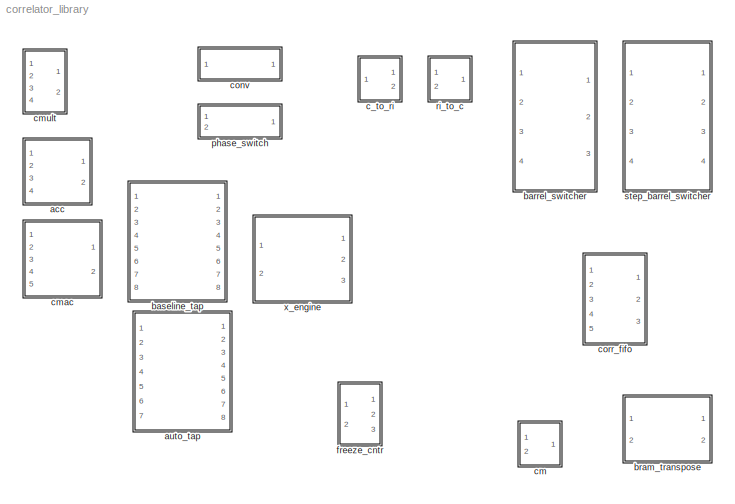
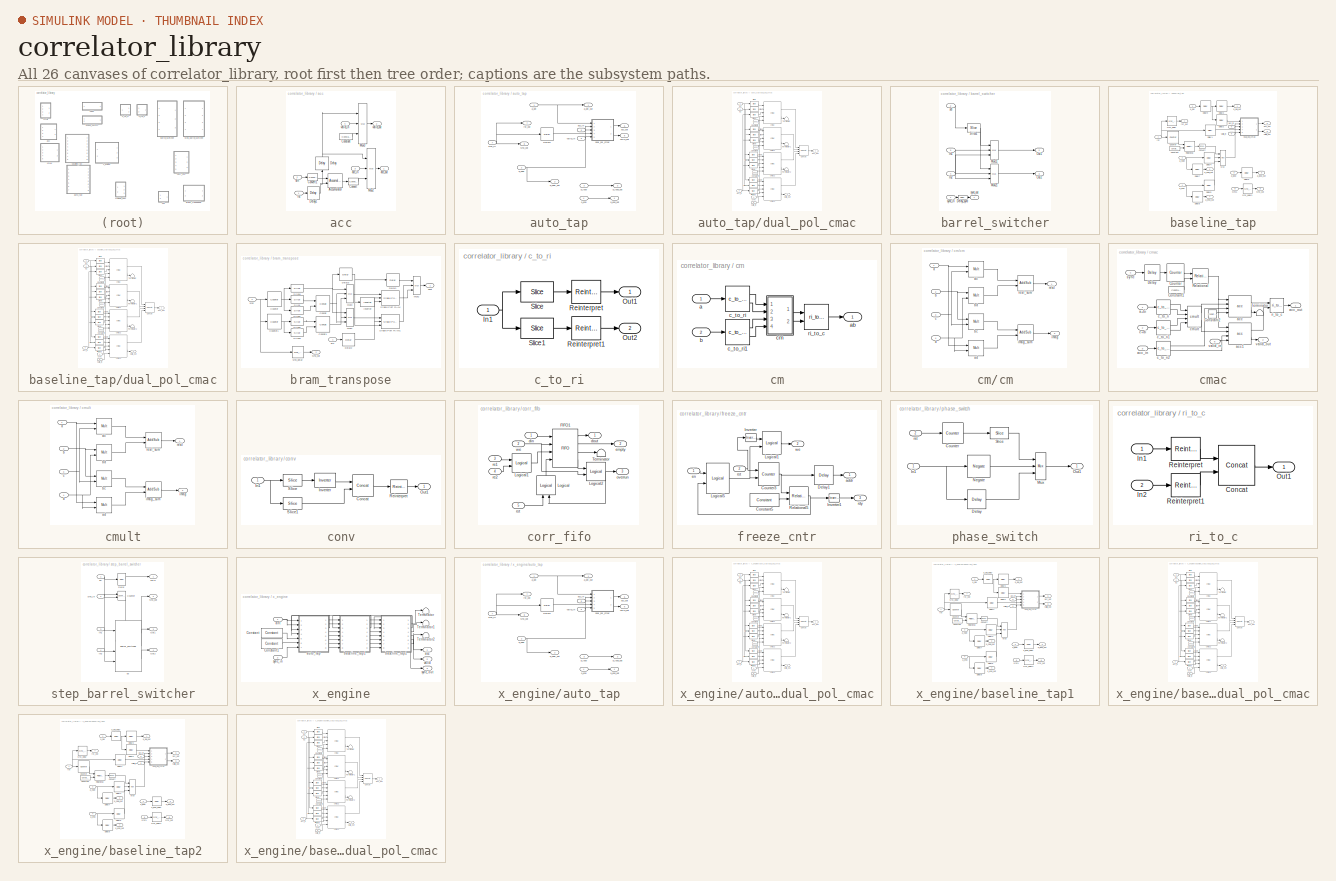
[diagram: thumbnail index - all 26 canvases of the model, root first then tree order]
MODEL correlator_library
KIND library
BLOCK [SubSystem] acc
  MaskCallbackString = |||
  MaskEnableString = on,on,on,on
  MaskIconFrame = on
  MaskIconOpaque = on
  MaskIconRotate = none
  MaskIconUnits = autoscale
  MaskInitialization = BitGrowth = ceil(log2(AccLen));
  MaskPromptString = Bit Width In|Binary Point In|Bit Width Out|Accumulation Length
  MaskSelfModifiable = on
  MaskStyleString = edit,edit,edit,edit
  MaskTabNameString = ,,,
  MaskToolTipString = on,on,on,on
  MaskTunableValueString = on,on,on,on
  MaskValueString = 18|17|18|5
  MaskVarAliasString = ,,,
  MaskVariables = BitWidthIn=@1;BinPntIn=@2;BitWidthOut=@3;AccLen=@4;
  MaskVisibilityString = on,on,on,on
  MinAlgLoopOccurrences = off
  Ports = [4, 2]
  RTWSystemCode = Auto
  TreatAsAtomicUnit = off
BLOCK [Reference] acc/Accumulator  REF=xbsIndex_r3/Accumulator
  Ports = [2, 1]
  SourceBlock = xbsIndex_r3/Accumulator
  SourceType = Xilinx Accumulator
  dbl_ovrd = off
  en = off
  explicit_period = on
  gen_core = off
  hasbypass = on
  n_bits = BitWidthIn + BitGrowth
  operation = Add
  overflow = Wrap
  period = 1
  rst = on
  scale = 1
  show_param = off
  use_rpm = on
  xl_area = [0, 0, 0, 0, 0, 0, 0]
  xl_use_area = off
BLOCK [Reference] acc/Constant  REF=xbsIndex_r3/Constant
  Ports = [0, 1]
  SourceBlock = xbsIndex_r3/Constant
  SourceType = Xilinx Constant Block
  arith_type = Unsigned
  bin_pt = 0
  carry = CIN
  const = 1
  dbl_ovrd = off
  equ = P=C
  explicit_period = on
  inp1 = P
  inp2 = PCIN>>17
  iostate = 0
  n_bits = 1
  opr = +
  opselect = C
  period = 1
BLOCK [Reference] acc/Convert  REF=xbsIndex_r3/Convert
  Ports = [1, 1]
  SourceBlock = xbsIndex_r3/Convert
  SourceType = Xilinx Converter Block
  arith_type = Signed  (2's comp)
  bin_pt = BitWidthOut - BitGrowth - (BitWidthIn - BinPntIn)
  dbl_ovrd = off
  explicit_period = on
  inserted_by_tool = off
  latency = 1
  n_bits = BitWidthOut
  overflow = Wrap
  period = 1
  pipeline = off
  quantization = Round  (unbiased: +/- Inf)
  show_param = on
  xl_area = [0, 0, 0, 0, 0, 0, 0]
  xl_use_area = off
BLOCK [Reference] acc/Convert1  REF=xbsIndex_r3/Convert
  Ports = [1, 1]
  SourceBlock = xbsIndex_r3/Convert
  SourceType = Xilinx Converter Block
  arith_type = Signed  (2's comp)
  bin_pt = BinPntIn
  dbl_ovrd = off
  explicit_period = off
  inserted_by_tool = off
  latency = 1
  n_bits = BitWidthIn + BitGrowth
  overflow = Wrap
  period = 1
  pipeline = off
  quantization = Round  (unbiased: +/- Inf)
  show_param = on
  xl_area = [0, 0, 0, 0, 0, 0, 0]
  xl_use_area = off
BLOCK [Reference] acc/Delay  REF=xbsIndex_r3/Delay
  Ports = [1, 1]
  SourceBlock = xbsIndex_r3/Delay
  SourceType = Xilinx Delay Block
  accept_only_valid = off
  dbl_ovrd = off
  en = off
  explicit_period = off
  init_zero = on
  latency = 1
  period = 1
  reg_retiming = off
  show_param = off
  xl_area = [0, 0, 0, 0, 0, 0, 0]
  xl_use_area = off
BLOCK [Reference] acc/Delay1  REF=xbsIndex_r3/Delay
  Ports = [1, 1]
  SourceBlock = xbsIndex_r3/Delay
  SourceType = Xilinx Delay Block
  accept_only_valid = off
  dbl_ovrd = off
  en = off
  explicit_period = off
  init_zero = on
  latency = 1
  period = 1
  reg_retiming = off
  show_param = off
  xl_area = [0, 0, 0, 0, 0, 0, 0]
  xl_use_area = off
BLOCK [Reference] acc/Mux2  REF=xbsIndex_r3/Mux
  Ports = [3, 1]
  SourceBlock = xbsIndex_r3/Mux
  SourceType = Xilinx Multiplexer Block
  arith_type = Signed  (2's comp)
  bin_pt = 0
  dbl_ovrd = off
  en = off
  explicit_period = on
  gen_core = off
  inputs = 2
  latency = 2
  mux_type = off
  n_bits = 0
  overflow = Wrap
  period = 1
  precision = Full
  quantization = Round  (unbiased: +/- Inf)
  show_param = off
  use_rpm = off
  xl_area = [0, 0, 0, 0, 0, 0, 0]
  xl_use_area = off
BLOCK [Reference] acc/Mux3  REF=xbsIndex_r3/Mux
  Ports = [3, 1]
  SourceBlock = xbsIndex_r3/Mux
  SourceType = Xilinx Multiplexer Block
  arith_type = Signed  (2's comp)
  bin_pt = 0
  dbl_ovrd = off
  en = off
  explicit_period = on
  gen_core = off
  inputs = 2
  latency = 2
  mux_type = off
  n_bits = 0
  overflow = Wrap
  period = 1
  precision = Full
  quantization = Truncate
  show_param = off
  use_rpm = off
  xl_area = [0, 0, 0, 0, 0, 0, 0]
  xl_use_area = off
BLOCK [Inport] acc/acc_in
  IconDisplay = Port number
  LatchInput = off
  Port = 3
BLOCK [Outport] acc/acc_out
  BusOutputAsStruct = off
  IconDisplay = Port number
BLOCK [Inport] acc/din
  IconDisplay = Port number
  LatchInput = off
  Port = 2
BLOCK [Inport] acc/rst
  IconDisplay = Port number
  LatchInput = off
  Port = 1
BLOCK [Inport] acc/valid_in
  IconDisplay = Port number
  LatchInput = off
  Port = 4
BLOCK [Outport] acc/valid_out
  BusOutputAsStruct = off
  IconDisplay = Port number
  Port = 2
BLOCK [SubSystem] auto_tap
  MaskCallbackString = |||||||
  MaskEnableString = on,on,on,on,on,on,on,on
  MaskIconFrame = on
  MaskIconOpaque = on
  MaskIconRotate = none
  MaskIconUnits = autoscale
  MaskInitialization = BitGrowth = ceil(log2(AccLen));\nAntBits = ceil(log2(AntNum));\nmyname = gcb;\nset_param(myname, 'LinkStatus', 'inactive');\nif use_mult_core\n	set_param([myname, '/dual_pol_cmac'], 'use_mult_core', 'on');\nelse\n	set_param([myname, '/dual_pol_cmac'], 'use_mult_core', 'off');\nend  <repeated x5 — deduplicated; at blocks: auto_tap, baseline_tap, baseline_tap1, baseline_tap2>
  MaskPromptString = Number of Antennas|Antenna Seperation|Bit Width In|Bit Width Out|Accumulation Length|Add Latency|Mult Latency|Use Dedicated Multipliers
  MaskSelfModifiable = on
  MaskStyleString = edit,edit,edit,edit,edit,edit,edit,checkbox
  MaskTabNameString = ,,,,,,,
  MaskToolTipString = on,on,on,on,on,on,on,on
  MaskTunableValueString = on,on,on,on,on,on,on,on
  MaskValueString = 8|1|18|18|32|2|3|off
  MaskVarAliasString = ,,,,,,,
  MaskVariables = AntNum=@1;AntSep=@2;BitWidthIn=@3;BitWidthOut=@4;AccLen=@5;AddLatency=@6;MultLatency=@7;use_mult_core=@8;
  MaskVisibilityString = on,on,on,on,on,on,on,on
  MinAlgLoopOccurrences = off
  Ports = [7, 8]
  RTWSystemCode = Auto
  TreatAsAtomicUnit = off
BLOCK [Reference] auto_tap/Delay6  REF=xbsIndex_r3/Delay
  Ports = [1, 1]
  SourceBlock = xbsIndex_r3/Delay
  SourceType = Xilinx Delay Block
  accept_only_valid = off
  dbl_ovrd = off
  en = off
  explicit_period = off
  init_zero = on
  latency = 1
  period = 1
  reg_retiming = off
  show_param = off
  xl_area = [0, 0, 0, 0, 0, 0, 0]
  xl_use_area = off
BLOCK [Inport] auto_tap/a_del
  IconDisplay = Port number
  LatchInput = off
  Port = 1
BLOCK [Outport] auto_tap/a_del_out
  BusOutputAsStruct = off
  IconDisplay = Port number
BLOCK [Inport] auto_tap/a_end
  IconDisplay = Port number
  LatchInput = off
  Port = 4
BLOCK [Outport] auto_tap/a_end_out
  BusOutputAsStruct = off
  IconDisplay = Port number
  Port = 4
BLOCK [Inport] auto_tap/a_loop
  IconDisplay = Port number
  LatchInput = off
  Port = 3
BLOCK [Outport] auto_tap/a_loop_out
  BusOutputAsStruct = off
  IconDisplay = Port number
  Port = 3
BLOCK [Inport] auto_tap/a_ndel
  IconDisplay = Port number
  LatchInput = off
  Port = 2
BLOCK [Outport] auto_tap/a_ndel_out
  BusOutputAsStruct = off
  IconDisplay = Port number
  Port = 2
BLOCK [Inport] auto_tap/acc_in
  IconDisplay = Port number
  LatchInput = off
  Port = 5
BLOCK [Outport] auto_tap/acc_out
  BusOutputAsStruct = off
  IconDisplay = Port number
  Port = 5
BLOCK [SubSystem] auto_tap/dual_pol_cmac
  MaskCallbackString = |||||
  MaskEnableString = on,on,on,on,on,on
  MaskIconFrame = on
  MaskIconOpaque = on
  MaskIconRotate = none
  MaskIconUnits = autoscale
  MaskInitialization = myname = gcb;\nfor i=1:4\n	if i == 1\n		thisblk = '/cmac';\n	elseif i == 2\n		thisblk = '/cmac1';\n	elseif i == 3\n		thisblk = '/cmac2';\n	elseif i == 4\n		thisblk = '/cmac3';\n	end\n	if use_mult_core\n		set_param([myname, thisblk], 'use_mult_core', 'on');\n	else\n		set_param([myname, thisblk], 'use_mult_core', 'off');\n	end\nend  <repeated x5 — deduplicated; at blocks: dual_pol_cmac>
  MaskPromptString = Bit Width of Sample In|Bit Width of Sample Out|Accumulation Length|Mult Latency|Add Latency|Use Dedicated Multipliers
  MaskSelfModifiable = on
  MaskStyleString = edit,edit,edit,edit,edit,checkbox
  MaskTabNameString = ,,,,,
  MaskToolTipString = on,on,on,on,on,on
  MaskTunableValueString = on,on,on,on,on,on
  MaskValueString = BitWidthIn|BitWidthOut|AccLen|MultLatency|AddLatency|off
  MaskVarAliasString = ,,,,,
  MaskVariables = BitWidthIn=@1;BitWidthOut=@2;AccLen=@3;MultLatency=@4;AddLatency=@5;use_mult_core=@6;
  MaskVisibilityString = on,on,on,on,on,on
  MinAlgLoopOccurrences = off
  Ports = [5, 2]
  RTWSystemCode = Auto
  TreatAsAtomicUnit = off
BLOCK [Reference] auto_tap/dual_pol_cmac/Concat  REF=xbsIndex_r3/Concat
  Ports = [4, 1]
  SourceBlock = xbsIndex_r3/Concat
  SourceType = Xilinx Bus Concatenator
  dbl_ovrd = off
  explicit_period = off
  num_inputs = 4
  period = 1
BLOCK [Reference] auto_tap/dual_pol_cmac/Constant1  REF=xbsIndex_r3/Constant
  Ports = [0, 1]
  SourceBlock = xbsIndex_r3/Constant
  SourceType = Xilinx Constant Block
  arith_type = Unsigned
  bin_pt = 0
  const = 0
  dbl_ovrd = off
  explicit_period = off
  n_bits = 1
  period = 1
BLOCK [Reference] auto_tap/dual_pol_cmac/Constant2  REF=xbsIndex_r3/Constant
  Ports = [0, 1]
  SourceBlock = xbsIndex_r3/Constant
  SourceType = Xilinx Constant Block
  arith_type = Unsigned
  bin_pt = 0
  const = 0
  dbl_ovrd = off
  explicit_period = off
  n_bits = 1
  period = 1
BLOCK [Reference] auto_tap/dual_pol_cmac/Constant4  REF=xbsIndex_r3/Constant
  Ports = [0, 1]
  SourceBlock = xbsIndex_r3/Constant
  SourceType = Xilinx Constant Block
  arith_type = Unsigned
  bin_pt = 0
  const = 0
  dbl_ovrd = off
  explicit_period = off
  n_bits = 1
  period = 1
BLOCK [Reference] auto_tap/dual_pol_cmac/Slice  REF=xbsIndex_r3/Slice
  Ports = [1, 1]
  SourceBlock = xbsIndex_r3/Slice
  SourceType = Xilinx Slice Block
  base0 = LSB of Input
  base1 = MSB of Input
  bit0 = 0
  bit1 = 0
  boolean_output = off
  dbl_ovrd = off
  explicit_period = off
  mode = Upper Bit Location + Width
  nbits = 2*BitWidthIn
  period = 1
BLOCK [Reference] auto_tap/dual_pol_cmac/Slice1  REF=xbsIndex_r3/Slice
  Ports = [1, 1]
  SourceBlock = xbsIndex_r3/Slice
  SourceType = Xilinx Slice Block
  base0 = LSB of Input
  base1 = MSB of Input
  bit0 = 0
  bit1 = 0
  boolean_output = off
  dbl_ovrd = off
  explicit_period = off
  mode = Upper Bit Location + Width
  nbits = 2*BitWidthIn
  period = 1
BLOCK [Reference] auto_tap/dual_pol_cmac/Slice10  REF=xbsIndex_r3/Slice
  Ports = [1, 1]
  SourceBlock = xbsIndex_r3/Slice
  SourceType = Xilinx Slice Block
  base0 = LSB of Input
  base1 = MSB of Input
  bit0 = 0
  bit1 = -2*BitWidthIn
  boolean_output = off
  dbl_ovrd = off
  explicit_period = off
  mode = Upper Bit Location + Width
  nbits = 2*BitWidthIn
  period = 1
BLOCK [Reference] auto_tap/dual_pol_cmac/Slice11  REF=xbsIndex_r3/Slice
  Ports = [1, 1]
  SourceBlock = xbsIndex_r3/Slice
  SourceType = Xilinx Slice Block
  base0 = LSB of Input
  base1 = MSB of Input
  bit0 = 0
  bit1 = -6*BitWidthOut
  boolean_output = off
  dbl_ovrd = off
  explicit_period = off
  mode = Upper Bit Location + Width
  nbits = 2*BitWidthOut
  period = 1
BLOCK [Reference] auto_tap/dual_pol_cmac/Slice2  REF=xbsIndex_r3/Slice
  Ports = [1, 1]
  SourceBlock = xbsIndex_r3/Slice
  SourceType = Xilinx Slice Block
  base0 = LSB of Input
  base1 = MSB of Input
  bit0 = 0
  bit1 = 0
  boolean_output = off
  dbl_ovrd = off
  explicit_period = off
  mode = Upper Bit Location + Width
  nbits = 2*BitWidthOut
  period = 1
BLOCK [Reference] auto_tap/dual_pol_cmac/Slice3  REF=xbsIndex_r3/Slice
  Ports = [1, 1]
  SourceBlock = xbsIndex_r3/Slice
  SourceType = Xilinx Slice Block
  base0 = LSB of Input
  base1 = MSB of Input
  bit0 = 0
  bit1 = -2*BitWidthIn
  boolean_output = off
  dbl_ovrd = off
  explicit_period = off
  mode = Upper Bit Location + Width
  nbits = 2*BitWidthIn
  period = 1
BLOCK [Reference] auto_tap/dual_pol_cmac/Slice4  REF=xbsIndex_r3/Slice
  Ports = [1, 1]
  SourceBlock = xbsIndex_r3/Slice
  SourceType = Xilinx Slice Block
  base0 = LSB of Input
  base1 = MSB of Input
  bit0 = 0
  bit1 = -2*BitWidthIn
  boolean_output = off
  dbl_ovrd = off
  explicit_period = off
  mode = Upper Bit Location + Width
  nbits = 2*BitWidthIn
  period = 1
BLOCK [Reference] auto_tap/dual_pol_cmac/Slice5  REF=xbsIndex_r3/Slice
  Ports = [1, 1]
  SourceBlock = xbsIndex_r3/Slice
  SourceType = Xilinx Slice Block
  base0 = LSB of Input
  base1 = MSB of Input
  bit0 = 0
  bit1 = -2*BitWidthOut
  boolean_output = off
  dbl_ovrd = off
  explicit_period = off
  mode = Upper Bit Location + Width
  nbits = 2*BitWidthOut
  period = 1
BLOCK [Reference] auto_tap/dual_pol_cmac/Slice6  REF=xbsIndex_r3/Slice
  Ports = [1, 1]
  SourceBlock = xbsIndex_r3/Slice
  SourceType = Xilinx Slice Block
  base0 = LSB of Input
  base1 = MSB of Input
  bit0 = 0
  bit1 = 0
  boolean_output = off
  dbl_ovrd = off
  explicit_period = off
  mode = Upper Bit Location + Width
  nbits = 2*BitWidthIn
  period = 1
BLOCK [Reference] auto_tap/dual_pol_cmac/Slice7  REF=xbsIndex_r3/Slice
  Ports = [1, 1]
  SourceBlock = xbsIndex_r3/Slice
  SourceType = Xilinx Slice Block
  base0 = LSB of Input
  base1 = MSB of Input
  bit0 = 0
  bit1 = -2*BitWidthIn
  boolean_output = off
  dbl_ovrd = off
  explicit_period = off
  mode = Upper Bit Location + Width
  nbits = 2*BitWidthIn
  period = 1
BLOCK [Reference] auto_tap/dual_pol_cmac/Slice8  REF=xbsIndex_r3/Slice
  Ports = [1, 1]
  SourceBlock = xbsIndex_r3/Slice
  SourceType = Xilinx Slice Block
  base0 = LSB of Input
  base1 = MSB of Input
  bit0 = 0
  bit1 = -4*BitWidthOut
  boolean_output = off
  dbl_ovrd = off
  explicit_period = off
  mode = Upper Bit Location + Width
  nbits = 2*BitWidthOut
  period = 1
BLOCK [Reference] auto_tap/dual_pol_cmac/Slice9  REF=xbsIndex_r3/Slice
  Ports = [1, 1]
  SourceBlock = xbsIndex_r3/Slice
  SourceType = Xilinx Slice Block
  base0 = LSB of Input
  base1 = MSB of Input
  bit0 = 0
  bit1 = 0
  boolean_output = off
  dbl_ovrd = off
  explicit_period = off
  mode = Upper Bit Location + Width
  nbits = 2*BitWidthIn
  period = 1
BLOCK [Terminator] auto_tap/dual_pol_cmac/Terminator
BLOCK [Terminator] auto_tap/dual_pol_cmac/Terminator1
BLOCK [Terminator] auto_tap/dual_pol_cmac/Terminator2
BLOCK [Inport] auto_tap/dual_pol_cmac/a1
  IconDisplay = Port number
  LatchInput = off
  Port = 1
BLOCK [Inport] auto_tap/dual_pol_cmac/a2
  IconDisplay = Port number
  LatchInput = off
  Port = 2
BLOCK [Inport] auto_tap/dual_pol_cmac/acc_in
  IconDisplay = Port number
  LatchInput = off
  Port = 3
BLOCK [Outport] auto_tap/dual_pol_cmac/acc_out
  BusOutputAsStruct = off
  IconDisplay = Port number
BLOCK [Reference] auto_tap/dual_pol_cmac/cmac  REF=correlator_library/cmac  (lib defined in mdl_61a1cd724cd8)
  AccLen = AccLen
  AddLatency = AddLatency
  BitWidthIn = BitWidthIn
  BitWidthOut = BitWidthOut
  MultLatency = MultLatency
  Ports = [5, 2]
  ShowPortLabels = on
  SourceBlock = correlator_library/cmac
  SourceType = Unknown
  use_conj = on
  use_mult_core = off
BLOCK [Reference] auto_tap/dual_pol_cmac/cmac1  REF=correlator_library/cmac  (lib defined in mdl_61a1cd724cd8)
  AccLen = AccLen
  AddLatency = AddLatency
  BitWidthIn = BitWidthIn
  BitWidthOut = BitWidthOut
  MultLatency = MultLatency
  Ports = [5, 2]
  ShowPortLabels = on
  SourceBlock = correlator_library/cmac
  SourceType = Unknown
  use_conj = on
  use_mult_core = off
BLOCK [Reference] auto_tap/dual_pol_cmac/cmac2  REF=correlator_library/cmac  (lib defined in mdl_61a1cd724cd8)
  AccLen = AccLen
  AddLatency = AddLatency
  BitWidthIn = BitWidthIn
  BitWidthOut = BitWidthOut
  MultLatency = MultLatency
  Ports = [5, 2]
  ShowPortLabels = on
  SourceBlock = correlator_library/cmac
  SourceType = Unknown
  use_conj = on
  use_mult_core = off
BLOCK [Reference] auto_tap/dual_pol_cmac/cmac3  REF=correlator_library/cmac  (lib defined in mdl_61a1cd724cd8)
  AccLen = AccLen
  AddLatency = AddLatency
  BitWidthIn = BitWidthIn
  BitWidthOut = BitWidthOut
  MultLatency = MultLatency
  Ports = [5, 2]
  ShowPortLabels = on
  SourceBlock = correlator_library/cmac
  SourceType = Unknown
  use_conj = on
  use_mult_core = off
BLOCK [Inport] auto_tap/dual_pol_cmac/sync
  IconDisplay = Port number
  LatchInput = off
  Port = 4
BLOCK [Inport] auto_tap/dual_pol_cmac/valid_in
  IconDisplay = Port number
  LatchInput = off
  Port = 5
BLOCK [Outport] auto_tap/dual_pol_cmac/valid_out
  BusOutputAsStruct = off
  IconDisplay = Port number
  Port = 2
BLOCK [Outport] auto_tap/rst_out
  BusOutputAsStruct = off
  IconDisplay = Port number
  Port = 7
BLOCK [Inport] auto_tap/sync_in
  IconDisplay = Port number
  LatchInput = off
  Port = 7
BLOCK [Outport] auto_tap/sync_out
  BusOutputAsStruct = off
  IconDisplay = Port number
  Port = 8
BLOCK [Inport] auto_tap/valid_in
  IconDisplay = Port number
  LatchInput = off
  Port = 6
BLOCK [Outport] auto_tap/valid_out
  BusOutputAsStruct = off
  IconDisplay = Port number
  Port = 6
BLOCK [SubSystem] barrel_switcher
  MaskEnableString = on
  MaskIconFrame = on
  MaskIconOpaque = on
  MaskIconRotate = none
  MaskIconUnits = autoscale
  MaskInitialization = barrel_switcher_mask;
  MaskPromptString = Number of Inputs:
  MaskSelfModifiable = on
  MaskStyleString = edit
  MaskToolTipString = on
  MaskTunableValueString = on
  MaskValueString = 1
  MaskVariables = n_inputs=@1;
  MaskVisibilityString = on
  MinAlgLoopOccurrences = off
  Ports = [4, 3]
  RTWSystemCode = Auto
  TreatAsAtomicUnit = off
BLOCK [Reference] barrel_switcher/Delay_sync  REF=xbsIndex_r3/Delay
  Ports = [1, 1]
  SourceBlock = xbsIndex_r3/Delay
  SourceType = Xilinx Delay Block
  accept_only_valid = off
  dbl_ovrd = off
  en = off
  explicit_period = off
  init_zero = on
  latency = 1
  period = 1
  reg_retiming = off
  show_param = off
  xl_area = [0, 0, 0, 0, 0, 0, 0]
  xl_use_area = off
BLOCK [Inport] barrel_switcher/In1
  IconDisplay = Port number
  LatchInput = off
  Port = 3
BLOCK [Inport] barrel_switcher/In2
  IconDisplay = Port number
  LatchInput = off
  Port = 4
BLOCK [Reference] barrel_switcher/Mux11  REF=xbsIndex_r3/Mux
  Ports = [3, 1]
  SourceBlock = xbsIndex_r3/Mux
  SourceType = Xilinx Multiplexer Block
  arith_type = Signed  (2's comp)
  bin_pt = 2
  dbl_ovrd = off
  en = off
  explicit_period = off
  gen_core = off
  inputs = 2
  latency = 1
  mux_type = off
  n_bits = 8
  overflow = Wrap
  period = 1
  precision = Full
  quantization = Truncate
  show_param = off
  use_rpm = off
  xl_area = [0, 0, 0, 0, 0, 0, 0]
  xl_use_area = off
BLOCK [Reference] barrel_switcher/Mux21  REF=xbsIndex_r3/Mux
  Ports = [3, 1]
  SourceBlock = xbsIndex_r3/Mux
  SourceType = Xilinx Multiplexer Block
  arith_type = Signed  (2's comp)
  bin_pt = 2
  dbl_ovrd = off
  en = off
  explicit_period = off
  gen_core = off
  inputs = 2
  latency = 1
  mux_type = off
  n_bits = 8
  overflow = Wrap
  period = 1
  precision = Full
  quantization = Truncate
  show_param = off
  use_rpm = off
  xl_area = [0, 0, 0, 0, 0, 0, 0]
  xl_use_area = off
BLOCK [Outport] barrel_switcher/Out1
  BusOutputAsStruct = off
  IconDisplay = Port number
  Port = 2
BLOCK [Outport] barrel_switcher/Out2
  BusOutputAsStruct = off
  IconDisplay = Port number
  Port = 3
BLOCK [Reference] barrel_switcher/Slice1  REF=xbsIndex_r3/Slice
  Ports = [1, 1]
  SourceBlock = xbsIndex_r3/Slice
  SourceType = Xilinx Slice Block
  base0 = LSB of Input
  base1 = MSB of Input
  bit0 = 0
  bit1 = -0
  boolean_output = off
  dbl_ovrd = off
  explicit_period = off
  mode = Upper Bit Location + Width
  nbits = 1
  period = 1
BLOCK [Inport] barrel_switcher/sel
  IconDisplay = Port number
  LatchInput = off
  Port = 2
BLOCK [Inport] barrel_switcher/sync_in
  IconDisplay = Port number
  LatchInput = off
  Port = 1
BLOCK [Outport] barrel_switcher/sync_out
  BusOutputAsStruct = off
  IconDisplay = Port number
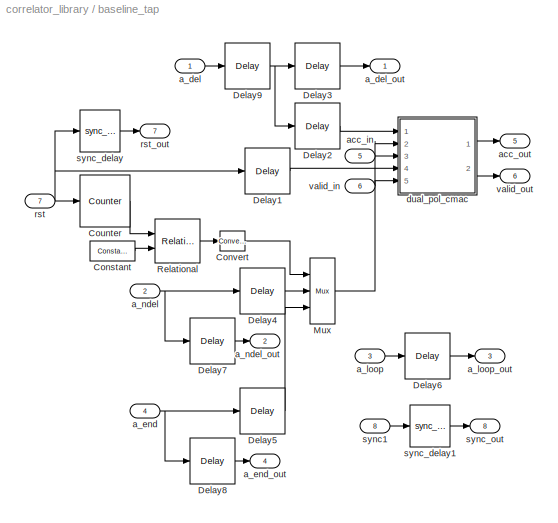
BLOCK [SubSystem] baseline_tap
  MaskCallbackString = |||||||
  MaskEnableString = on,on,on,on,on,on,on,on
  MaskIconFrame = on
  MaskIconOpaque = on
  MaskIconRotate = none
  MaskIconUnits = autoscale
  MaskPromptString = Number of Antennas|Antenna Seperation|Bit Width In|Bit Width Out|Accumulation Length|Add Latency|Mult Latency|Use Dedicated Multipliers
  MaskSelfModifiable = on
  MaskStyleString = edit,edit,edit,edit,edit,edit,edit,checkbox
  MaskTabNameString = ,,,,,,,
  MaskToolTipString = on,on,on,on,on,on,on,on
  MaskTunableValueString = on,on,on,on,on,on,on,on
  MaskValueString = 8|1|18|18|32|2|3|off
  MaskVarAliasString = ,,,,,,,
  MaskVariables = AntNum=@1;AntSep=@2;BitWidthIn=@3;BitWidthOut=@4;AccLen=@5;AddLatency=@6;MultLatency=@7;use_mult_core=@8;
  MaskVisibilityString = on,on,on,on,on,on,on,on
  MinAlgLoopOccurrences = off
  Ports = [8, 8]
  RTWSystemCode = Auto
  TreatAsAtomicUnit = off
BLOCK [Reference] baseline_tap/Constant  REF=xbsIndex_r3/Constant
  Ports = [0, 1]
  SourceBlock = xbsIndex_r3/Constant
  SourceType = Xilinx Constant Block
  arith_type = Unsigned
  bin_pt = 0
  carry = CIN
  const = (AntNum - AntSep) * AccLen
  dbl_ovrd = off
  equ = P=C
  explicit_period = off
  inp1 = P
  inp2 = PCIN>>17
  iostate = 0
  n_bits = AntBits + BitGrowth
  opr = +
  opselect = C
  period = 1
BLOCK [Reference] baseline_tap/Convert  REF=xbsIndex_r3/Convert
  Ports = [1, 1]
  SourceBlock = xbsIndex_r3/Convert
  SourceType = Xilinx Converter Block
  arith_type = Unsigned
  bin_pt = 0
  dbl_ovrd = off
  explicit_period = off
  inserted_by_tool = off
  latency = 0
  n_bits = 1
  overflow = Wrap
  period = 1
  pipeline = off
  quantization = Truncate
  show_param = off
  xl_area = [0, 0, 0, 0, 0, 0, 0]
  xl_use_area = off
BLOCK [Reference] baseline_tap/Counter  REF=xbsIndex_r3/Counter
  Ports = [1, 1]
  SourceBlock = xbsIndex_r3/Counter
  SourceType = Xilinx Counter Block
  arith_type = Unsigned
  bin_pt = 0
  cnt_by_val = 1
  cnt_to = AntNum * AccLen - 1
  cnt_type = Count Limited
  dbl_ovrd = off
  en = off
  explicit_period = off
  gen_core = off
  load_pin = off
  n_bits = AntBits + BitGrowth
  operation = Up
  period = 1
  rst = on
  show_param = off
  start_count = 0
  use_rpm = on
  xl_area = [0, 0, 0, 0, 0, 0, 0]
  xl_use_area = off
BLOCK [Reference] baseline_tap/Delay1  REF=xbsIndex_r3/Delay
  Ports = [1, 1]
  SourceBlock = xbsIndex_r3/Delay
  SourceType = Xilinx Delay Block
  accept_only_valid = off
  dbl_ovrd = off
  en = off
  explicit_period = off
  init_zero = on
  latency = 2
  period = 1
  reg_retiming = off
  show_param = off
  xl_area = [0, 0, 0, 0, 0, 0, 0]
  xl_use_area = off
BLOCK [Reference] baseline_tap/Delay2  REF=xbsIndex_r3/Delay
  Ports = [1, 1]
  SourceBlock = xbsIndex_r3/Delay
  SourceType = Xilinx Delay Block
  accept_only_valid = off
  dbl_ovrd = off
  en = off
  explicit_period = off
  init_zero = on
  latency = 2
  period = 1
  reg_retiming = off
  show_param = off
  xl_area = [0, 0, 0, 0, 0, 0, 0]
  xl_use_area = off
BLOCK [Reference] baseline_tap/Delay3  REF=xbsIndex_r3/Delay
  Ports = [1, 1]
  SourceBlock = xbsIndex_r3/Delay
  SourceType = Xilinx Delay Block
  accept_only_valid = off
  dbl_ovrd = off
  en = off
  explicit_period = off
  init_zero = on
  latency = 1
  period = 1
  reg_retiming = off
  show_param = off
  xl_area = [0, 0, 0, 0, 0, 0, 0]
  xl_use_area = off
BLOCK [Reference] baseline_tap/Delay4  REF=xbsIndex_r3/Delay
  Ports = [1, 1]
  SourceBlock = xbsIndex_r3/Delay
  SourceType = Xilinx Delay Block
  accept_only_valid = off
  dbl_ovrd = off
  en = off
  explicit_period = on
  init_zero = on
  latency = 1
  period = 1
  reg_retiming = off
  show_param = off
  xl_area = [0, 0, 0, 0, 0, 0, 0]
  xl_use_area = off
BLOCK [Reference] baseline_tap/Delay5  REF=xbsIndex_r3/Delay
  Ports = [1, 1]
  SourceBlock = xbsIndex_r3/Delay
  SourceType = Xilinx Delay Block
  accept_only_valid = off
  dbl_ovrd = off
  en = off
  explicit_period = on
  init_zero = on
  latency = 1
  period = 1
  reg_retiming = off
  show_param = off
  xl_area = [0, 0, 0, 0, 0, 0, 0]
  xl_use_area = off
BLOCK [Reference] baseline_tap/Delay6  REF=xbsIndex_r3/Delay
  Ports = [1, 1]
  SourceBlock = xbsIndex_r3/Delay
  SourceType = Xilinx Delay Block
  accept_only_valid = off
  dbl_ovrd = off
  en = off
  explicit_period = off
  init_zero = on
  latency = 2 * AccLen
  period = 1
  reg_retiming = off
  show_param = off
  xl_area = [0, 0, 0, 0, 0, 0, 0]
  xl_use_area = off
BLOCK [Reference] baseline_tap/Delay7  REF=xbsIndex_r3/Delay
  Ports = [1, 1]
  SourceBlock = xbsIndex_r3/Delay
  SourceType = Xilinx Delay Block
  accept_only_valid = off
  dbl_ovrd = off
  en = off
  explicit_period = on
  init_zero = on
  latency = 1
  period = 1
  reg_retiming = off
  show_param = off
  xl_area = [0, 0, 0, 0, 0, 0, 0]
  xl_use_area = off
BLOCK [Reference] baseline_tap/Delay8  REF=xbsIndex_r3/Delay
  Ports = [1, 1]
  SourceBlock = xbsIndex_r3/Delay
  SourceType = Xilinx Delay Block
  accept_only_valid = off
  dbl_ovrd = off
  en = off
  explicit_period = on
  init_zero = on
  latency = 1
  period = 1
  reg_retiming = off
  show_param = off
  xl_area = [0, 0, 0, 0, 0, 0, 0]
  xl_use_area = off
BLOCK [Reference] baseline_tap/Delay9  REF=xbsIndex_r3/Delay
  Ports = [1, 1]
  SourceBlock = xbsIndex_r3/Delay
  SourceType = Xilinx Delay Block
  accept_only_valid = off
  dbl_ovrd = off
  en = off
  explicit_period = off
  init_zero = on
  latency = 2 * AccLen
  period = 1
  reg_retiming = off
  show_param = off
  xl_area = [0, 0, 0, 0, 0, 0, 0]
  xl_use_area = off
BLOCK [Reference] baseline_tap/Mux  REF=xbsIndex_r3/Mux
  Ports = [3, 1]
  SourceBlock = xbsIndex_r3/Mux
  SourceType = Xilinx Multiplexer Block
  arith_type = Signed  (2's comp)
  bin_pt = 2
  dbl_ovrd = off
  en = off
  explicit_period = off
  gen_core = off
  inputs = 2
  latency = 1
  mux_type = off
  n_bits = 8
  overflow = Wrap
  period = 1
  precision = Full
  quantization = Truncate
  show_param = off
  use_rpm = off
  xl_area = [0, 0, 0, 0, 0, 0, 0]
  xl_use_area = off
BLOCK [Reference] baseline_tap/Relational  REF=xbsIndex_r3/Relational
  Ports = [2, 1]
  SourceBlock = xbsIndex_r3/Relational
  SourceType = Xilinx Relational Block
  dbl_ovrd = off
  en = off
  explicit_period = off
  latency = 1
  mode = a>=b
  period = 1
  show_param = off
  xl_area = [0, 0, 0, 0, 0, 0, 0]
  xl_use_area = off
BLOCK [Inport] baseline_tap/a_del
  IconDisplay = Port number
  LatchInput = off
  Port = 1
BLOCK [Outport] baseline_tap/a_del_out
  BusOutputAsStruct = off
  IconDisplay = Port number
BLOCK [Inport] baseline_tap/a_end
  IconDisplay = Port number
  LatchInput = off
  Port = 4
BLOCK [Outport] baseline_tap/a_end_out
  BusOutputAsStruct = off
  IconDisplay = Port number
  Port = 4
BLOCK [Inport] baseline_tap/a_loop
  IconDisplay = Port number
  LatchInput = off
  Port = 3
BLOCK [Outport] baseline_tap/a_loop_out
  BusOutputAsStruct = off
  IconDisplay = Port number
  Port = 3
BLOCK [Inport] baseline_tap/a_ndel
  IconDisplay = Port number
  LatchInput = off
  Port = 2
BLOCK [Outport] baseline_tap/a_ndel_out
  BusOutputAsStruct = off
  IconDisplay = Port number
  Port = 2
BLOCK [Inport] baseline_tap/acc_in
  IconDisplay = Port number
  LatchInput = off
  Port = 5
BLOCK [Outport] baseline_tap/acc_out
  BusOutputAsStruct = off
  IconDisplay = Port number
  Port = 5
BLOCK [SubSystem] baseline_tap/dual_pol_cmac
  MaskCallbackString = |||||
  MaskEnableString = on,on,on,on,on,on
  MaskIconFrame = on
  MaskIconOpaque = on
  MaskIconRotate = none
  MaskIconUnits = autoscale
  MaskPromptString = Bit Width of Sample In|Bit Width of Sample Out|Accumulation Length|Mult Latency|Add Latency|Use Dedicated Multipliers
  MaskSelfModifiable = on
  MaskStyleString = edit,edit,edit,edit,edit,checkbox
  MaskTabNameString = ,,,,,
  MaskToolTipString = on,on,on,on,on,on
  MaskTunableValueString = on,on,on,on,on,on
  MaskValueString = BitWidthIn|BitWidthOut|AccLen|MultLatency|AddLatency|off
  MaskVarAliasString = ,,,,,
  MaskVariables = BitWidthIn=@1;BitWidthOut=@2;AccLen=@3;MultLatency=@4;AddLatency=@5;use_mult_core=@6;
  MaskVisibilityString = on,on,on,on,on,on
  MinAlgLoopOccurrences = off
  Ports = [5, 2]
  RTWSystemCode = Auto
  TreatAsAtomicUnit = off
BLOCK [Reference] baseline_tap/dual_pol_cmac/Concat  REF=xbsIndex_r3/Concat
  Ports = [4, 1]
  SourceBlock = xbsIndex_r3/Concat
  SourceType = Xilinx Bus Concatenator
  dbl_ovrd = off
  explicit_period = off
  num_inputs = 4
  period = 1
BLOCK [Reference] baseline_tap/dual_pol_cmac/Constant1  REF=xbsIndex_r3/Constant
  Ports = [0, 1]
  SourceBlock = xbsIndex_r3/Constant
  SourceType = Xilinx Constant Block
  arith_type = Unsigned
  bin_pt = 0
  const = 0
  dbl_ovrd = off
  explicit_period = off
  n_bits = 1
  period = 1
BLOCK [Reference] baseline_tap/dual_pol_cmac/Constant2  REF=xbsIndex_r3/Constant
  Ports = [0, 1]
  SourceBlock = xbsIndex_r3/Constant
  SourceType = Xilinx Constant Block
  arith_type = Unsigned
  bin_pt = 0
  const = 0
  dbl_ovrd = off
  explicit_period = off
  n_bits = 1
  period = 1
BLOCK [Reference] baseline_tap/dual_pol_cmac/Constant4  REF=xbsIndex_r3/Constant
  Ports = [0, 1]
  SourceBlock = xbsIndex_r3/Constant
  SourceType = Xilinx Constant Block
  arith_type = Unsigned
  bin_pt = 0
  const = 0
  dbl_ovrd = off
  explicit_period = off
  n_bits = 1
  period = 1
BLOCK [Reference] baseline_tap/dual_pol_cmac/Slice  REF=xbsIndex_r3/Slice
  Ports = [1, 1]
  SourceBlock = xbsIndex_r3/Slice
  SourceType = Xilinx Slice Block
  base0 = LSB of Input
  base1 = MSB of Input
  bit0 = 0
  bit1 = 0
  boolean_output = off
  dbl_ovrd = off
  explicit_period = off
  mode = Upper Bit Location + Width
  nbits = 2*BitWidthIn
  period = 1
BLOCK [Reference] baseline_tap/dual_pol_cmac/Slice1  REF=xbsIndex_r3/Slice
  Ports = [1, 1]
  SourceBlock = xbsIndex_r3/Slice
  SourceType = Xilinx Slice Block
  base0 = LSB of Input
  base1 = MSB of Input
  bit0 = 0
  bit1 = 0
  boolean_output = off
  dbl_ovrd = off
  explicit_period = off
  mode = Upper Bit Location + Width
  nbits = 2*BitWidthIn
  period = 1
BLOCK [Reference] baseline_tap/dual_pol_cmac/Slice10  REF=xbsIndex_r3/Slice
  Ports = [1, 1]
  SourceBlock = xbsIndex_r3/Slice
  SourceType = Xilinx Slice Block
  base0 = LSB of Input
  base1 = MSB of Input
  bit0 = 0
  bit1 = -2*BitWidthIn
  boolean_output = off
  dbl_ovrd = off
  explicit_period = off
  mode = Upper Bit Location + Width
  nbits = 2*BitWidthIn
  period = 1
BLOCK [Reference] baseline_tap/dual_pol_cmac/Slice11  REF=xbsIndex_r3/Slice
  Ports = [1, 1]
  SourceBlock = xbsIndex_r3/Slice
  SourceType = Xilinx Slice Block
  base0 = LSB of Input
  base1 = MSB of Input
  bit0 = 0
  bit1 = -6*BitWidthOut
  boolean_output = off
  dbl_ovrd = off
  explicit_period = off
  mode = Upper Bit Location + Width
  nbits = 2*BitWidthOut
  period = 1
BLOCK [Reference] baseline_tap/dual_pol_cmac/Slice2  REF=xbsIndex_r3/Slice
  Ports = [1, 1]
  SourceBlock = xbsIndex_r3/Slice
  SourceType = Xilinx Slice Block
  base0 = LSB of Input
  base1 = MSB of Input
  bit0 = 0
  bit1 = 0
  boolean_output = off
  dbl_ovrd = off
  explicit_period = off
  mode = Upper Bit Location + Width
  nbits = 2*BitWidthOut
  period = 1
BLOCK [Reference] baseline_tap/dual_pol_cmac/Slice3  REF=xbsIndex_r3/Slice
  Ports = [1, 1]
  SourceBlock = xbsIndex_r3/Slice
  SourceType = Xilinx Slice Block
  base0 = LSB of Input
  base1 = MSB of Input
  bit0 = 0
  bit1 = -2*BitWidthIn
  boolean_output = off
  dbl_ovrd = off
  explicit_period = off
  mode = Upper Bit Location + Width
  nbits = 2*BitWidthIn
  period = 1
BLOCK [Reference] baseline_tap/dual_pol_cmac/Slice4  REF=xbsIndex_r3/Slice
  Ports = [1, 1]
  SourceBlock = xbsIndex_r3/Slice
  SourceType = Xilinx Slice Block
  base0 = LSB of Input
  base1 = MSB of Input
  bit0 = 0
  bit1 = -2*BitWidthIn
  boolean_output = off
  dbl_ovrd = off
  explicit_period = off
  mode = Upper Bit Location + Width
  nbits = 2*BitWidthIn
  period = 1
BLOCK [Reference] baseline_tap/dual_pol_cmac/Slice5  REF=xbsIndex_r3/Slice
  Ports = [1, 1]
  SourceBlock = xbsIndex_r3/Slice
  SourceType = Xilinx Slice Block
  base0 = LSB of Input
  base1 = MSB of Input
  bit0 = 0
  bit1 = -2*BitWidthOut
  boolean_output = off
  dbl_ovrd = off
  explicit_period = off
  mode = Upper Bit Location + Width
  nbits = 2*BitWidthOut
  period = 1
BLOCK [Reference] baseline_tap/dual_pol_cmac/Slice6  REF=xbsIndex_r3/Slice
  Ports = [1, 1]
  SourceBlock = xbsIndex_r3/Slice
  SourceType = Xilinx Slice Block
  base0 = LSB of Input
  base1 = MSB of Input
  bit0 = 0
  bit1 = 0
  boolean_output = off
  dbl_ovrd = off
  explicit_period = off
  mode = Upper Bit Location + Width
  nbits = 2*BitWidthIn
  period = 1
BLOCK [Reference] baseline_tap/dual_pol_cmac/Slice7  REF=xbsIndex_r3/Slice
  Ports = [1, 1]
  SourceBlock = xbsIndex_r3/Slice
  SourceType = Xilinx Slice Block
  base0 = LSB of Input
  base1 = MSB of Input
  bit0 = 0
  bit1 = -2*BitWidthIn
  boolean_output = off
  dbl_ovrd = off
  explicit_period = off
  mode = Upper Bit Location + Width
  nbits = 2*BitWidthIn
  period = 1
BLOCK [Reference] baseline_tap/dual_pol_cmac/Slice8  REF=xbsIndex_r3/Slice
  Ports = [1, 1]
  SourceBlock = xbsIndex_r3/Slice
  SourceType = Xilinx Slice Block
  base0 = LSB of Input
  base1 = MSB of Input
  bit0 = 0
  bit1 = -4*BitWidthOut
  boolean_output = off
  dbl_ovrd = off
  explicit_period = off
  mode = Upper Bit Location + Width
  nbits = 2*BitWidthOut
  period = 1
BLOCK [Reference] baseline_tap/dual_pol_cmac/Slice9  REF=xbsIndex_r3/Slice
  Ports = [1, 1]
  SourceBlock = xbsIndex_r3/Slice
  SourceType = Xilinx Slice Block
  base0 = LSB of Input
  base1 = MSB of Input
  bit0 = 0
  bit1 = 0
  boolean_output = off
  dbl_ovrd = off
  explicit_period = off
  mode = Upper Bit Location + Width
  nbits = 2*BitWidthIn
  period = 1
BLOCK [Terminator] baseline_tap/dual_pol_cmac/Terminator
BLOCK [Terminator] baseline_tap/dual_pol_cmac/Terminator1
BLOCK [Terminator] baseline_tap/dual_pol_cmac/Terminator2
BLOCK [Inport] baseline_tap/dual_pol_cmac/a1
  IconDisplay = Port number
  LatchInput = off
  Port = 1
BLOCK [Inport] baseline_tap/dual_pol_cmac/a2
  IconDisplay = Port number
  LatchInput = off
  Port = 2
BLOCK [Inport] baseline_tap/dual_pol_cmac/acc_in
  IconDisplay = Port number
  LatchInput = off
  Port = 3
BLOCK [Outport] baseline_tap/dual_pol_cmac/acc_out
  BusOutputAsStruct = off
  IconDisplay = Port number
BLOCK [Reference] baseline_tap/dual_pol_cmac/cmac  REF=correlator_library/cmac  (lib defined in mdl_61a1cd724cd8)
  AccLen = AccLen
  AddLatency = AddLatency
  BitWidthIn = BitWidthIn
  BitWidthOut = BitWidthOut
  MultLatency = MultLatency
  Ports = [5, 2]
  ShowPortLabels = on
  SourceBlock = correlator_library/cmac
  SourceType = Unknown
  use_conj = on
  use_mult_core = off
BLOCK [Reference] baseline_tap/dual_pol_cmac/cmac1  REF=correlator_library/cmac  (lib defined in mdl_61a1cd724cd8)
  AccLen = AccLen
  AddLatency = AddLatency
  BitWidthIn = BitWidthIn
  BitWidthOut = BitWidthOut
  MultLatency = MultLatency
  Ports = [5, 2]
  ShowPortLabels = on
  SourceBlock = correlator_library/cmac
  SourceType = Unknown
  use_conj = on
  use_mult_core = off
BLOCK [Reference] baseline_tap/dual_pol_cmac/cmac2  REF=correlator_library/cmac  (lib defined in mdl_61a1cd724cd8)
  AccLen = AccLen
  AddLatency = AddLatency
  BitWidthIn = BitWidthIn
  BitWidthOut = BitWidthOut
  MultLatency = MultLatency
  Ports = [5, 2]
  ShowPortLabels = on
  SourceBlock = correlator_library/cmac
  SourceType = Unknown
  use_conj = on
  use_mult_core = off
BLOCK [Reference] baseline_tap/dual_pol_cmac/cmac3  REF=correlator_library/cmac  (lib defined in mdl_61a1cd724cd8)
  AccLen = AccLen
  AddLatency = AddLatency
  BitWidthIn = BitWidthIn
  BitWidthOut = BitWidthOut
  MultLatency = MultLatency
  Ports = [5, 2]
  ShowPortLabels = on
  SourceBlock = correlator_library/cmac
  SourceType = Unknown
  use_conj = on
  use_mult_core = off
BLOCK [Inport] baseline_tap/dual_pol_cmac/sync
  IconDisplay = Port number
  LatchInput = off
  Port = 4
BLOCK [Inport] baseline_tap/dual_pol_cmac/valid_in
  IconDisplay = Port number
  LatchInput = off
  Port = 5
BLOCK [Outport] baseline_tap/dual_pol_cmac/valid_out
  BusOutputAsStruct = off
  IconDisplay = Port number
  Port = 2
BLOCK [Inport] baseline_tap/rst
  IconDisplay = Port number
  LatchInput = off
  Port = 7
BLOCK [Outport] baseline_tap/rst_out
  BusOutputAsStruct = off
  IconDisplay = Port number
  Port = 7
BLOCK [Inport] baseline_tap/sync1
  IconDisplay = Port number
  LatchInput = off
  Port = 8
BLOCK [Reference] baseline_tap/sync_delay  REF=fft_library/sync_delay  (lib defined in mdl_1e4ee9a0e578, mdl_700654ea79ba)
  DelayLen = AccLen + 1
  Ports = [1, 1]
  ShowPortLabels = on
  SourceBlock = fft_library/sync_delay
  SourceType = Unknown
BLOCK [Reference] baseline_tap/sync_delay1  REF=fft_library/sync_delay  (lib defined in mdl_1e4ee9a0e578, mdl_700654ea79ba)
  DelayLen = 2 * AccLen
  Ports = [1, 1]
  ShowPortLabels = on
  SourceBlock = fft_library/sync_delay
  SourceType = Unknown
BLOCK [Outport] baseline_tap/sync_out
  BusOutputAsStruct = off
  IconDisplay = Port number
  Port = 8
BLOCK [Inport] baseline_tap/valid_in
  IconDisplay = Port number
  LatchInput = off
  Port = 6
BLOCK [Outport] baseline_tap/valid_out
  BusOutputAsStruct = off
  IconDisplay = Port number
  Port = 6
BLOCK [SubSystem] bram_transpose
  MaskCallbackString = ||
  MaskEnableString = on,on,on
  MaskIconFrame = on
  MaskIconOpaque = on
  MaskIconRotate = none
  MaskIconUnits = autoscale
  MaskPromptString = Rows of Matrix (data written in): (2^?)|Cols of Matrix (data read out): (2^?)|Starting Read-out Phase (Col Number):
  MaskStyleString = edit,edit,edit
  MaskTabNameString = ,,
  MaskToolTipString = on,on,on
  MaskTunableValueString = on,on,on
  MaskValueString = 6|2|0
  MaskVarAliasString = ,,
  MaskVariables = Rows=@1;Cols=@2;StartCol=@3;
  MaskVisibilityString = on,on,on
  MinAlgLoopOccurrences = off
  Ports = [2, 2]
  RTWSystemCode = Auto
  TreatAsAtomicUnit = off
BLOCK [Reference] bram_transpose/Concat  REF=xbsIndex_r3/Concat
  Ports = [2, 1]
  SourceBlock = xbsIndex_r3/Concat
  SourceType = Xilinx Bus Concatenator
  dbl_ovrd = off
  explicit_period = off
  num_inputs = 2
  period = 1
BLOCK [Reference] bram_transpose/Concat1  REF=xbsIndex_r3/Concat
  Ports = [2, 1]
  SourceBlock = xbsIndex_r3/Concat
  SourceType = Xilinx Bus Concatenator
  dbl_ovrd = off
  explicit_period = off
  num_inputs = 2
  period = 1
BLOCK [Reference] bram_transpose/Counter  REF=xbsIndex_r3/Counter
  Ports = [1, 1]
  SourceBlock = xbsIndex_r3/Counter
  SourceType = Xilinx Counter Block
  arith_type = Unsigned
  bin_pt = 0
  cnt_by_val = 1
  cnt_to = Inf
  cnt_type = Free Running
  dbl_ovrd = off
  en = off
  explicit_period = on
  gen_core = off
  load_pin = off
  n_bits = Rows + Cols + 1
  operation = Up
  period = 1
  rst = on
  show_param = off
  start_count = 0
  use_rpm = on
  xl_area = [0, 0, 0, 0, 0, 0, 0]
  xl_use_area = off
BLOCK [Reference] bram_transpose/Counter1  REF=xbsIndex_r3/Counter
  Ports = [1, 1]
  SourceBlock = xbsIndex_r3/Counter
  SourceType = Xilinx Counter Block
  arith_type = Unsigned
  bin_pt = 0
  cnt_by_val = 1
  cnt_to = Inf
  cnt_type = Free Running
  dbl_ovrd = off
  en = off
  explicit_period = on
  gen_core = off
  load_pin = off
  n_bits = Rows + Cols + 1
  operation = Up
  period = 1
  rst = on
  show_param = on
  start_count = StartCol
  use_rpm = on
  xl_area = [0, 0, 0, 0, 0, 0, 0]
  xl_use_area = off
BLOCK [Reference] bram_transpose/Delay1  REF=xbsIndex_r3/Delay
  Ports = [1, 1]
  SourceBlock = xbsIndex_r3/Delay
  SourceType = Xilinx Delay Block
  accept_only_valid = off
  dbl_ovrd = off
  en = off
  explicit_period = off
  init_zero = on
  latency = 3
  period = 1
  reg_retiming = off
  show_param = off
  xl_area = [0, 0, 0, 0, 0, 0, 0]
  xl_use_area = off
BLOCK [Reference] bram_transpose/Delay2  REF=xbsIndex_r3/Delay
  Ports = [1, 1]
  SourceBlock = xbsIndex_r3/Delay
  SourceType = Xilinx Delay Block
  accept_only_valid = off
  dbl_ovrd = off
  en = off
  explicit_period = off
  init_zero = on
  latency = 1
  period = 1
  reg_retiming = off
  show_param = off
  xl_area = [0, 0, 0, 0, 0, 0, 0]
  xl_use_area = off
BLOCK [Reference] bram_transpose/Delay3  REF=xbsIndex_r3/Delay
  Ports = [1, 1]
  SourceBlock = xbsIndex_r3/Delay
  SourceType = Xilinx Delay Block
  accept_only_valid = off
  dbl_ovrd = off
  en = off
  explicit_period = off
  init_zero = on
  latency = 1
  period = 1
  reg_retiming = off
  show_param = off
  xl_area = [0, 0, 0, 0, 0, 0, 0]
  xl_use_area = off
BLOCK [Reference] bram_transpose/Inverter  REF=xbsIndex_r3/Inverter
  Ports = [1, 1]
  SourceBlock = xbsIndex_r3/Inverter
  SourceType = Xilinx Inverter
  dbl_ovrd = off
  en = off
  explicit_period = off
  latency = 0
  period = 1
  show_param = off
  xl_area = [0, 0, 0, 0, 0, 0, 0]
  xl_use_area = off
BLOCK [Reference] bram_transpose/Mux1  REF=xbsIndex_r3/Mux
  Ports = [3, 1]
  SourceBlock = xbsIndex_r3/Mux
  SourceType = Xilinx Multiplexer Block
  arith_type = Signed  (2's comp)
  bin_pt = 2
  dbl_ovrd = off
  en = off
  explicit_period = off
  gen_core = off
  inputs = 2
  latency = 1
  mux_type = off
  n_bits = 8
  overflow = Wrap
  period = 1
  precision = Full
  quantization = Truncate
  show_param = off
  use_rpm = off
  xl_area = [0, 0, 0, 0, 0, 0, 0]
  xl_use_area = off
BLOCK [Reference] bram_transpose/Mux2  REF=xbsIndex_r3/Mux
  Ports = [3, 1]
  SourceBlock = xbsIndex_r3/Mux
  SourceType = Xilinx Multiplexer Block
  arith_type = Signed  (2's comp)
  bin_pt = 2
  dbl_ovrd = off
  en = off
  explicit_period = off
  gen_core = off
  inputs = 2
  latency = 1
  mux_type = off
  n_bits = 8
  overflow = Wrap
  period = 1
  precision = Full
  quantization = Truncate
  show_param = off
  use_rpm = off
  xl_area = [0, 0, 0, 0, 0, 0, 0]
  xl_use_area = off
BLOCK [Reference] bram_transpose/Mux3  REF=xbsIndex_r3/Mux
  Ports = [3, 1]
  SourceBlock = xbsIndex_r3/Mux
  SourceType = Xilinx Multiplexer Block
  arith_type = Signed  (2's comp)
  bin_pt = 2
  dbl_ovrd = off
  en = off
  explicit_period = off
  gen_core = off
  inputs = 2
  latency = 1
  mux_type = off
  n_bits = 8
  overflow = Wrap
  period = 1
  precision = Full
  quantization = Truncate
  show_param = off
  use_rpm = off
  xl_area = [0, 0, 0, 0, 0, 0, 0]
  xl_use_area = off
BLOCK [Reference] bram_transpose/Single Port RAM  REF=xbsIndex_r3/Single Port RAM
  Ports = [3, 1]
  SourceBlock = xbsIndex_r3/Single Port RAM
  SourceType = Xilinx Single Port Random Access Memory
  dbl_ovrd = off
  depth = 2^(Rows + Cols)
  distributed_mem = off
  en = off
  explicit_period = off
  gen_core = off
  initVector = 0
  init_reg = 0
  init_zero = on
  latency = 3
  period = 1
  rst = off
  show_param = off
  use_rpm = off
  write_mode = Read Before Write
  xl_area = [0, 0, 0, 0, 0, 0, 0]
  xl_use_area = off
BLOCK [Reference] bram_transpose/Single Port RAM1  REF=xbsIndex_r3/Single Port RAM
  Ports = [3, 1]
  SourceBlock = xbsIndex_r3/Single Port RAM
  SourceType = Xilinx Single Port Random Access Memory
  dbl_ovrd = off
  depth = 2^(Rows + Cols)
  distributed_mem = off
  en = off
  explicit_period = off
  gen_core = off
  initVector = 0
  init_reg = 0
  init_zero = on
  latency = 3
  period = 1
  rst = off
  show_param = off
  use_rpm = off
  write_mode = Read Before Write
  xl_area = [0, 0, 0, 0, 0, 0, 0]
  xl_use_area = off
BLOCK [Reference] bram_transpose/Slice  REF=xbsIndex_r3/Slice
  Ports = [1, 1]
  SourceBlock = xbsIndex_r3/Slice
  SourceType = Xilinx Slice Block
  base0 = LSB of Input
  base1 = MSB of Input
  bit0 = 0
  bit1 = -1
  boolean_output = off
  dbl_ovrd = off
  explicit_period = off
  mode = Upper Bit Location + Width
  nbits = Cols
  period = 1
BLOCK [Reference] bram_transpose/Slice1  REF=xbsIndex_r3/Slice
  Ports = [1, 1]
  SourceBlock = xbsIndex_r3/Slice
  SourceType = Xilinx Slice Block
  base0 = LSB of Input
  base1 = MSB of Input
  bit0 = 0
  bit1 = 0
  boolean_output = off
  dbl_ovrd = off
  explicit_period = off
  mode = Lower Bit Location + Width
  nbits = Rows
  period = 1
BLOCK [Reference] bram_transpose/Slice2  REF=xbsIndex_r3/Slice
  Ports = [1, 1]
  SourceBlock = xbsIndex_r3/Slice
  SourceType = Xilinx Slice Block
  base0 = LSB of Input
  base1 = MSB of Input
  bit0 = 0
  bit1 = -1
  boolean_output = off
  dbl_ovrd = off
  explicit_period = off
  mode = Lower Bit Location + Width
  nbits = Cols
  period = 1
BLOCK [Reference] bram_transpose/Slice3  REF=xbsIndex_r3/Slice
  Ports = [1, 1]
  SourceBlock = xbsIndex_r3/Slice
  SourceType = Xilinx Slice Block
  base0 = LSB of Input
  base1 = MSB of Input
  bit0 = 0
  bit1 = -1
  boolean_output = off
  dbl_ovrd = off
  explicit_period = off
  mode = Upper Bit Location + Width
  nbits = Rows
  period = 1
BLOCK [Reference] bram_transpose/Slice4  REF=xbsIndex_r3/Slice
  Ports = [1, 1]
  SourceBlock = xbsIndex_r3/Slice
  SourceType = Xilinx Slice Block
  base0 = LSB of Input
  base1 = MSB of Input
  bit0 = 0
  bit1 = 0
  boolean_output = on
  dbl_ovrd = off
  explicit_period = off
  mode = Upper Bit Location + Width
  nbits = 1
  period = 1
BLOCK [Inport] bram_transpose/din
  IconDisplay = Port number
  LatchInput = off
  Port = 1
BLOCK [Outport] bram_transpose/dout
  BusOutputAsStruct = off
  IconDisplay = Port number
BLOCK [Inport] bram_transpose/sync
  IconDisplay = Port number
  LatchInput = off
  Port = 2
BLOCK [Reference] bram_transpose/sync_delay  REF=fft_library/sync_delay  (lib defined in mdl_1e4ee9a0e578, mdl_700654ea79ba)
  DelayLen = 2^(Rows + Cols) + 5
  Ports = [1, 1]
  ShowPortLabels = on
  SourceBlock = fft_library/sync_delay
  SourceType = Unknown
BLOCK [Outport] bram_transpose/sync_out
  BusOutputAsStruct = off
  IconDisplay = Port number
  Port = 2
BLOCK [SubSystem] c_to_ri
  MaskCallbackString = |
  MaskDisplay = port_label('input', 1, 'C')\nport_label('output', 1, 'Re')\nport_label('output', 2, 'Im')
  MaskEnableString = on,on
  MaskIconFrame = on
  MaskIconOpaque = on
  MaskIconRotate = none
  MaskIconUnits = autoscale
  MaskPromptString = Bit Width:|Binary Point:
  MaskStyleString = edit,edit
  MaskTabNameString = ,
  MaskToolTipString = on,on
  MaskTunableValueString = on,on
  MaskValueString = BitWidthIn|0
  MaskVarAliasString = ,
  MaskVariables = BitWidth=@1;BinPnt=@2;
  MaskVisibilityString = on,on
  MinAlgLoopOccurrences = off
  Ports = [1, 2]
  RTWSystemCode = Auto
  TreatAsAtomicUnit = off
BLOCK [Inport] c_to_ri/In1
  IconDisplay = Port number
  LatchInput = off
  Port = 1
BLOCK [Outport] c_to_ri/Out1
  BusOutputAsStruct = off
  IconDisplay = Port number
BLOCK [Outport] c_to_ri/Out2
  BusOutputAsStruct = off
  IconDisplay = Port number
  Port = 2
BLOCK [Reference] c_to_ri/Reinterpret  REF=xbsIndex_r3/Reinterpret
  Ports = [1, 1]
  SourceBlock = xbsIndex_r3/Reinterpret
  SourceType = Xilinx Type Reinterpreting Block
  arith_type = Signed  (2's comp)
  bin_pt = BinPnt
  force_arith_type = on
  force_bin_pt = on
  force_valid = on
BLOCK [Reference] c_to_ri/Reinterpret1  REF=xbsIndex_r3/Reinterpret
  Ports = [1, 1]
  SourceBlock = xbsIndex_r3/Reinterpret
  SourceType = Xilinx Type Reinterpreting Block
  arith_type = Signed  (2's comp)
  bin_pt = BinPnt
  force_arith_type = on
  force_bin_pt = on
  force_valid = on
BLOCK [Reference] c_to_ri/Slice  REF=xbsIndex_r3/Slice
  Ports = [1, 1]
  SourceBlock = xbsIndex_r3/Slice
  SourceType = Xilinx Slice Block
  base0 = LSB of Input
  base1 = MSB of Input
  bit0 = 0
  bit1 = 0
  boolean_output = off
  dbl_ovrd = off
  explicit_period = off
  mode = Upper Bit Location + Width
  nbits = BitWidth
  period = 1
BLOCK [Reference] c_to_ri/Slice1  REF=xbsIndex_r3/Slice
  Ports = [1, 1]
  SourceBlock = xbsIndex_r3/Slice
  SourceType = Xilinx Slice Block
  base0 = LSB of Input
  base1 = MSB of Input
  bit0 = 0
  bit1 = 0
  boolean_output = off
  dbl_ovrd = off
  explicit_period = off
  mode = Lower Bit Location + Width
  nbits = BitWidth
  period = 1
BLOCK [SubSystem] cm
  MaskCallbackString = ||||||
  MaskEnableString = on,on,on,on,on,on,on
  MaskIconFrame = on
  MaskIconOpaque = on
  MaskIconRotate = none
  MaskIconUnits = autoscale
  MaskInitialization = if use_mult_core\n	set_param([gcb,'/cm'], 'use_mult_core','on');\nelse\n	set_param([gcb,'/cm'], 'use_mult_core','off');\nend\n\nif use_conj\n	set_param([gcb,'/cm'],'use_conj', 'on');\nelse\n	set_param([gcb,'/cm'],'use_conj', 'off');\nend\n\nq = 'Round  (unbiased: +/- Inf)';\nif quantization == 1\n    q = 'Truncate';\nend\nset_param([gcb,'/cm'],'quantization', q);
  MaskPromptString = Mult latency|Add latency|Conjugate 2nd input|Use Dedicated Multiplier|Sample Bitwidth|Binary Point|Quantization
  MaskSelfModifiable = on
  MaskStyleString = edit,edit,checkbox,checkbox,edit,edit,popup(Truncate|Round  (unbiased: +/- Inf))
  MaskTabNameString = ,,,,,,
  MaskToolTipString = on,on,on,on,on,on,on
  MaskTunableValueString = on,on,on,on,on,on,on
  MaskValueString = 3|1|on|on|18|17|Round  (unbiased: +/- Inf)
  MaskVarAliasString = ,,,,,,
  MaskVariables = mult_latency=@1;add_latency=@2;use_conj=@3;use_mult_core=@4;n_bits=@5;bin_pt=@6;quantization=@7;
  MaskVisibilityString = on,on,on,on,on,on,on
  MinAlgLoopOccurrences = off
  Ports = [2, 1]
  RTWSystemCode = Auto
  TreatAsAtomicUnit = off
BLOCK [Inport] cm/a
  IconDisplay = Port number
  LatchInput = off
  Port = 1
BLOCK [Outport] cm/ab
  BusOutputAsStruct = off
  IconDisplay = Port number
BLOCK [Inport] cm/b
  IconDisplay = Port number
  LatchInput = off
  Port = 2
BLOCK [Reference] cm/c_to_ri  REF=correlator_library/c_to_ri  (lib defined in mdl_61a1cd724cd8)
  BinPnt = bin_pt
  BitWidth = n_bits
  Ports = [1, 2]
  ShowPortLabels = on
  SourceBlock = correlator_library/c_to_ri
  SourceType = Unknown
BLOCK [Reference] cm/c_to_ri1  REF=correlator_library/c_to_ri  (lib defined in mdl_61a1cd724cd8)
  BinPnt = bin_pt
  BitWidth = n_bits
  Ports = [1, 2]
  ShowPortLabels = on
  SourceBlock = correlator_library/c_to_ri
  SourceType = Unknown
BLOCK [SubSystem] cm/cm
  MaskCallbackString = ||||||
  MaskEnableString = on,on,on,on,on,on,on
  MaskIconFrame = on
  MaskIconOpaque = on
  MaskIconRotate = none
  MaskIconUnits = autoscale
  MaskInitialization = if use_mult_core\n	set_param([gcb,'/ac'], 'use_embedded','on');\n	set_param([gcb,'/bd'], 'use_embedded','on');\n	set_param([gcb,'/bc'], 'use_embedded','on');\n	set_param([gcb,'/ad'], 'use_embedded','on');\nelse\n	set_param([gcb,'/ac'], 'use_embedded','off');\n	set_param([gcb,'/bd'], 'use_embedded','off');\n	set_param([gcb,'/bc'], 'use_embedded','off');\n	set_param([gcb,'/ad'], 'use_embedded','off'...<+424ch>
  MaskPromptString = Mult latency:|Add latency:|Conjugate 2nd input|Use Dedicated Multiplier|Output Bitwidth|Output Binary Point|Quantization
  MaskSelfModifiable = on
  MaskStyleString = edit,edit,checkbox,checkbox,edit,edit,popup(Truncate|Round  (unbiased: +/- Inf))
  MaskTabNameString = ,,,,,,
  MaskToolTipString = on,on,on,on,on,on,on
  MaskTunableValueString = on,on,on,on,on,on,on
  MaskValueString = mult_latency|add_latency|on|on|n_bits|bin_pt|Round  (unbiased: +/- Inf)
  MaskVarAliasString = ,,,,,,
  MaskVariables = mult_latency=@1;add_latency=@2;use_conj=@3;use_mult_core=@4;n_bits=@5;bin_pt=@6;quantization=@7;
  MaskVisibilityString = on,on,on,on,on,on,on
  MinAlgLoopOccurrences = off
  Ports = [4, 2]
  RTWSystemCode = Auto
  TreatAsAtomicUnit = off
BLOCK [Inport] cm/cm/a
  IconDisplay = Port number
  LatchInput = off
  Port = 1
BLOCK [Reference] cm/cm/ac  REF=xbsIndex_r3/Mult
  Ports = [2, 1]
  SourceBlock = xbsIndex_r3/Mult
  SourceType = Xilinx Multiplier
  arith_type = Signed  (2's comp)
  bin_pt = 2
  dbl_ovrd = off
  en = off
  explicit_period = off
  gen_core = off
  latency = mult_latency
  mult_type = Parallel
  n_bits = 8
  overflow = Wrap
  oversample = 2
  period = 1
  pipeline = on
  placement_style = Rectangular Shape
  precision = Full
  quantization = Truncate
  show_param = off
  use_embedded = on
  use_rpm = on
  xl_area = [0, 0, 0, 0, 0, 0, 0]
  xl_use_area = off
BLOCK [Reference] cm/cm/ad  REF=xbsIndex_r3/Mult
  Ports = [2, 1]
  SourceBlock = xbsIndex_r3/Mult
  SourceType = Xilinx Multiplier
  arith_type = Signed  (2's comp)
  bin_pt = 2
  dbl_ovrd = off
  en = off
  explicit_period = off
  gen_core = off
  latency = mult_latency
  mult_type = Parallel
  n_bits = 8
  overflow = Wrap
  oversample = 2
  period = 1
  pipeline = on
  placement_style = Rectangular Shape
  precision = Full
  quantization = Truncate
  show_param = off
  use_embedded = on
  use_rpm = on
  xl_area = [0, 0, 0, 0, 0, 0, 0]
  xl_use_area = off
BLOCK [Inport] cm/cm/b
  IconDisplay = Port number
  LatchInput = off
  Port = 2
BLOCK [Reference] cm/cm/bc  REF=xbsIndex_r3/Mult
  Ports = [2, 1]
  SourceBlock = xbsIndex_r3/Mult
  SourceType = Xilinx Multiplier
  arith_type = Signed  (2's comp)
  bin_pt = 2
  dbl_ovrd = off
  en = off
  explicit_period = off
  gen_core = off
  latency = mult_latency
  mult_type = Parallel
  n_bits = 8
  overflow = Wrap
  oversample = 2
  period = 1
  pipeline = on
  placement_style = Rectangular Shape
  precision = Full
  quantization = Truncate
  show_param = off
  use_embedded = on
  use_rpm = on
  xl_area = [0, 0, 0, 0, 0, 0, 0]
  xl_use_area = off
BLOCK [Reference] cm/cm/bd  REF=xbsIndex_r3/Mult
  Ports = [2, 1]
  SourceBlock = xbsIndex_r3/Mult
  SourceType = Xilinx Multiplier
  arith_type = Signed  (2's comp)
  bin_pt = 2
  dbl_ovrd = off
  en = off
  explicit_period = off
  gen_core = off
  latency = mult_latency
  mult_type = Parallel
  n_bits = 8
  overflow = Wrap
  oversample = 2
  period = 1
  pipeline = on
  placement_style = Rectangular Shape
  precision = Full
  quantization = Truncate
  show_param = off
  use_embedded = on
  use_rpm = on
  xl_area = [0, 0, 0, 0, 0, 0, 0]
  xl_use_area = off
BLOCK [Inport] cm/cm/c
  IconDisplay = Port number
  LatchInput = off
  Port = 3
BLOCK [Inport] cm/cm/d
  IconDisplay = Port number
  LatchInput = off
  Port = 4
BLOCK [Outport] cm/cm/imag
  BusOutputAsStruct = off
  IconDisplay = Port number
  Port = 2
BLOCK [Reference] cm/cm/imag_sum  REF=xbsIndex_r3/AddSub
  Ports = [2, 1]
  SourceBlock = xbsIndex_r3/AddSub
  SourceType = Xilinx Adder/Subtractor
  arith_type = Unsigned
  bin_pt = bin_pt
  dbl_ovrd = off
  en = off
  explicit_period = off
  gen_core = off
  latency = add_latency
  mode = Subtraction
  n_bits = n_bits
  overflow = Wrap
  period = 1
  pipeline = off
  precision = User Defined
  quantization = Round  (unbiased: +/- Inf)
  show_param = off
  use_carryin = off
  use_carryout = off
  use_core = on
  use_rpm = on
  xl_area = [0, 0, 0, 0, 0, 0, 0]
  xl_use_area = off
BLOCK [Outport] cm/cm/real
  BusOutputAsStruct = off
  IconDisplay = Port number
BLOCK [Reference] cm/cm/real_sum  REF=xbsIndex_r3/AddSub
  Ports = [2, 1]
  SourceBlock = xbsIndex_r3/AddSub
  SourceType = Xilinx Adder/Subtractor
  arith_type = Unsigned
  bin_pt = bin_pt
  dbl_ovrd = off
  en = off
  explicit_period = off
  gen_core = off
  latency = add_latency
  mode = Addition
  n_bits = n_bits
  overflow = Wrap
  period = 1
  pipeline = off
  precision = User Defined
  quantization = Round  (unbiased: +/- Inf)
  show_param = off
  use_carryin = off
  use_carryout = off
  use_core = on
  use_rpm = on
  xl_area = [0, 0, 0, 0, 0, 0, 0]
  xl_use_area = off
BLOCK [Reference] cm/ri_to_c  REF=correlator_library/ri_to_c  (lib defined in mdl_61a1cd724cd8)
  Ports = [2, 1]
  ShowPortLabels = on
  SourceBlock = correlator_library/ri_to_c
  SourceType = Unknown
  test = 0
BLOCK [SubSystem] cmac
  MaskCallbackString = ||||||
  MaskEnableString = on,on,on,on,on,on,on
  MaskIconFrame = on
  MaskIconOpaque = on
  MaskIconRotate = none
  MaskIconUnits = autoscale
  MaskInitialization = BitGrowth = ceil(log2(AccLen));\nmyname = gcb;\nif use_conj\n	set_param([myname, '/cmult'], 'use_conj', 'on');\nelse\n	set_param([myname, '/cmult'], 'use_conj', 'off');\nend\nif use_mult_core\n	set_param([myname, '/cmult'], 'use_mult_core', 'on');\nelse\n	set_param([myname, '/cmult'], 'use_mult_core', 'off');\nend
  MaskPromptString = Bit Width In|Bit Width Out|Accumulation Length|Mult Latency|Add Latency|Conjugate 2nd Input|Use Dedicated Multipliers
  MaskSelfModifiable = on
  MaskStyleString = edit,edit,edit,edit,edit,checkbox,checkbox
  MaskTabNameString = ,,,,,,
  MaskToolTipString = on,on,on,on,on,on,on
  MaskTunableValueString = on,on,on,on,on,on,on
  MaskValueString = 18|18|32|3|2|on|on
  MaskVarAliasString = ,,,,,,
  MaskVariables = BitWidthIn=@1;BitWidthOut=@2;AccLen=@3;MultLatency=@4;AddLatency=@5;use_conj=@6;use_mult_core=@7;
  MaskVisibilityString = on,on,on,on,on,on,on
  MinAlgLoopOccurrences = off
  Ports = [5, 2]
  RTWSystemCode = Auto
  TreatAsAtomicUnit = off
BLOCK [Reference] cmac/Constant1  REF=xbsIndex_r3/Constant
  Ports = [0, 1]
  SourceBlock = xbsIndex_r3/Constant
  SourceType = Xilinx Constant Block
  arith_type = Unsigned
  bin_pt = 0
  carry = CIN
  const = 0
  dbl_ovrd = off
  equ = P=C
  explicit_period = off
  inp1 = P
  inp2 = PCIN>>17
  iostate = 0
  n_bits = BitGrowth
  opr = +
  opselect = C
  period = 1
BLOCK [Reference] cmac/Constant2  REF=xbsIndex_r3/Constant
  Ports = [0, 1]
  SourceBlock = xbsIndex_r3/Constant
  SourceType = Xilinx Constant Block
  arith_type = Unsigned
  bin_pt = 0
  carry = CIN
  const = 0
  dbl_ovrd = off
  equ = P=C
  explicit_period = off
  inp1 = P
  inp2 = PCIN>>17
  iostate = 0
  n_bits = 1
  opr = +
  opselect = C
  period = 1
BLOCK [Reference] cmac/Counter  REF=xbsIndex_r3/Counter
  Ports = [1, 1]
  SourceBlock = xbsIndex_r3/Counter
  SourceType = Xilinx Counter Block
  arith_type = Unsigned
  bin_pt = 0
  cnt_by_val = 1
  cnt_to = AccLen - 1
  cnt_type = Count Limited
  dbl_ovrd = off
  en = off
  explicit_period = off
  gen_core = off
  load_pin = off
  n_bits = BitGrowth
  operation = Up
  period = 1
  rst = on
  show_param = off
  start_count = 0
  use_rpm = on
  xl_area = [0, 0, 0, 0, 0, 0, 0]
  xl_use_area = off
BLOCK [Reference] cmac/Delay  REF=xbsIndex_r3/Delay
  Ports = [1, 1]
  SourceBlock = xbsIndex_r3/Delay
  SourceType = Xilinx Delay Block
  accept_only_valid = off
  dbl_ovrd = off
  en = off
  explicit_period = off
  init_zero = on
  latency = AddLatency + MultLatency - 1
  period = 1
  reg_retiming = off
  show_param = off
  xl_area = [0, 0, 0, 0, 0, 0, 0]
  xl_use_area = off
BLOCK [Reference] cmac/Relational  REF=xbsIndex_r3/Relational
  Ports = [2, 1]
  SourceBlock = xbsIndex_r3/Relational
  SourceType = Xilinx Relational Block
  dbl_ovrd = off
  en = off
  explicit_period = off
  latency = 1
  mode = a=b
  period = 1
  show_param = off
  xl_area = [0, 0, 0, 0, 0, 0, 0]
  xl_use_area = off
BLOCK [Terminator] cmac/Terminator
BLOCK [Inport] cmac/a+bi
  IconDisplay = Port number
  LatchInput = off
  Port = 1
BLOCK [Reference] cmac/acc  REF=correlator_library/acc  (lib defined in mdl_61a1cd724cd8)
  AccLen = AccLen
  BinPntIn = 2*(BitWidthIn-1)
  BitWidthIn = 2*BitWidthIn+1
  BitWidthOut = BitWidthOut
  Ports = [4, 2]
  ShowPortLabels = on
  SourceBlock = correlator_library/acc
  SourceType = Unknown
BLOCK [Reference] cmac/acc1  REF=correlator_library/acc  (lib defined in mdl_61a1cd724cd8)
  AccLen = AccLen
  BinPntIn = 2*(BitWidthIn-1)
  BitWidthIn = 2*BitWidthIn+1
  BitWidthOut = BitWidthOut
  Ports = [4, 2]
  ShowPortLabels = on
  SourceBlock = correlator_library/acc
  SourceType = Unknown
BLOCK [Inport] cmac/acc_in
  IconDisplay = Port number
  LatchInput = off
  Port = 3
BLOCK [Outport] cmac/acc_out
  BusOutputAsStruct = off
  IconDisplay = Port number
BLOCK [Inport] cmac/c+di
  IconDisplay = Port number
  LatchInput = off
  Port = 2
BLOCK [Reference] cmac/c_to_ri  REF=correlator_library/c_to_ri  (lib defined in mdl_61a1cd724cd8)
  BinPnt = BitWidthIn-1
  BitWidth = BitWidthIn
  Ports = [1, 2]
  ShowPortLabels = on
  SourceBlock = correlator_library/c_to_ri
  SourceType = Unknown
BLOCK [Reference] cmac/c_to_ri1  REF=correlator_library/c_to_ri  (lib defined in mdl_61a1cd724cd8)
  BinPnt = BitWidthIn-1
  BitWidth = BitWidthIn
  Ports = [1, 2]
  ShowPortLabels = on
  SourceBlock = correlator_library/c_to_ri
  SourceType = Unknown
BLOCK [Reference] cmac/c_to_ri2  REF=correlator_library/c_to_ri  (lib defined in mdl_61a1cd724cd8)
  BinPnt = BitWidthOut - 2 - BitGrowth - 1
  BitWidth = BitWidthOut
  Ports = [1, 2]
  ShowPortLabels = on
  SourceBlock = correlator_library/c_to_ri
  SourceType = Unknown
BLOCK [Reference] cmac/cmult  REF=correlator_library/cmult  (lib defined in mdl_61a1cd724cd8)
  Ports = [4, 2]
  ShowPortLabels = on
  SourceBlock = correlator_library/cmult
  SourceType = Unknown
  add_latency = AddLatency
  mult_latency = MultLatency
  use_conj = on
  use_mult_core = on
BLOCK [Reference] cmac/ri_to_c  REF=correlator_library/ri_to_c  (lib defined in mdl_61a1cd724cd8)
  Ports = [2, 1]
  ShowPortLabels = on
  SourceBlock = correlator_library/ri_to_c
  SourceType = Unknown
  test = 0
BLOCK [Inport] cmac/sync
  IconDisplay = Port number
  LatchInput = off
  Port = 4
BLOCK [Inport] cmac/valid_in
  IconDisplay = Port number
  LatchInput = off
  Port = 5
BLOCK [Outport] cmac/valid_out
  BusOutputAsStruct = off
  IconDisplay = Port number
  Port = 2
BLOCK [SubSystem] cmult
  MaskCallbackString = |||
  MaskEnableString = on,on,on,on
  MaskIconFrame = on
  MaskIconOpaque = on
  MaskIconRotate = none
  MaskIconUnits = autoscale
  MaskInitialization = if use_mult_core\n	set_param([gcb,'/ac'], 'use_embedded','on');\n	set_param([gcb,'/bd'], 'use_embedded','on');\n	set_param([gcb,'/bc'], 'use_embedded','on');\n	set_param([gcb,'/ad'], 'use_embedded','on');\nelse\n	set_param([gcb,'/ac'], 'use_embedded','off');\n	set_param([gcb,'/bd'], 'use_embedded','off');\n	set_param([gcb,'/bc'], 'use_embedded','off');\n	set_param([gcb,'/ad'], 'use_embedded','off'...<+243ch>
  MaskPromptString = Mult latency:|Add latency:|Conjugate 2nd input|Use Dedicated Multiplier
  MaskSelfModifiable = on
  MaskStyleString = edit,edit,checkbox,checkbox
  MaskTabNameString = ,,,
  MaskToolTipString = on,on,on,on
  MaskTunableValueString = on,on,on,on
  MaskValueString = 3|1|off|on
  MaskVarAliasString = ,,,
  MaskVariables = mult_latency=@1;add_latency=@2;use_conj=@3;use_mult_core=@4;
  MaskVisibilityString = on,on,on,on
  MinAlgLoopOccurrences = off
  Ports = [4, 2]
  RTWSystemCode = Auto
  TreatAsAtomicUnit = off
BLOCK [Inport] cmult/a
  IconDisplay = Port number
  LatchInput = off
  Port = 1
BLOCK [Reference] cmult/ac  REF=xbsIndex_r3/Mult
  Ports = [2, 1]
  SourceBlock = xbsIndex_r3/Mult
  SourceType = Xilinx Multiplier
  arith_type = Signed  (2's comp)
  bin_pt = 2
  dbl_ovrd = off
  en = off
  explicit_period = off
  gen_core = off
  latency = mult_latency
  mult_type = Parallel
  n_bits = 8
  overflow = Wrap
  oversample = 2
  period = 1
  pipeline = on
  placement_style = Rectangular Shape
  precision = Full
  quantization = Truncate
  show_param = off
  use_embedded = on
  use_rpm = on
  xl_area = [0, 0, 0, 0, 0, 0, 0]
  xl_use_area = off
BLOCK [Reference] cmult/ad  REF=xbsIndex_r3/Mult
  Ports = [2, 1]
  SourceBlock = xbsIndex_r3/Mult
  SourceType = Xilinx Multiplier
  arith_type = Signed  (2's comp)
  bin_pt = 2
  dbl_ovrd = off
  en = off
  explicit_period = off
  gen_core = off
  latency = mult_latency
  mult_type = Parallel
  n_bits = 8
  overflow = Wrap
  oversample = 2
  period = 1
  pipeline = on
  placement_style = Rectangular Shape
  precision = Full
  quantization = Truncate
  show_param = off
  use_embedded = on
  use_rpm = on
  xl_area = [0, 0, 0, 0, 0, 0, 0]
  xl_use_area = off
BLOCK [Inport] cmult/b
  IconDisplay = Port number
  LatchInput = off
  Port = 2
BLOCK [Reference] cmult/bc  REF=xbsIndex_r3/Mult
  Ports = [2, 1]
  SourceBlock = xbsIndex_r3/Mult
  SourceType = Xilinx Multiplier
  arith_type = Signed  (2's comp)
  bin_pt = 2
  dbl_ovrd = off
  en = off
  explicit_period = off
  gen_core = off
  latency = mult_latency
  mult_type = Parallel
  n_bits = 8
  overflow = Wrap
  oversample = 2
  period = 1
  pipeline = on
  placement_style = Rectangular Shape
  precision = Full
  quantization = Truncate
  show_param = off
  use_embedded = on
  use_rpm = on
  xl_area = [0, 0, 0, 0, 0, 0, 0]
  xl_use_area = off
BLOCK [Reference] cmult/bd  REF=xbsIndex_r3/Mult
  Ports = [2, 1]
  SourceBlock = xbsIndex_r3/Mult
  SourceType = Xilinx Multiplier
  arith_type = Signed  (2's comp)
  bin_pt = 2
  dbl_ovrd = off
  en = off
  explicit_period = off
  gen_core = off
  latency = mult_latency
  mult_type = Parallel
  n_bits = 8
  overflow = Wrap
  oversample = 2
  period = 1
  pipeline = on
  placement_style = Rectangular Shape
  precision = Full
  quantization = Truncate
  show_param = off
  use_embedded = on
  use_rpm = on
  xl_area = [0, 0, 0, 0, 0, 0, 0]
  xl_use_area = off
BLOCK [Inport] cmult/c
  IconDisplay = Port number
  LatchInput = off
  Port = 3
BLOCK [Inport] cmult/d
  IconDisplay = Port number
  LatchInput = off
  Port = 4
BLOCK [Outport] cmult/imag
  BusOutputAsStruct = off
  IconDisplay = Port number
  Port = 2
BLOCK [Reference] cmult/imag_sum  REF=xbsIndex_r3/AddSub
  Ports = [2, 1]
  SourceBlock = xbsIndex_r3/AddSub
  SourceType = Xilinx Adder/Subtractor
  arith_type = Unsigned
  bin_pt = 2
  dbl_ovrd = off
  en = off
  explicit_period = off
  gen_core = off
  latency = add_latency
  mode = Addition
  n_bits = 8
  overflow = Wrap
  period = 1
  pipeline = off
  precision = Full
  quantization = Truncate
  show_param = off
  use_carryin = off
  use_carryout = off
  use_core = on
  use_rpm = on
  xl_area = [0, 0, 0, 0, 0, 0, 0]
  xl_use_area = off
BLOCK [Outport] cmult/real
  BusOutputAsStruct = off
  IconDisplay = Port number
BLOCK [Reference] cmult/real_sum  REF=xbsIndex_r3/AddSub
  Ports = [2, 1]
  SourceBlock = xbsIndex_r3/AddSub
  SourceType = Xilinx Adder/Subtractor
  arith_type = Unsigned
  bin_pt = 2
  dbl_ovrd = off
  en = off
  explicit_period = off
  gen_core = off
  latency = add_latency
  mode = Subtraction
  n_bits = 8
  overflow = Wrap
  period = 1
  pipeline = off
  precision = Full
  quantization = Truncate
  show_param = off
  use_carryin = off
  use_carryout = off
  use_core = on
  use_rpm = on
  xl_area = [0, 0, 0, 0, 0, 0, 0]
  xl_use_area = off
BLOCK [SubSystem] conv
  MinAlgLoopOccurrences = off
  Ports = [1, 1]
  RTWSystemCode = Auto
  TreatAsAtomicUnit = off
BLOCK [Reference] conv/Concat  REF=xbsIndex_r3/Concat
  Ports = [2, 1]
  SourceBlock = xbsIndex_r3/Concat
  SourceType = Xilinx Bus Concatenator
  dbl_ovrd = off
  explicit_period = off
  num_inputs = 2
  period = 1
BLOCK [Inport] conv/In1
  IconDisplay = Port number
  LatchInput = off
  Port = 1
BLOCK [Reference] conv/Inverter  REF=xbsIndex_r3/Inverter
  Ports = [1, 1]
  SourceBlock = xbsIndex_r3/Inverter
  SourceType = Xilinx Inverter
  dbl_ovrd = off
  en = off
  explicit_period = off
  latency = 0
  period = 1
  show_param = off
  xl_area = [0, 0, 0, 0, 0, 0, 0]
  xl_use_area = off
BLOCK [Outport] conv/Out1
  BusOutputAsStruct = off
  IconDisplay = Port number
BLOCK [Reference] conv/Reinterpret  REF=xbsIndex_r3/Reinterpret
  Ports = [1, 1]
  SourceBlock = xbsIndex_r3/Reinterpret
  SourceType = Xilinx Type Reinterpreting Block
  arith_type = Signed  (2's comp)
  bin_pt = 7
  force_arith_type = on
  force_bin_pt = on
  force_valid = on
BLOCK [Reference] conv/Slice  REF=xbsIndex_r3/Slice
  Ports = [1, 1]
  SourceBlock = xbsIndex_r3/Slice
  SourceType = Xilinx Slice Block
  base0 = LSB of Input
  base1 = MSB of Input
  bit0 = 0
  bit1 = 0
  boolean_output = off
  dbl_ovrd = off
  explicit_period = off
  mode = Upper Bit Location + Width
  nbits = 1
  period = 1
BLOCK [Reference] conv/Slice1  REF=xbsIndex_r3/Slice
  Ports = [1, 1]
  SourceBlock = xbsIndex_r3/Slice
  SourceType = Xilinx Slice Block
  base0 = LSB of Input
  base1 = MSB of Input
  bit0 = 0
  bit1 = 0
  boolean_output = off
  dbl_ovrd = off
  explicit_period = off
  mode = Lower Bit Location + Width
  nbits = 7
  period = 1
BLOCK [SubSystem] corr_fifo
  MaskCallbackString = |
  MaskEnableString = on,on
  MaskIconFrame = on
  MaskIconOpaque = on
  MaskIconRotate = none
  MaskIconUnits = autoscale
  MaskInitialization = if FIFOSize >= 10,\n	depth = [int2str(2^mod(FIFOSize, 10)), 'K'];\nelse,\n	depth = int2str(2^FIFOSize);\nend\nset_param([gcb, '/FIFO1'], 'depth', depth);\nset_param([gcb, '/FIFO1'], 'percent_nbits', num2str(percent_nbits));\n
  MaskPromptString = Size of FIFO (2^?)|Bit Width of % Full
  MaskSelfModifiable = on
  MaskStyleString = edit,edit
  MaskTabNameString = ,
  MaskToolTipString = on,on
  MaskTunableValueString = on,on
  MaskValueString = 4|3
  MaskVarAliasString = ,
  MaskVariables = FIFOSize=@1;percent_nbits=@2;
  MaskVisibilityString = on,on
  MinAlgLoopOccurrences = off
  Ports = [5, 3]
  RTWSystemCode = Auto
  TreatAsAtomicUnit = off
BLOCK [Reference] corr_fifo/FIFO1  REF=xbsIndex_r3/FIFO
  Ports = [4, 4]
  SourceBlock = xbsIndex_r3/FIFO
  SourceType = Xilinx Synchronous FIFO
  almost_empty_offset = 6
  almost_full_offset = 6
  dbl_ovrd = off
  depth = 16
  en = off
  explicit_period = on
  gen_core = off
  init_zero = on
  mem_type = Block RAM
  percent_nbits = 3
  period = 1
  rst = on
  show_param = off
  store_only_valid = on
  use_almost_empty = off
  use_almost_full = off
  xl_area = [0, 0, 0, 0, 0, 0, 0]
  xl_use_area = off
BLOCK [Reference] corr_fifo/Logical  REF=xbsIndex_r3/Logical
  Ports = [2, 1]
  SourceBlock = xbsIndex_r3/Logical
  SourceType = Xilinx Logical Block
  align_bp = on
  arith_type = Unsigned
  bin_pt = 2
  dbl_ovrd = off
  en = off
  explicit_period = off
  inputs = 2
  latency = 0
  logical_function = OR
  n_bits = 8
  period = 1
  precision = Full
  show_param = off
  xl_area = [0, 0, 0, 0, 0, 0, 0]
  xl_use_area = off
BLOCK [Reference] corr_fifo/Logical1  REF=xbsIndex_r3/Logical
  Ports = [2, 1]
  SourceBlock = xbsIndex_r3/Logical
  SourceType = Xilinx Logical Block
  align_bp = on
  arith_type = Unsigned
  bin_pt = 2
  dbl_ovrd = off
  en = off
  explicit_period = off
  inputs = 2
  latency = 0
  logical_function = AND
  n_bits = 8
  period = 1
  precision = Full
  show_param = off
  xl_area = [0, 0, 0, 0, 0, 0, 0]
  xl_use_area = off
BLOCK [Reference] corr_fifo/Logical2  REF=xbsIndex_r3/Logical
  Ports = [2, 1]
  SourceBlock = xbsIndex_r3/Logical
  SourceType = Xilinx Logical Block
  align_bp = on
  arith_type = Unsigned
  bin_pt = 2
  dbl_ovrd = off
  en = off
  explicit_period = off
  inputs = 2
  latency = 1
  logical_function = AND
  n_bits = 8
  period = 1
  precision = Full
  show_param = off
  xl_area = [0, 0, 0, 0, 0, 0, 0]
  xl_use_area = off
BLOCK [Terminator] corr_fifo/Terminator
BLOCK [Inport] corr_fifo/din
  IconDisplay = Port number
  LatchInput = off
  Port = 1
BLOCK [Outport] corr_fifo/dout
  BusOutputAsStruct = off
  IconDisplay = Port number
BLOCK [Outport] corr_fifo/empty
  BusOutputAsStruct = off
  IconDisplay = Port number
  Port = 2
BLOCK [Outport] corr_fifo/overrun
  BusOutputAsStruct = off
  IconDisplay = Port number
  Port = 3
BLOCK [Inport] corr_fifo/re1
  IconDisplay = Port number
  LatchInput = off
  Port = 3
BLOCK [Inport] corr_fifo/re2
  IconDisplay = Port number
  LatchInput = off
  Port = 4
BLOCK [Inport] corr_fifo/rst
  IconDisplay = Port number
  LatchInput = off
  Port = 5
BLOCK [Inport] corr_fifo/we
  IconDisplay = Port number
  LatchInput = off
  Port = 2
BLOCK [SubSystem] freeze_cntr
  MaskEnableString = on
  MaskIconFrame = on
  MaskIconOpaque = on
  MaskIconRotate = none
  MaskIconUnits = autoscale
  MaskPromptString = Counter Length (2^?)
  MaskStyleString = edit
  MaskToolTipString = on
  MaskTunableValueString = on
  MaskValueString = BramDepth
  MaskVariables = CounterBits=@1;
  MaskVisibilityString = on
  MinAlgLoopOccurrences = off
  Ports = [2, 3]
  RTWSystemCode = Auto
  TreatAsAtomicUnit = off
BLOCK [Reference] freeze_cntr/Constant5  REF=xbsIndex_r3/Constant
  Ports = [0, 1]
  SourceBlock = xbsIndex_r3/Constant
  SourceType = Xilinx Constant Block
  arith_type = Unsigned
  bin_pt = 0
  carry = CIN
  const = 2^CounterBits - 1
  dbl_ovrd = off
  equ = P=C
  explicit_period = off
  inp1 = P
  inp2 = PCIN>>17
  iostate = 0
  n_bits = CounterBits
  opr = +
  opselect = C
  period = 1
BLOCK [Reference] freeze_cntr/Counter3  REF=xbsIndex_r3/Counter
  Ports = [2, 1]
  SourceBlock = xbsIndex_r3/Counter
  SourceType = Xilinx Counter Block
  arith_type = Unsigned
  bin_pt = 0
  cnt_by_val = 1
  cnt_to = 1023
  cnt_type = Free Running
  dbl_ovrd = off
  en = on
  explicit_period = on
  gen_core = off
  load_pin = off
  n_bits = CounterBits
  operation = Up
  period = 1
  rst = on
  show_param = off
  start_count = 0
  use_rpm = on
  xl_area = [0, 0, 0, 0, 0, 0, 0]
  xl_use_area = off
BLOCK [Reference] freeze_cntr/Delay1  REF=xbsIndex_r3/Delay
  Ports = [1, 1]
  SourceBlock = xbsIndex_r3/Delay
  SourceType = Xilinx Delay Block
  accept_only_valid = off
  dbl_ovrd = off
  en = off
  explicit_period = off
  init_zero = on
  latency = 1
  period = 1
  reg_retiming = off
  show_param = off
  xl_area = [0, 0, 0, 0, 0, 0, 0]
  xl_use_area = off
BLOCK [Reference] freeze_cntr/Inverter  REF=xbsIndex_r3/Inverter
  Ports = [1, 1]
  SourceBlock = xbsIndex_r3/Inverter
  SourceType = Xilinx Inverter
  dbl_ovrd = off
  en = off
  explicit_period = off
  latency = 0
  period = 1
  show_param = off
  xl_area = [0, 0, 0, 0, 0, 0, 0]
  xl_use_area = off
BLOCK [Reference] freeze_cntr/Inverter1  REF=xbsIndex_r3/Inverter
  Ports = [1, 1]
  SourceBlock = xbsIndex_r3/Inverter
  SourceType = Xilinx Inverter
  dbl_ovrd = off
  en = off
  explicit_period = off
  latency = 0
  period = 1
  show_param = off
  xl_area = [0, 0, 0, 0, 0, 0, 0]
  xl_use_area = off
BLOCK [Reference] freeze_cntr/Logical1  REF=xbsIndex_r3/Logical
  Ports = [2, 1]
  SourceBlock = xbsIndex_r3/Logical
  SourceType = Xilinx Logical Block
  align_bp = on
  arith_type = Unsigned
  bin_pt = 2
  dbl_ovrd = off
  en = off
  explicit_period = off
  inputs = 2
  latency = 1
  logical_function = AND
  n_bits = 8
  period = 1
  precision = Full
  show_param = off
  xl_area = [0, 0, 0, 0, 0, 0, 0]
  xl_use_area = off
BLOCK [Reference] freeze_cntr/Logical5  REF=xbsIndex_r3/Logical
  Ports = [2, 1]
  SourceBlock = xbsIndex_r3/Logical
  SourceType = Xilinx Logical Block
  align_bp = on
  arith_type = Unsigned
  bin_pt = 2
  dbl_ovrd = off
  en = off
  explicit_period = off
  inputs = 2
  latency = 0
  logical_function = AND
  n_bits = 8
  period = 1
  precision = Full
  show_param = off
  xl_area = [0, 0, 0, 0, 0, 0, 0]
  xl_use_area = off
BLOCK [Reference] freeze_cntr/Relational5  REF=xbsIndex_r3/Relational
  Ports = [2, 1]
  SourceBlock = xbsIndex_r3/Relational
  SourceType = Xilinx Relational Block
  dbl_ovrd = off
  en = off
  explicit_period = off
  latency = 0
  mode = a!=b
  period = 1
  show_param = off
  xl_area = [0, 0, 0, 0, 0, 0, 0]
  xl_use_area = off
BLOCK [Outport] freeze_cntr/addr
  BusOutputAsStruct = off
  IconDisplay = Port number
BLOCK [Inport] freeze_cntr/en
  IconDisplay = Port number
  LatchInput = off
  Port = 1
BLOCK [Outport] freeze_cntr/rdy
  BusOutputAsStruct = off
  IconDisplay = Port number
  Port = 3
BLOCK [Inport] freeze_cntr/rst
  IconDisplay = Port number
  LatchInput = off
  Port = 2
BLOCK [Outport] freeze_cntr/we
  BusOutputAsStruct = off
  IconDisplay = Port number
  Port = 2
BLOCK [SubSystem] phase_switch
  MaskEnableString = on
  MaskIconFrame = on
  MaskIconOpaque = on
  MaskIconRotate = none
  MaskIconUnits = autoscale
  MaskPromptString = Counter Width:
  MaskStyleString = edit
  MaskToolTipString = on
  MaskTunableValueString = on
  MaskValueString = phase_swtich_counter_width
  MaskVariables = counter_width=@1;
  MaskVisibilityString = on
  MinAlgLoopOccurrences = off
  Ports = [2, 1]
  RTWSystemCode = Auto
  TreatAsAtomicUnit = off
BLOCK [Reference] phase_switch/Counter  REF=xbsIndex_r3/Counter
  Ports = [1, 1]
  SourceBlock = xbsIndex_r3/Counter
  SourceType = Xilinx Counter Block
  arith_type = Unsigned
  bin_pt = 0
  cnt_by_val = 1
  cnt_to = Inf
  cnt_type = Count Limited
  dbl_ovrd = off
  en = off
  explicit_period = off
  gen_core = off
  load_pin = off
  n_bits = counter_width
  operation = Up
  period = 1
  rst = on
  show_param = off
  start_count = 0
  use_rpm = on
  xl_area = [0, 0, 0, 0, 0, 0, 0]
  xl_use_area = off
BLOCK [Reference] phase_switch/Delay  REF=xbsIndex_r3/Delay
  Ports = [1, 1]
  SourceBlock = xbsIndex_r3/Delay
  SourceType = Xilinx Delay Block
  accept_only_valid = off
  dbl_ovrd = off
  en = off
  explicit_period = off
  init_zero = on
  latency = 2
  period = 1
  reg_retiming = off
  show_param = off
  xl_area = [0, 0, 0, 0, 0, 0, 0]
  xl_use_area = off
BLOCK [Inport] phase_switch/In1
  IconDisplay = Port number
  LatchInput = off
  Port = 1
BLOCK [Reference] phase_switch/Mux  REF=xbsIndex_r3/Mux
  Ports = [3, 1]
  SourceBlock = xbsIndex_r3/Mux
  SourceType = Xilinx Multiplexer Block
  arith_type = Signed  (2's comp)
  bin_pt = 2
  dbl_ovrd = off
  en = off
  explicit_period = off
  gen_core = off
  inputs = 2
  latency = 0
  mux_type = off
  n_bits = 8
  overflow = Wrap
  period = 1
  precision = Full
  quantization = Truncate
  show_param = off
  use_rpm = off
  xl_area = [0, 0, 0, 0, 0, 0, 0]
  xl_use_area = off
BLOCK [Reference] phase_switch/Negate  REF=xbsIndex_r3/Negate
  Ports = [1, 1]
  SourceBlock = xbsIndex_r3/Negate
  SourceType = Xilinx Negate Block
  arith_type = Unsigned
  bin_pt = 2
  dbl_ovrd = off
  en = off
  explicit_period = off
  gen_core = off
  latency = 2
  n_bits = 8
  overflow = Wrap
  period = 1
  precision = Full
  quantization = Truncate
  show_param = off
  use_core = on
  use_rpm = on
  xl_area = [0, 0, 0, 0, 0, 0, 0]
  xl_use_area = off
BLOCK [Outport] phase_switch/Out1
  BusOutputAsStruct = off
  IconDisplay = Port number
BLOCK [Reference] phase_switch/Slice  REF=xbsIndex_r3/Slice
  Ports = [1, 1]
  SourceBlock = xbsIndex_r3/Slice
  SourceType = Xilinx Slice Block
  base0 = LSB of Input
  base1 = MSB of Input
  bit0 = 0
  bit1 = 0
  boolean_output = on
  dbl_ovrd = off
  explicit_period = off
  mode = Upper Bit Location + Width
  nbits = 1
  period = 1
BLOCK [Inport] phase_switch/rst
  IconDisplay = Port number
  LatchInput = off
  Port = 2
BLOCK [SubSystem] ri_to_c
  MaskDisplay = port_label('input', 1, 'Re')\nport_label('input', 2, 'Im')\nport_label('output', 1, 'C')
  MaskEnableString = off
  MaskIconFrame = on
  MaskIconOpaque = on
  MaskIconRotate = none
  MaskIconUnits = autoscale
  MaskPromptString = Mask Parameter 1:
  MaskStyleString = edit
  MaskToolTipString = on
  MaskTunableValueString = on
  MaskValueString = 0
  MaskVariables = test=@1;
  MaskVisibilityString = off
  MinAlgLoopOccurrences = off
  Ports = [2, 1]
  RTWSystemCode = Auto
  TreatAsAtomicUnit = off
BLOCK [Reference] ri_to_c/Concat  REF=xbsIndex_r3/Concat
  Ports = [2, 1]
  SourceBlock = xbsIndex_r3/Concat
  SourceType = Xilinx Bus Concatenator
  dbl_ovrd = off
  explicit_period = off
  num_inputs = 2
  period = 1
BLOCK [Inport] ri_to_c/In1
  IconDisplay = Port number
  LatchInput = off
  Port = 1
BLOCK [Inport] ri_to_c/In2
  IconDisplay = Port number
  LatchInput = off
  Port = 2
BLOCK [Outport] ri_to_c/Out1
  BusOutputAsStruct = off
  IconDisplay = Port number
BLOCK [Reference] ri_to_c/Reinterpret  REF=xbsIndex_r3/Reinterpret
  Ports = [1, 1]
  SourceBlock = xbsIndex_r3/Reinterpret
  SourceType = Xilinx Type Reinterpreting Block
  arith_type = Unsigned
  bin_pt = 0
  force_arith_type = on
  force_bin_pt = on
  force_valid = on
BLOCK [Reference] ri_to_c/Reinterpret1  REF=xbsIndex_r3/Reinterpret
  Ports = [1, 1]
  SourceBlock = xbsIndex_r3/Reinterpret
  SourceType = Xilinx Type Reinterpreting Block
  arith_type = Unsigned
  bin_pt = 0
  force_arith_type = on
  force_bin_pt = on
  force_valid = on
BLOCK [SubSystem] step_barrel_switcher
  MaskCallbackString = |
  MaskEnableString = on,on
  MaskIconFrame = on
  MaskIconOpaque = on
  MaskIconRotate = none
  MaskIconUnits = autoscale
  MaskInitialization = step_barrel_switcher_mask;
  MaskPromptString = Number of Inputs: (2^?)|Step Direction
  MaskSelfModifiable = on
  MaskStyleString = edit,popup(Up|Down)
  MaskTabNameString = ,
  MaskToolTipString = on,on
  MaskTunableValueString = on,on
  MaskValueString = 1|Down
  MaskVarAliasString = ,
  MaskVariables = n_inputs=@1;step_dir=@2;
  MaskVisibilityString = on,on
  MinAlgLoopOccurrences = off
  Ports = [4, 4]
  RTWSystemCode = Auto
  TreatAsAtomicUnit = off
BLOCK [Reference] step_barrel_switcher/Counter  REF=xbsIndex_r3/Counter
  Ports = [2, 1]
  SourceBlock = xbsIndex_r3/Counter
  SourceType = Xilinx Counter Block
  arith_type = Unsigned
  bin_pt = 0
  cnt_by_val = 1
  cnt_to = Inf
  cnt_type = Free Running
  dbl_ovrd = off
  en = on
  explicit_period = off
  gen_core = off
  load_pin = off
  n_bits = n_inputs
  operation = Down
  period = 1
  rst = on
  show_param = off
  start_count = 0
  use_rpm = on
  xl_area = [0, 0, 0, 0, 0, 0, 0]
  xl_use_area = off
BLOCK [Reference] step_barrel_switcher/Delay  REF=xbsIndex_r3/Delay
  Ports = [1, 1]
  SourceBlock = xbsIndex_r3/Delay
  SourceType = Xilinx Delay Block
  accept_only_valid = off
  dbl_ovrd = off
  en = off
  explicit_period = off
  init_zero = on
  latency = 2
  period = 1
  reg_retiming = off
  show_param = off
  xl_area = [0, 0, 0, 0, 0, 0, 0]
  xl_use_area = off
BLOCK [Inport] step_barrel_switcher/In1
  IconDisplay = Port number
  LatchInput = off
  Port = 3
BLOCK [Inport] step_barrel_switcher/In2
  IconDisplay = Port number
  LatchInput = off
  Port = 4
BLOCK [Outport] step_barrel_switcher/Out1
  BusOutputAsStruct = off
  IconDisplay = Port number
  Port = 3
BLOCK [Outport] step_barrel_switcher/Out2
  BusOutputAsStruct = off
  IconDisplay = Port number
  Port = 4
BLOCK [Reference] step_barrel_switcher/bs  REF=correlator_library/barrel_switcher  (lib defined in mdl_61a1cd724cd8)
  Ports = [4, 3]
  ShowPortLabels = on
  SourceBlock = correlator_library/barrel_switcher
  n_inputs = 1
BLOCK [Inport] step_barrel_switcher/en
  IconDisplay = Port number
  LatchInput = off
  Port = 1
BLOCK [Inport] step_barrel_switcher/sync_in
  IconDisplay = Port number
  LatchInput = off
  Port = 2
BLOCK [Outport] step_barrel_switcher/sync_out
  BusOutputAsStruct = off
  IconDisplay = Port number
  Port = 2
BLOCK [Outport] step_barrel_switcher/valid
  BusOutputAsStruct = off
  IconDisplay = Port number
BLOCK [SubSystem] x_engine
  MaskCallbackString = ||||||
  MaskEnableString = on,on,on,on,on,on,on
  MaskIconFrame = on
  MaskIconOpaque = on
  MaskIconRotate = none
  MaskIconUnits = autoscale
  MaskInitialization = myname = gcb;\nset_param(myname, 'LinkStatus', 'inactive');\nremove_all_blks(myname);\nset_param([myname, '/ant'], 'Position', [55, 60, 85, 74]);\nadd_block('xbsIndex_r3/Constant', [myname, '/Constant'], 'Name', 'Constant');\nset_param([myname, '/Constant'], 'Position', [15, 94, 85, 126]);\nset_param([myname, '/Constant'], 'const', '0');\nset_param([myname, '/Constant'], 'n_bits', '8 * BitWidthOut...<+3721ch>
  MaskPromptString = Number of Antennas|Bit Width of Samples In|Bit Width of Samples Out|Accumulation Length|Add Latency|Mult Latency|Use Dedicated Multipliers
  MaskSelfModifiable = on
  MaskStyleString = edit,edit,edit,edit,edit,edit,checkbox
  MaskTabNameString = ,,,,,,
  MaskToolTipString = on,on,on,on,on,on,on
  MaskTunableValueString = on,on,on,on,on,on,on
  MaskValueString = 4|18|18|32|2|3|off
  MaskVarAliasString = ,,,,,,
  MaskVariables = AntNum=@1;BitWidthIn=@2;BitWidthOut=@3;AccLen=@4;AddLatency=@5;MultLatency=@6;use_mult_core=@7;
  MaskVisibilityString = on,on,on,on,on,on,on
  MinAlgLoopOccurrences = off
  Ports = [2, 3]
  RTWSystemCode = Auto
  TreatAsAtomicUnit = off
BLOCK [Reference] x_engine/Constant  REF=xbsIndex_r3/Constant
  Ports = [0, 1]
  SourceBlock = xbsIndex_r3/Constant
  SourceType = Xilinx Constant Block
  arith_type = Unsigned
  bin_pt = 0
  carry = CIN
  const = 0
  dbl_ovrd = off
  equ = P=C
  explicit_period = on
  inp1 = P
  inp2 = PCIN>>17
  iostate = 0
  n_bits = 8 * BitWidthOut
  opr = +
  opselect = C
  period = 1
BLOCK [Reference] x_engine/Constant1  REF=xbsIndex_r3/Constant
  Ports = [0, 1]
  SourceBlock = xbsIndex_r3/Constant
  SourceType = Xilinx Constant Block
  arith_type = Unsigned
  bin_pt = 0
  carry = CIN
  const = 0
  dbl_ovrd = off
  equ = P=C
  explicit_period = on
  inp1 = P
  inp2 = PCIN>>17
  iostate = 0
  n_bits = 1
  opr = +
  opselect = C
  period = 1
BLOCK [Terminator] x_engine/Terminator
BLOCK [Terminator] x_engine/Terminator1
BLOCK [Terminator] x_engine/Terminator2
BLOCK [Outport] x_engine/acc
  BusOutputAsStruct = off
  IconDisplay = Port number
BLOCK [Inport] x_engine/ant
  IconDisplay = Port number
  LatchInput = off
  Port = 1
BLOCK [SubSystem] x_engine/auto_tap
  AncestorBlock = correlator_library/auto_tap
  MaskCallbackString = |||||||
  MaskEnableString = on,on,on,on,on,on,on,on
  MaskIconFrame = on
  MaskIconOpaque = on
  MaskIconRotate = none
  MaskIconUnits = autoscale
  MaskPromptString = Number of Antennas|Antenna Seperation|Bit Width In|Bit Width Out|Accumulation Length|Add Latency|Mult Latency|Use Dedicated Multipliers
  MaskSelfModifiable = on
  MaskStyleString = edit,edit,edit,edit,edit,edit,edit,checkbox
  MaskTabNameString = ,,,,,,,
  MaskToolTipString = on,on,on,on,on,on,on,on
  MaskTunableValueString = on,on,on,on,on,on,on,on
  MaskValueString = AntNum|0|BitWidthIn|BitWidthOut|AccLen|AddLatency|MultLatency|off
  MaskVarAliasString = ,,,,,,,
  MaskVariables = AntNum=@1;AntSep=@2;BitWidthIn=@3;BitWidthOut=@4;AccLen=@5;AddLatency=@6;MultLatency=@7;use_mult_core=@8;
  MaskVisibilityString = on,on,on,on,on,on,on,on
  MinAlgLoopOccurrences = off
  Ports = [7, 8]
  RTWSystemCode = Auto
  TreatAsAtomicUnit = off
BLOCK [Reference] x_engine/auto_tap/Delay6  REF=xbsIndex_r3/Delay
  Ports = [1, 1]
  SourceBlock = xbsIndex_r3/Delay
  SourceType = Xilinx Delay Block
  accept_only_valid = off
  dbl_ovrd = off
  en = off
  explicit_period = off
  init_zero = on
  latency = 1
  period = 1
  reg_retiming = off
  show_param = off
  xl_area = [0, 0, 0, 0, 0, 0, 0]
  xl_use_area = off
BLOCK [Inport] x_engine/auto_tap/a_del
  IconDisplay = Port number
  LatchInput = off
  Port = 1
BLOCK [Outport] x_engine/auto_tap/a_del_out
  BusOutputAsStruct = off
  IconDisplay = Port number
BLOCK [Inport] x_engine/auto_tap/a_end
  IconDisplay = Port number
  LatchInput = off
  Port = 4
BLOCK [Outport] x_engine/auto_tap/a_end_out
  BusOutputAsStruct = off
  IconDisplay = Port number
  Port = 4
BLOCK [Inport] x_engine/auto_tap/a_loop
  IconDisplay = Port number
  LatchInput = off
  Port = 3
BLOCK [Outport] x_engine/auto_tap/a_loop_out
  BusOutputAsStruct = off
  IconDisplay = Port number
  Port = 3
BLOCK [Inport] x_engine/auto_tap/a_ndel
  IconDisplay = Port number
  LatchInput = off
  Port = 2
BLOCK [Outport] x_engine/auto_tap/a_ndel_out
  BusOutputAsStruct = off
  IconDisplay = Port number
  Port = 2
BLOCK [Inport] x_engine/auto_tap/acc_in
  IconDisplay = Port number
  LatchInput = off
  Port = 5
BLOCK [Outport] x_engine/auto_tap/acc_out
  BusOutputAsStruct = off
  IconDisplay = Port number
  Port = 5
BLOCK [SubSystem] x_engine/auto_tap/dual_pol_cmac
  MaskCallbackString = |||||
  MaskEnableString = on,on,on,on,on,on
  MaskIconFrame = on
  MaskIconOpaque = on
  MaskIconRotate = none
  MaskIconUnits = autoscale
  MaskPromptString = Bit Width of Sample In|Bit Width of Sample Out|Accumulation Length|Mult Latency|Add Latency|Use Dedicated Multipliers
  MaskSelfModifiable = on
  MaskStyleString = edit,edit,edit,edit,edit,checkbox
  MaskTabNameString = ,,,,,
  MaskToolTipString = on,on,on,on,on,on
  MaskTunableValueString = on,on,on,on,on,on
  MaskValueString = BitWidthIn|BitWidthOut|AccLen|MultLatency|AddLatency|off
  MaskVarAliasString = ,,,,,
  MaskVariables = BitWidthIn=@1;BitWidthOut=@2;AccLen=@3;MultLatency=@4;AddLatency=@5;use_mult_core=@6;
  MaskVisibilityString = on,on,on,on,on,on
  MinAlgLoopOccurrences = off
  Ports = [5, 2]
  RTWSystemCode = Auto
  TreatAsAtomicUnit = off
BLOCK [Reference] x_engine/auto_tap/dual_pol_cmac/Concat  REF=xbsIndex_r3/Concat
  Ports = [4, 1]
  SourceBlock = xbsIndex_r3/Concat
  SourceType = Xilinx Bus Concatenator
  dbl_ovrd = off
  explicit_period = off
  num_inputs = 4
  period = 1
BLOCK [Reference] x_engine/auto_tap/dual_pol_cmac/Constant1  REF=xbsIndex_r3/Constant
  Ports = [0, 1]
  SourceBlock = xbsIndex_r3/Constant
  SourceType = Xilinx Constant Block
  arith_type = Unsigned
  bin_pt = 0
  const = 0
  dbl_ovrd = off
  explicit_period = off
  n_bits = 1
  period = 1
BLOCK [Reference] x_engine/auto_tap/dual_pol_cmac/Constant2  REF=xbsIndex_r3/Constant
  Ports = [0, 1]
  SourceBlock = xbsIndex_r3/Constant
  SourceType = Xilinx Constant Block
  arith_type = Unsigned
  bin_pt = 0
  const = 0
  dbl_ovrd = off
  explicit_period = off
  n_bits = 1
  period = 1
BLOCK [Reference] x_engine/auto_tap/dual_pol_cmac/Constant4  REF=xbsIndex_r3/Constant
  Ports = [0, 1]
  SourceBlock = xbsIndex_r3/Constant
  SourceType = Xilinx Constant Block
  arith_type = Unsigned
  bin_pt = 0
  const = 0
  dbl_ovrd = off
  explicit_period = off
  n_bits = 1
  period = 1
BLOCK [Reference] x_engine/auto_tap/dual_pol_cmac/Slice  REF=xbsIndex_r3/Slice
  Ports = [1, 1]
  SourceBlock = xbsIndex_r3/Slice
  SourceType = Xilinx Slice Block
  base0 = LSB of Input
  base1 = MSB of Input
  bit0 = 0
  bit1 = 0
  boolean_output = off
  dbl_ovrd = off
  explicit_period = off
  mode = Upper Bit Location + Width
  nbits = 2*BitWidthIn
  period = 1
BLOCK [Reference] x_engine/auto_tap/dual_pol_cmac/Slice1  REF=xbsIndex_r3/Slice
  Ports = [1, 1]
  SourceBlock = xbsIndex_r3/Slice
  SourceType = Xilinx Slice Block
  base0 = LSB of Input
  base1 = MSB of Input
  bit0 = 0
  bit1 = 0
  boolean_output = off
  dbl_ovrd = off
  explicit_period = off
  mode = Upper Bit Location + Width
  nbits = 2*BitWidthIn
  period = 1
BLOCK [Reference] x_engine/auto_tap/dual_pol_cmac/Slice10  REF=xbsIndex_r3/Slice
  Ports = [1, 1]
  SourceBlock = xbsIndex_r3/Slice
  SourceType = Xilinx Slice Block
  base0 = LSB of Input
  base1 = MSB of Input
  bit0 = 0
  bit1 = -2*BitWidthIn
  boolean_output = off
  dbl_ovrd = off
  explicit_period = off
  mode = Upper Bit Location + Width
  nbits = 2*BitWidthIn
  period = 1
BLOCK [Reference] x_engine/auto_tap/dual_pol_cmac/Slice11  REF=xbsIndex_r3/Slice
  Ports = [1, 1]
  SourceBlock = xbsIndex_r3/Slice
  SourceType = Xilinx Slice Block
  base0 = LSB of Input
  base1 = MSB of Input
  bit0 = 0
  bit1 = -6*BitWidthOut
  boolean_output = off
  dbl_ovrd = off
  explicit_period = off
  mode = Upper Bit Location + Width
  nbits = 2*BitWidthOut
  period = 1
BLOCK [Reference] x_engine/auto_tap/dual_pol_cmac/Slice2  REF=xbsIndex_r3/Slice
  Ports = [1, 1]
  SourceBlock = xbsIndex_r3/Slice
  SourceType = Xilinx Slice Block
  base0 = LSB of Input
  base1 = MSB of Input
  bit0 = 0
  bit1 = 0
  boolean_output = off
  dbl_ovrd = off
  explicit_period = off
  mode = Upper Bit Location + Width
  nbits = 2*BitWidthOut
  period = 1
BLOCK [Reference] x_engine/auto_tap/dual_pol_cmac/Slice3  REF=xbsIndex_r3/Slice
  Ports = [1, 1]
  SourceBlock = xbsIndex_r3/Slice
  SourceType = Xilinx Slice Block
  base0 = LSB of Input
  base1 = MSB of Input
  bit0 = 0
  bit1 = -2*BitWidthIn
  boolean_output = off
  dbl_ovrd = off
  explicit_period = off
  mode = Upper Bit Location + Width
  nbits = 2*BitWidthIn
  period = 1
BLOCK [Reference] x_engine/auto_tap/dual_pol_cmac/Slice4  REF=xbsIndex_r3/Slice
  Ports = [1, 1]
  SourceBlock = xbsIndex_r3/Slice
  SourceType = Xilinx Slice Block
  base0 = LSB of Input
  base1 = MSB of Input
  bit0 = 0
  bit1 = -2*BitWidthIn
  boolean_output = off
  dbl_ovrd = off
  explicit_period = off
  mode = Upper Bit Location + Width
  nbits = 2*BitWidthIn
  period = 1
BLOCK [Reference] x_engine/auto_tap/dual_pol_cmac/Slice5  REF=xbsIndex_r3/Slice
  Ports = [1, 1]
  SourceBlock = xbsIndex_r3/Slice
  SourceType = Xilinx Slice Block
  base0 = LSB of Input
  base1 = MSB of Input
  bit0 = 0
  bit1 = -2*BitWidthOut
  boolean_output = off
  dbl_ovrd = off
  explicit_period = off
  mode = Upper Bit Location + Width
  nbits = 2*BitWidthOut
  period = 1
BLOCK [Reference] x_engine/auto_tap/dual_pol_cmac/Slice6  REF=xbsIndex_r3/Slice
  Ports = [1, 1]
  SourceBlock = xbsIndex_r3/Slice
  SourceType = Xilinx Slice Block
  base0 = LSB of Input
  base1 = MSB of Input
  bit0 = 0
  bit1 = 0
  boolean_output = off
  dbl_ovrd = off
  explicit_period = off
  mode = Upper Bit Location + Width
  nbits = 2*BitWidthIn
  period = 1
BLOCK [Reference] x_engine/auto_tap/dual_pol_cmac/Slice7  REF=xbsIndex_r3/Slice
  Ports = [1, 1]
  SourceBlock = xbsIndex_r3/Slice
  SourceType = Xilinx Slice Block
  base0 = LSB of Input
  base1 = MSB of Input
  bit0 = 0
  bit1 = -2*BitWidthIn
  boolean_output = off
  dbl_ovrd = off
  explicit_period = off
  mode = Upper Bit Location + Width
  nbits = 2*BitWidthIn
  period = 1
BLOCK [Reference] x_engine/auto_tap/dual_pol_cmac/Slice8  REF=xbsIndex_r3/Slice
  Ports = [1, 1]
  SourceBlock = xbsIndex_r3/Slice
  SourceType = Xilinx Slice Block
  base0 = LSB of Input
  base1 = MSB of Input
  bit0 = 0
  bit1 = -4*BitWidthOut
  boolean_output = off
  dbl_ovrd = off
  explicit_period = off
  mode = Upper Bit Location + Width
  nbits = 2*BitWidthOut
  period = 1
BLOCK [Reference] x_engine/auto_tap/dual_pol_cmac/Slice9  REF=xbsIndex_r3/Slice
  Ports = [1, 1]
  SourceBlock = xbsIndex_r3/Slice
  SourceType = Xilinx Slice Block
  base0 = LSB of Input
  base1 = MSB of Input
  bit0 = 0
  bit1 = 0
  boolean_output = off
  dbl_ovrd = off
  explicit_period = off
  mode = Upper Bit Location + Width
  nbits = 2*BitWidthIn
  period = 1
BLOCK [Terminator] x_engine/auto_tap/dual_pol_cmac/Terminator
BLOCK [Terminator] x_engine/auto_tap/dual_pol_cmac/Terminator1
BLOCK [Terminator] x_engine/auto_tap/dual_pol_cmac/Terminator2
BLOCK [Inport] x_engine/auto_tap/dual_pol_cmac/a1
  IconDisplay = Port number
  LatchInput = off
  Port = 1
BLOCK [Inport] x_engine/auto_tap/dual_pol_cmac/a2
  IconDisplay = Port number
  LatchInput = off
  Port = 2
BLOCK [Inport] x_engine/auto_tap/dual_pol_cmac/acc_in
  IconDisplay = Port number
  LatchInput = off
  Port = 3
BLOCK [Outport] x_engine/auto_tap/dual_pol_cmac/acc_out
  BusOutputAsStruct = off
  IconDisplay = Port number
BLOCK [Reference] x_engine/auto_tap/dual_pol_cmac/cmac  REF=correlator_library/cmac  (lib defined in mdl_61a1cd724cd8)
  AccLen = AccLen
  AddLatency = AddLatency
  BitWidthIn = BitWidthIn
  BitWidthOut = BitWidthOut
  MultLatency = MultLatency
  Ports = [5, 2]
  ShowPortLabels = on
  SourceBlock = correlator_library/cmac
  SourceType = Unknown
  use_conj = on
  use_mult_core = off
BLOCK [Reference] x_engine/auto_tap/dual_pol_cmac/cmac1  REF=correlator_library/cmac  (lib defined in mdl_61a1cd724cd8)
  AccLen = AccLen
  AddLatency = AddLatency
  BitWidthIn = BitWidthIn
  BitWidthOut = BitWidthOut
  MultLatency = MultLatency
  Ports = [5, 2]
  ShowPortLabels = on
  SourceBlock = correlator_library/cmac
  SourceType = Unknown
  use_conj = on
  use_mult_core = off
BLOCK [Reference] x_engine/auto_tap/dual_pol_cmac/cmac2  REF=correlator_library/cmac  (lib defined in mdl_61a1cd724cd8)
  AccLen = AccLen
  AddLatency = AddLatency
  BitWidthIn = BitWidthIn
  BitWidthOut = BitWidthOut
  MultLatency = MultLatency
  Ports = [5, 2]
  ShowPortLabels = on
  SourceBlock = correlator_library/cmac
  SourceType = Unknown
  use_conj = on
  use_mult_core = off
BLOCK [Reference] x_engine/auto_tap/dual_pol_cmac/cmac3  REF=correlator_library/cmac  (lib defined in mdl_61a1cd724cd8)
  AccLen = AccLen
  AddLatency = AddLatency
  BitWidthIn = BitWidthIn
  BitWidthOut = BitWidthOut
  MultLatency = MultLatency
  Ports = [5, 2]
  ShowPortLabels = on
  SourceBlock = correlator_library/cmac
  SourceType = Unknown
  use_conj = on
  use_mult_core = off
BLOCK [Inport] x_engine/auto_tap/dual_pol_cmac/sync
  IconDisplay = Port number
  LatchInput = off
  Port = 4
BLOCK [Inport] x_engine/auto_tap/dual_pol_cmac/valid_in
  IconDisplay = Port number
  LatchInput = off
  Port = 5
BLOCK [Outport] x_engine/auto_tap/dual_pol_cmac/valid_out
  BusOutputAsStruct = off
  IconDisplay = Port number
  Port = 2
BLOCK [Outport] x_engine/auto_tap/rst_out
  BusOutputAsStruct = off
  IconDisplay = Port number
  Port = 7
BLOCK [Inport] x_engine/auto_tap/sync_in
  IconDisplay = Port number
  LatchInput = off
  Port = 7
BLOCK [Outport] x_engine/auto_tap/sync_out
  BusOutputAsStruct = off
  IconDisplay = Port number
  Port = 8
BLOCK [Inport] x_engine/auto_tap/valid_in
  IconDisplay = Port number
  LatchInput = off
  Port = 6
BLOCK [Outport] x_engine/auto_tap/valid_out
  BusOutputAsStruct = off
  IconDisplay = Port number
  Port = 6
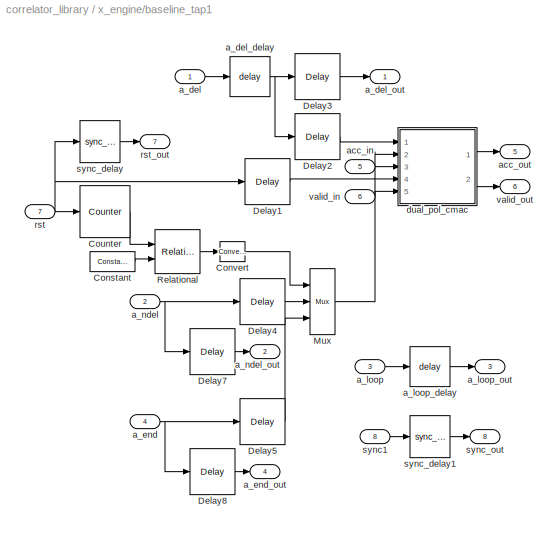
BLOCK [SubSystem] x_engine/baseline_tap1
  AncestorBlock = correlator_library/baseline_tap
  MaskCallbackString = |||||||
  MaskEnableString = on,on,on,on,on,on,on,on
  MaskIconFrame = on
  MaskIconOpaque = on
  MaskIconRotate = none
  MaskIconUnits = autoscale
  MaskPromptString = Number of Antennas|Antenna Seperation|Bit Width In|Bit Width Out|Accumulation Length|Add Latency|Mult Latency|Use Dedicated Multipliers
  MaskSelfModifiable = on
  MaskStyleString = edit,edit,edit,edit,edit,edit,edit,checkbox
  MaskTabNameString = ,,,,,,,
  MaskToolTipString = on,on,on,on,on,on,on,on
  MaskTunableValueString = on,on,on,on,on,on,on,on
  MaskValueString = AntNum|1|BitWidthIn|BitWidthOut|AccLen|AddLatency|MultLatency|off
  MaskVarAliasString = ,,,,,,,
  MaskVariables = AntNum=@1;AntSep=@2;BitWidthIn=@3;BitWidthOut=@4;AccLen=@5;AddLatency=@6;MultLatency=@7;use_mult_core=@8;
  MaskVisibilityString = on,on,on,on,on,on,on,on
  MinAlgLoopOccurrences = off
  Ports = [8, 8]
  RTWSystemCode = Auto
  TreatAsAtomicUnit = off
BLOCK [Reference] x_engine/baseline_tap1/Constant  REF=xbsIndex_r3/Constant
  Ports = [0, 1]
  SourceBlock = xbsIndex_r3/Constant
  SourceType = Xilinx Constant Block
  arith_type = Unsigned
  bin_pt = 0
  carry = CIN
  const = (AntNum - AntSep) * AccLen
  dbl_ovrd = off
  equ = P=C
  explicit_period = off
  inp1 = P
  inp2 = PCIN>>17
  iostate = 0
  n_bits = AntBits + BitGrowth
  opr = +
  opselect = C
  period = 1
BLOCK [Reference] x_engine/baseline_tap1/Convert  REF=xbsIndex_r3/Convert
  Ports = [1, 1]
  SourceBlock = xbsIndex_r3/Convert
  SourceType = Xilinx Converter Block
  arith_type = Unsigned
  bin_pt = 0
  dbl_ovrd = off
  explicit_period = off
  inserted_by_tool = off
  latency = 0
  n_bits = 1
  overflow = Wrap
  period = 1
  pipeline = off
  quantization = Truncate
  show_param = off
  xl_area = [0, 0, 0, 0, 0, 0, 0]
  xl_use_area = off
BLOCK [Reference] x_engine/baseline_tap1/Counter  REF=xbsIndex_r3/Counter
  Ports = [1, 1]
  SourceBlock = xbsIndex_r3/Counter
  SourceType = Xilinx Counter Block
  arith_type = Unsigned
  bin_pt = 0
  cnt_by_val = 1
  cnt_to = AntNum * AccLen - 1
  cnt_type = Count Limited
  dbl_ovrd = off
  en = off
  explicit_period = off
  gen_core = off
  load_pin = off
  n_bits = AntBits + BitGrowth
  operation = Up
  period = 1
  rst = on
  show_param = off
  start_count = 0
  use_rpm = on
  xl_area = [0, 0, 0, 0, 0, 0, 0]
  xl_use_area = off
BLOCK [Reference] x_engine/baseline_tap1/Delay1  REF=xbsIndex_r3/Delay
  Ports = [1, 1]
  SourceBlock = xbsIndex_r3/Delay
  SourceType = Xilinx Delay Block
  accept_only_valid = off
  dbl_ovrd = off
  en = off
  explicit_period = off
  init_zero = on
  latency = 2
  period = 1
  reg_retiming = off
  show_param = off
  xl_area = [0, 0, 0, 0, 0, 0, 0]
  xl_use_area = off
BLOCK [Reference] x_engine/baseline_tap1/Delay2  REF=xbsIndex_r3/Delay
  Ports = [1, 1]
  SourceBlock = xbsIndex_r3/Delay
  SourceType = Xilinx Delay Block
  accept_only_valid = off
  dbl_ovrd = off
  en = off
  explicit_period = off
  init_zero = on
  latency = 2
  period = 1
  reg_retiming = off
  show_param = off
  xl_area = [0, 0, 0, 0, 0, 0, 0]
  xl_use_area = off
BLOCK [Reference] x_engine/baseline_tap1/Delay3  REF=xbsIndex_r3/Delay
  Ports = [1, 1]
  SourceBlock = xbsIndex_r3/Delay
  SourceType = Xilinx Delay Block
  accept_only_valid = off
  dbl_ovrd = off
  en = off
  explicit_period = off
  init_zero = on
  latency = 1
  period = 1
  reg_retiming = off
  show_param = off
  xl_area = [0, 0, 0, 0, 0, 0, 0]
  xl_use_area = off
BLOCK [Reference] x_engine/baseline_tap1/Delay4  REF=xbsIndex_r3/Delay
  Ports = [1, 1]
  SourceBlock = xbsIndex_r3/Delay
  SourceType = Xilinx Delay Block
  accept_only_valid = off
  dbl_ovrd = off
  en = off
  explicit_period = on
  init_zero = on
  latency = 1
  period = 1
  reg_retiming = off
  show_param = off
  xl_area = [0, 0, 0, 0, 0, 0, 0]
  xl_use_area = off
BLOCK [Reference] x_engine/baseline_tap1/Delay5  REF=xbsIndex_r3/Delay
  Ports = [1, 1]
  SourceBlock = xbsIndex_r3/Delay
  SourceType = Xilinx Delay Block
  accept_only_valid = off
  dbl_ovrd = off
  en = off
  explicit_period = on
  init_zero = on
  latency = 1
  period = 1
  reg_retiming = off
  show_param = off
  xl_area = [0, 0, 0, 0, 0, 0, 0]
  xl_use_area = off
BLOCK [Reference] x_engine/baseline_tap1/Delay7  REF=xbsIndex_r3/Delay
  Ports = [1, 1]
  SourceBlock = xbsIndex_r3/Delay
  SourceType = Xilinx Delay Block
  accept_only_valid = off
  dbl_ovrd = off
  en = off
  explicit_period = on
  init_zero = on
  latency = 1
  period = 1
  reg_retiming = off
  show_param = off
  xl_area = [0, 0, 0, 0, 0, 0, 0]
  xl_use_area = off
BLOCK [Reference] x_engine/baseline_tap1/Delay8  REF=xbsIndex_r3/Delay
  Ports = [1, 1]
  SourceBlock = xbsIndex_r3/Delay
  SourceType = Xilinx Delay Block
  accept_only_valid = off
  dbl_ovrd = off
  en = off
  explicit_period = on
  init_zero = on
  latency = 1
  period = 1
  reg_retiming = off
  show_param = off
  xl_area = [0, 0, 0, 0, 0, 0, 0]
  xl_use_area = off
BLOCK [Reference] x_engine/baseline_tap1/Mux  REF=xbsIndex_r3/Mux
  Ports = [3, 1]
  SourceBlock = xbsIndex_r3/Mux
  SourceType = Xilinx Multiplexer Block
  arith_type = Signed  (2's comp)
  bin_pt = 2
  dbl_ovrd = off
  en = off
  explicit_period = off
  gen_core = off
  inputs = 2
  latency = 1
  mux_type = off
  n_bits = 8
  overflow = Wrap
  period = 1
  precision = Full
  quantization = Truncate
  show_param = off
  use_rpm = off
  xl_area = [0, 0, 0, 0, 0, 0, 0]
  xl_use_area = off
BLOCK [Reference] x_engine/baseline_tap1/Relational  REF=xbsIndex_r3/Relational
  Ports = [2, 1]
  SourceBlock = xbsIndex_r3/Relational
  SourceType = Xilinx Relational Block
  dbl_ovrd = off
  en = off
  explicit_period = off
  latency = 1
  mode = a>=b
  period = 1
  show_param = off
  xl_area = [0, 0, 0, 0, 0, 0, 0]
  xl_use_area = off
BLOCK [Inport] x_engine/baseline_tap1/a_del
  IconDisplay = Port number
  LatchInput = off
  Port = 1
BLOCK [Reference] x_engine/baseline_tap1/a_del_delay  REF=fft_library/delay  (lib defined in mdl_1e4ee9a0e578, mdl_700654ea79ba)
  DelayLen = AccLen
  Ports = [1, 1]
  ShowPortLabels = on
  SourceBlock = fft_library/delay
  SourceType = delay
BLOCK [Outport] x_engine/baseline_tap1/a_del_out
  BusOutputAsStruct = off
  IconDisplay = Port number
BLOCK [Inport] x_engine/baseline_tap1/a_end
  IconDisplay = Port number
  LatchInput = off
  Port = 4
BLOCK [Outport] x_engine/baseline_tap1/a_end_out
  BusOutputAsStruct = off
  IconDisplay = Port number
  Port = 4
BLOCK [Inport] x_engine/baseline_tap1/a_loop
  IconDisplay = Port number
  LatchInput = off
  Port = 3
BLOCK [Reference] x_engine/baseline_tap1/a_loop_delay  REF=fft_library/delay  (lib defined in mdl_1e4ee9a0e578, mdl_700654ea79ba)
  DelayLen = AccLen - 1
  Ports = [1, 1]
  ShowPortLabels = on
  SourceBlock = fft_library/delay
  SourceType = delay
BLOCK [Outport] x_engine/baseline_tap1/a_loop_out
  BusOutputAsStruct = off
  IconDisplay = Port number
  Port = 3
BLOCK [Inport] x_engine/baseline_tap1/a_ndel
  IconDisplay = Port number
  LatchInput = off
  Port = 2
BLOCK [Outport] x_engine/baseline_tap1/a_ndel_out
  BusOutputAsStruct = off
  IconDisplay = Port number
  Port = 2
BLOCK [Inport] x_engine/baseline_tap1/acc_in
  IconDisplay = Port number
  LatchInput = off
  Port = 5
BLOCK [Outport] x_engine/baseline_tap1/acc_out
  BusOutputAsStruct = off
  IconDisplay = Port number
  Port = 5
BLOCK [SubSystem] x_engine/baseline_tap1/dual_pol_cmac
  MaskCallbackString = |||||
  MaskEnableString = on,on,on,on,on,on
  MaskIconFrame = on
  MaskIconOpaque = on
  MaskIconRotate = none
  MaskIconUnits = autoscale
  MaskPromptString = Bit Width of Sample In|Bit Width of Sample Out|Accumulation Length|Mult Latency|Add Latency|Use Dedicated Multipliers
  MaskSelfModifiable = on
  MaskStyleString = edit,edit,edit,edit,edit,checkbox
  MaskTabNameString = ,,,,,
  MaskToolTipString = on,on,on,on,on,on
  MaskTunableValueString = on,on,on,on,on,on
  MaskValueString = BitWidthIn|BitWidthOut|AccLen|MultLatency|AddLatency|off
  MaskVarAliasString = ,,,,,
  MaskVariables = BitWidthIn=@1;BitWidthOut=@2;AccLen=@3;MultLatency=@4;AddLatency=@5;use_mult_core=@6;
  MaskVisibilityString = on,on,on,on,on,on
  MinAlgLoopOccurrences = off
  Ports = [5, 2]
  RTWSystemCode = Auto
  TreatAsAtomicUnit = off
BLOCK [Reference] x_engine/baseline_tap1/dual_pol_cmac/Concat  REF=xbsIndex_r3/Concat
  Ports = [4, 1]
  SourceBlock = xbsIndex_r3/Concat
  SourceType = Xilinx Bus Concatenator
  dbl_ovrd = off
  explicit_period = off
  num_inputs = 4
  period = 1
BLOCK [Reference] x_engine/baseline_tap1/dual_pol_cmac/Constant1  REF=xbsIndex_r3/Constant
  Ports = [0, 1]
  SourceBlock = xbsIndex_r3/Constant
  SourceType = Xilinx Constant Block
  arith_type = Unsigned
  bin_pt = 0
  const = 0
  dbl_ovrd = off
  explicit_period = off
  n_bits = 1
  period = 1
BLOCK [Reference] x_engine/baseline_tap1/dual_pol_cmac/Constant2  REF=xbsIndex_r3/Constant
  Ports = [0, 1]
  SourceBlock = xbsIndex_r3/Constant
  SourceType = Xilinx Constant Block
  arith_type = Unsigned
  bin_pt = 0
  const = 0
  dbl_ovrd = off
  explicit_period = off
  n_bits = 1
  period = 1
BLOCK [Reference] x_engine/baseline_tap1/dual_pol_cmac/Constant4  REF=xbsIndex_r3/Constant
  Ports = [0, 1]
  SourceBlock = xbsIndex_r3/Constant
  SourceType = Xilinx Constant Block
  arith_type = Unsigned
  bin_pt = 0
  const = 0
  dbl_ovrd = off
  explicit_period = off
  n_bits = 1
  period = 1
BLOCK [Reference] x_engine/baseline_tap1/dual_pol_cmac/Slice  REF=xbsIndex_r3/Slice
  Ports = [1, 1]
  SourceBlock = xbsIndex_r3/Slice
  SourceType = Xilinx Slice Block
  base0 = LSB of Input
  base1 = MSB of Input
  bit0 = 0
  bit1 = 0
  boolean_output = off
  dbl_ovrd = off
  explicit_period = off
  mode = Upper Bit Location + Width
  nbits = 2*BitWidthIn
  period = 1
BLOCK [Reference] x_engine/baseline_tap1/dual_pol_cmac/Slice1  REF=xbsIndex_r3/Slice
  Ports = [1, 1]
  SourceBlock = xbsIndex_r3/Slice
  SourceType = Xilinx Slice Block
  base0 = LSB of Input
  base1 = MSB of Input
  bit0 = 0
  bit1 = 0
  boolean_output = off
  dbl_ovrd = off
  explicit_period = off
  mode = Upper Bit Location + Width
  nbits = 2*BitWidthIn
  period = 1
BLOCK [Reference] x_engine/baseline_tap1/dual_pol_cmac/Slice10  REF=xbsIndex_r3/Slice
  Ports = [1, 1]
  SourceBlock = xbsIndex_r3/Slice
  SourceType = Xilinx Slice Block
  base0 = LSB of Input
  base1 = MSB of Input
  bit0 = 0
  bit1 = -2*BitWidthIn
  boolean_output = off
  dbl_ovrd = off
  explicit_period = off
  mode = Upper Bit Location + Width
  nbits = 2*BitWidthIn
  period = 1
BLOCK [Reference] x_engine/baseline_tap1/dual_pol_cmac/Slice11  REF=xbsIndex_r3/Slice
  Ports = [1, 1]
  SourceBlock = xbsIndex_r3/Slice
  SourceType = Xilinx Slice Block
  base0 = LSB of Input
  base1 = MSB of Input
  bit0 = 0
  bit1 = -6*BitWidthOut
  boolean_output = off
  dbl_ovrd = off
  explicit_period = off
  mode = Upper Bit Location + Width
  nbits = 2*BitWidthOut
  period = 1
BLOCK [Reference] x_engine/baseline_tap1/dual_pol_cmac/Slice2  REF=xbsIndex_r3/Slice
  Ports = [1, 1]
  SourceBlock = xbsIndex_r3/Slice
  SourceType = Xilinx Slice Block
  base0 = LSB of Input
  base1 = MSB of Input
  bit0 = 0
  bit1 = 0
  boolean_output = off
  dbl_ovrd = off
  explicit_period = off
  mode = Upper Bit Location + Width
  nbits = 2*BitWidthOut
  period = 1
BLOCK [Reference] x_engine/baseline_tap1/dual_pol_cmac/Slice3  REF=xbsIndex_r3/Slice
  Ports = [1, 1]
  SourceBlock = xbsIndex_r3/Slice
  SourceType = Xilinx Slice Block
  base0 = LSB of Input
  base1 = MSB of Input
  bit0 = 0
  bit1 = -2*BitWidthIn
  boolean_output = off
  dbl_ovrd = off
  explicit_period = off
  mode = Upper Bit Location + Width
  nbits = 2*BitWidthIn
  period = 1
BLOCK [Reference] x_engine/baseline_tap1/dual_pol_cmac/Slice4  REF=xbsIndex_r3/Slice
  Ports = [1, 1]
  SourceBlock = xbsIndex_r3/Slice
  SourceType = Xilinx Slice Block
  base0 = LSB of Input
  base1 = MSB of Input
  bit0 = 0
  bit1 = -2*BitWidthIn
  boolean_output = off
  dbl_ovrd = off
  explicit_period = off
  mode = Upper Bit Location + Width
  nbits = 2*BitWidthIn
  period = 1
BLOCK [Reference] x_engine/baseline_tap1/dual_pol_cmac/Slice5  REF=xbsIndex_r3/Slice
  Ports = [1, 1]
  SourceBlock = xbsIndex_r3/Slice
  SourceType = Xilinx Slice Block
  base0 = LSB of Input
  base1 = MSB of Input
  bit0 = 0
  bit1 = -2*BitWidthOut
  boolean_output = off
  dbl_ovrd = off
  explicit_period = off
  mode = Upper Bit Location + Width
  nbits = 2*BitWidthOut
  period = 1
BLOCK [Reference] x_engine/baseline_tap1/dual_pol_cmac/Slice6  REF=xbsIndex_r3/Slice
  Ports = [1, 1]
  SourceBlock = xbsIndex_r3/Slice
  SourceType = Xilinx Slice Block
  base0 = LSB of Input
  base1 = MSB of Input
  bit0 = 0
  bit1 = 0
  boolean_output = off
  dbl_ovrd = off
  explicit_period = off
  mode = Upper Bit Location + Width
  nbits = 2*BitWidthIn
  period = 1
BLOCK [Reference] x_engine/baseline_tap1/dual_pol_cmac/Slice7  REF=xbsIndex_r3/Slice
  Ports = [1, 1]
  SourceBlock = xbsIndex_r3/Slice
  SourceType = Xilinx Slice Block
  base0 = LSB of Input
  base1 = MSB of Input
  bit0 = 0
  bit1 = -2*BitWidthIn
  boolean_output = off
  dbl_ovrd = off
  explicit_period = off
  mode = Upper Bit Location + Width
  nbits = 2*BitWidthIn
  period = 1
BLOCK [Reference] x_engine/baseline_tap1/dual_pol_cmac/Slice8  REF=xbsIndex_r3/Slice
  Ports = [1, 1]
  SourceBlock = xbsIndex_r3/Slice
  SourceType = Xilinx Slice Block
  base0 = LSB of Input
  base1 = MSB of Input
  bit0 = 0
  bit1 = -4*BitWidthOut
  boolean_output = off
  dbl_ovrd = off
  explicit_period = off
  mode = Upper Bit Location + Width
  nbits = 2*BitWidthOut
  period = 1
BLOCK [Reference] x_engine/baseline_tap1/dual_pol_cmac/Slice9  REF=xbsIndex_r3/Slice
  Ports = [1, 1]
  SourceBlock = xbsIndex_r3/Slice
  SourceType = Xilinx Slice Block
  base0 = LSB of Input
  base1 = MSB of Input
  bit0 = 0
  bit1 = 0
  boolean_output = off
  dbl_ovrd = off
  explicit_period = off
  mode = Upper Bit Location + Width
  nbits = 2*BitWidthIn
  period = 1
BLOCK [Terminator] x_engine/baseline_tap1/dual_pol_cmac/Terminator
BLOCK [Terminator] x_engine/baseline_tap1/dual_pol_cmac/Terminator1
BLOCK [Terminator] x_engine/baseline_tap1/dual_pol_cmac/Terminator2
BLOCK [Inport] x_engine/baseline_tap1/dual_pol_cmac/a1
  IconDisplay = Port number
  LatchInput = off
  Port = 1
BLOCK [Inport] x_engine/baseline_tap1/dual_pol_cmac/a2
  IconDisplay = Port number
  LatchInput = off
  Port = 2
BLOCK [Inport] x_engine/baseline_tap1/dual_pol_cmac/acc_in
  IconDisplay = Port number
  LatchInput = off
  Port = 3
BLOCK [Outport] x_engine/baseline_tap1/dual_pol_cmac/acc_out
  BusOutputAsStruct = off
  IconDisplay = Port number
BLOCK [Reference] x_engine/baseline_tap1/dual_pol_cmac/cmac  REF=correlator_library/cmac  (lib defined in mdl_61a1cd724cd8)
  AccLen = AccLen
  AddLatency = AddLatency
  BitWidthIn = BitWidthIn
  BitWidthOut = BitWidthOut
  MultLatency = MultLatency
  Ports = [5, 2]
  ShowPortLabels = on
  SourceBlock = correlator_library/cmac
  SourceType = Unknown
  use_conj = on
  use_mult_core = off
BLOCK [Reference] x_engine/baseline_tap1/dual_pol_cmac/cmac1  REF=correlator_library/cmac  (lib defined in mdl_61a1cd724cd8)
  AccLen = AccLen
  AddLatency = AddLatency
  BitWidthIn = BitWidthIn
  BitWidthOut = BitWidthOut
  MultLatency = MultLatency
  Ports = [5, 2]
  ShowPortLabels = on
  SourceBlock = correlator_library/cmac
  SourceType = Unknown
  use_conj = on
  use_mult_core = off
BLOCK [Reference] x_engine/baseline_tap1/dual_pol_cmac/cmac2  REF=correlator_library/cmac  (lib defined in mdl_61a1cd724cd8)
  AccLen = AccLen
  AddLatency = AddLatency
  BitWidthIn = BitWidthIn
  BitWidthOut = BitWidthOut
  MultLatency = MultLatency
  Ports = [5, 2]
  ShowPortLabels = on
  SourceBlock = correlator_library/cmac
  SourceType = Unknown
  use_conj = on
  use_mult_core = off
BLOCK [Reference] x_engine/baseline_tap1/dual_pol_cmac/cmac3  REF=correlator_library/cmac  (lib defined in mdl_61a1cd724cd8)
  AccLen = AccLen
  AddLatency = AddLatency
  BitWidthIn = BitWidthIn
  BitWidthOut = BitWidthOut
  MultLatency = MultLatency
  Ports = [5, 2]
  ShowPortLabels = on
  SourceBlock = correlator_library/cmac
  SourceType = Unknown
  use_conj = on
  use_mult_core = off
BLOCK [Inport] x_engine/baseline_tap1/dual_pol_cmac/sync
  IconDisplay = Port number
  LatchInput = off
  Port = 4
BLOCK [Inport] x_engine/baseline_tap1/dual_pol_cmac/valid_in
  IconDisplay = Port number
  LatchInput = off
  Port = 5
BLOCK [Outport] x_engine/baseline_tap1/dual_pol_cmac/valid_out
  BusOutputAsStruct = off
  IconDisplay = Port number
  Port = 2
BLOCK [Inport] x_engine/baseline_tap1/rst
  IconDisplay = Port number
  LatchInput = off
  Port = 7
BLOCK [Outport] x_engine/baseline_tap1/rst_out
  BusOutputAsStruct = off
  IconDisplay = Port number
  Port = 7
BLOCK [Inport] x_engine/baseline_tap1/sync1
  IconDisplay = Port number
  LatchInput = off
  Port = 8
BLOCK [Reference] x_engine/baseline_tap1/sync_delay  REF=fft_library/sync_delay  (lib defined in mdl_1e4ee9a0e578, mdl_700654ea79ba)
  DelayLen = AccLen + 1
  Ports = [1, 1]
  ShowPortLabels = on
  SourceBlock = fft_library/sync_delay
  SourceType = Unknown
BLOCK [Reference] x_engine/baseline_tap1/sync_delay1  REF=fft_library/sync_delay  (lib defined in mdl_1e4ee9a0e578, mdl_700654ea79ba)
  DelayLen = 2 * AccLen
  Ports = [1, 1]
  ShowPortLabels = on
  SourceBlock = fft_library/sync_delay
  SourceType = Unknown
BLOCK [Outport] x_engine/baseline_tap1/sync_out
  BusOutputAsStruct = off
  IconDisplay = Port number
  Port = 8
BLOCK [Inport] x_engine/baseline_tap1/valid_in
  IconDisplay = Port number
  LatchInput = off
  Port = 6
BLOCK [Outport] x_engine/baseline_tap1/valid_out
  BusOutputAsStruct = off
  IconDisplay = Port number
  Port = 6
BLOCK [SubSystem] x_engine/baseline_tap2
  AncestorBlock = correlator_library/baseline_tap
  MaskCallbackString = |||||||
  MaskEnableString = on,on,on,on,on,on,on,on
  MaskIconFrame = on
  MaskIconOpaque = on
  MaskIconRotate = none
  MaskIconUnits = autoscale
  MaskPromptString = Number of Antennas|Antenna Seperation|Bit Width In|Bit Width Out|Accumulation Length|Add Latency|Mult Latency|Use Dedicated Multipliers
  MaskSelfModifiable = on
  MaskStyleString = edit,edit,edit,edit,edit,edit,edit,checkbox
  MaskTabNameString = ,,,,,,,
  MaskToolTipString = on,on,on,on,on,on,on,on
  MaskTunableValueString = on,on,on,on,on,on,on,on
  MaskValueString = AntNum|2|BitWidthIn|BitWidthOut|AccLen|AddLatency|MultLatency|off
  MaskVarAliasString = ,,,,,,,
  MaskVariables = AntNum=@1;AntSep=@2;BitWidthIn=@3;BitWidthOut=@4;AccLen=@5;AddLatency=@6;MultLatency=@7;use_mult_core=@8;
  MaskVisibilityString = on,on,on,on,on,on,on,on
  MinAlgLoopOccurrences = off
  Ports = [8, 8]
  RTWSystemCode = Auto
  TreatAsAtomicUnit = off
BLOCK [Reference] x_engine/baseline_tap2/Constant  REF=xbsIndex_r3/Constant
  Ports = [0, 1]
  SourceBlock = xbsIndex_r3/Constant
  SourceType = Xilinx Constant Block
  arith_type = Unsigned
  bin_pt = 0
  carry = CIN
  const = (AntNum - AntSep) * AccLen
  dbl_ovrd = off
  equ = P=C
  explicit_period = off
  inp1 = P
  inp2 = PCIN>>17
  iostate = 0
  n_bits = AntBits + BitGrowth
  opr = +
  opselect = C
  period = 1
BLOCK [Reference] x_engine/baseline_tap2/Convert  REF=xbsIndex_r3/Convert
  Ports = [1, 1]
  SourceBlock = xbsIndex_r3/Convert
  SourceType = Xilinx Converter Block
  arith_type = Unsigned
  bin_pt = 0
  dbl_ovrd = off
  explicit_period = off
  inserted_by_tool = off
  latency = 0
  n_bits = 1
  overflow = Wrap
  period = 1
  pipeline = off
  quantization = Truncate
  show_param = off
  xl_area = [0, 0, 0, 0, 0, 0, 0]
  xl_use_area = off
BLOCK [Reference] x_engine/baseline_tap2/Counter  REF=xbsIndex_r3/Counter
  Ports = [1, 1]
  SourceBlock = xbsIndex_r3/Counter
  SourceType = Xilinx Counter Block
  arith_type = Unsigned
  bin_pt = 0
  cnt_by_val = 1
  cnt_to = AntNum * AccLen - 1
  cnt_type = Count Limited
  dbl_ovrd = off
  en = off
  explicit_period = off
  gen_core = off
  load_pin = off
  n_bits = AntBits + BitGrowth
  operation = Up
  period = 1
  rst = on
  show_param = off
  start_count = 0
  use_rpm = on
  xl_area = [0, 0, 0, 0, 0, 0, 0]
  xl_use_area = off
BLOCK [Reference] x_engine/baseline_tap2/Delay1  REF=xbsIndex_r3/Delay
  Ports = [1, 1]
  SourceBlock = xbsIndex_r3/Delay
  SourceType = Xilinx Delay Block
  accept_only_valid = off
  dbl_ovrd = off
  en = off
  explicit_period = off
  init_zero = on
  latency = 2
  period = 1
  reg_retiming = off
  show_param = off
  xl_area = [0, 0, 0, 0, 0, 0, 0]
  xl_use_area = off
BLOCK [Reference] x_engine/baseline_tap2/Delay2  REF=xbsIndex_r3/Delay
  Ports = [1, 1]
  SourceBlock = xbsIndex_r3/Delay
  SourceType = Xilinx Delay Block
  accept_only_valid = off
  dbl_ovrd = off
  en = off
  explicit_period = off
  init_zero = on
  latency = 2
  period = 1
  reg_retiming = off
  show_param = off
  xl_area = [0, 0, 0, 0, 0, 0, 0]
  xl_use_area = off
BLOCK [Reference] x_engine/baseline_tap2/Delay3  REF=xbsIndex_r3/Delay
  Ports = [1, 1]
  SourceBlock = xbsIndex_r3/Delay
  SourceType = Xilinx Delay Block
  accept_only_valid = off
  dbl_ovrd = off
  en = off
  explicit_period = off
  init_zero = on
  latency = 1
  period = 1
  reg_retiming = off
  show_param = off
  xl_area = [0, 0, 0, 0, 0, 0, 0]
  xl_use_area = off
BLOCK [Reference] x_engine/baseline_tap2/Delay4  REF=xbsIndex_r3/Delay
  Ports = [1, 1]
  SourceBlock = xbsIndex_r3/Delay
  SourceType = Xilinx Delay Block
  accept_only_valid = off
  dbl_ovrd = off
  en = off
  explicit_period = on
  init_zero = on
  latency = 1
  period = 1
  reg_retiming = off
  show_param = off
  xl_area = [0, 0, 0, 0, 0, 0, 0]
  xl_use_area = off
BLOCK [Reference] x_engine/baseline_tap2/Delay5  REF=xbsIndex_r3/Delay
  Ports = [1, 1]
  SourceBlock = xbsIndex_r3/Delay
  SourceType = Xilinx Delay Block
  accept_only_valid = off
  dbl_ovrd = off
  en = off
  explicit_period = on
  init_zero = on
  latency = 1
  period = 1
  reg_retiming = off
  show_param = off
  xl_area = [0, 0, 0, 0, 0, 0, 0]
  xl_use_area = off
BLOCK [Reference] x_engine/baseline_tap2/Delay7  REF=xbsIndex_r3/Delay
  Ports = [1, 1]
  SourceBlock = xbsIndex_r3/Delay
  SourceType = Xilinx Delay Block
  accept_only_valid = off
  dbl_ovrd = off
  en = off
  explicit_period = on
  init_zero = on
  latency = 1
  period = 1
  reg_retiming = off
  show_param = off
  xl_area = [0, 0, 0, 0, 0, 0, 0]
  xl_use_area = off
BLOCK [Reference] x_engine/baseline_tap2/Delay8  REF=xbsIndex_r3/Delay
  Ports = [1, 1]
  SourceBlock = xbsIndex_r3/Delay
  SourceType = Xilinx Delay Block
  accept_only_valid = off
  dbl_ovrd = off
  en = off
  explicit_period = on
  init_zero = on
  latency = 1
  period = 1
  reg_retiming = off
  show_param = off
  xl_area = [0, 0, 0, 0, 0, 0, 0]
  xl_use_area = off
BLOCK [Reference] x_engine/baseline_tap2/Mux  REF=xbsIndex_r3/Mux
  Ports = [3, 1]
  SourceBlock = xbsIndex_r3/Mux
  SourceType = Xilinx Multiplexer Block
  arith_type = Signed  (2's comp)
  bin_pt = 2
  dbl_ovrd = off
  en = off
  explicit_period = off
  gen_core = off
  inputs = 2
  latency = 1
  mux_type = off
  n_bits = 8
  overflow = Wrap
  period = 1
  precision = Full
  quantization = Truncate
  show_param = off
  use_rpm = off
  xl_area = [0, 0, 0, 0, 0, 0, 0]
  xl_use_area = off
BLOCK [Reference] x_engine/baseline_tap2/Relational  REF=xbsIndex_r3/Relational
  Ports = [2, 1]
  SourceBlock = xbsIndex_r3/Relational
  SourceType = Xilinx Relational Block
  dbl_ovrd = off
  en = off
  explicit_period = off
  latency = 1
  mode = a>=b
  period = 1
  show_param = off
  xl_area = [0, 0, 0, 0, 0, 0, 0]
  xl_use_area = off
BLOCK [Inport] x_engine/baseline_tap2/a_del
  IconDisplay = Port number
  LatchInput = off
  Port = 1
BLOCK [Reference] x_engine/baseline_tap2/a_del_delay  REF=fft_library/delay  (lib defined in mdl_1e4ee9a0e578, mdl_700654ea79ba)
  DelayLen = AccLen
  Ports = [1, 1]
  ShowPortLabels = on
  SourceBlock = fft_library/delay
  SourceType = delay
BLOCK [Outport] x_engine/baseline_tap2/a_del_out
  BusOutputAsStruct = off
  IconDisplay = Port number
BLOCK [Inport] x_engine/baseline_tap2/a_end
  IconDisplay = Port number
  LatchInput = off
  Port = 4
BLOCK [Outport] x_engine/baseline_tap2/a_end_out
  BusOutputAsStruct = off
  IconDisplay = Port number
  Port = 4
BLOCK [Inport] x_engine/baseline_tap2/a_loop
  IconDisplay = Port number
  LatchInput = off
  Port = 3
BLOCK [Reference] x_engine/baseline_tap2/a_loop_delay  REF=fft_library/delay  (lib defined in mdl_1e4ee9a0e578, mdl_700654ea79ba)
  DelayLen = AccLen - 1
  Ports = [1, 1]
  ShowPortLabels = on
  SourceBlock = fft_library/delay
  SourceType = delay
BLOCK [Outport] x_engine/baseline_tap2/a_loop_out
  BusOutputAsStruct = off
  IconDisplay = Port number
  Port = 3
BLOCK [Inport] x_engine/baseline_tap2/a_ndel
  IconDisplay = Port number
  LatchInput = off
  Port = 2
BLOCK [Outport] x_engine/baseline_tap2/a_ndel_out
  BusOutputAsStruct = off
  IconDisplay = Port number
  Port = 2
BLOCK [Inport] x_engine/baseline_tap2/acc_in
  IconDisplay = Port number
  LatchInput = off
  Port = 5
BLOCK [Outport] x_engine/baseline_tap2/acc_out
  BusOutputAsStruct = off
  IconDisplay = Port number
  Port = 5
BLOCK [SubSystem] x_engine/baseline_tap2/dual_pol_cmac
  MaskCallbackString = |||||
  MaskEnableString = on,on,on,on,on,on
  MaskIconFrame = on
  MaskIconOpaque = on
  MaskIconRotate = none
  MaskIconUnits = autoscale
  MaskPromptString = Bit Width of Sample In|Bit Width of Sample Out|Accumulation Length|Mult Latency|Add Latency|Use Dedicated Multipliers
  MaskSelfModifiable = on
  MaskStyleString = edit,edit,edit,edit,edit,checkbox
  MaskTabNameString = ,,,,,
  MaskToolTipString = on,on,on,on,on,on
  MaskTunableValueString = on,on,on,on,on,on
  MaskValueString = BitWidthIn|BitWidthOut|AccLen|MultLatency|AddLatency|off
  MaskVarAliasString = ,,,,,
  MaskVariables = BitWidthIn=@1;BitWidthOut=@2;AccLen=@3;MultLatency=@4;AddLatency=@5;use_mult_core=@6;
  MaskVisibilityString = on,on,on,on,on,on
  MinAlgLoopOccurrences = off
  Ports = [5, 2]
  RTWSystemCode = Auto
  TreatAsAtomicUnit = off
BLOCK [Reference] x_engine/baseline_tap2/dual_pol_cmac/Concat  REF=xbsIndex_r3/Concat
  Ports = [4, 1]
  SourceBlock = xbsIndex_r3/Concat
  SourceType = Xilinx Bus Concatenator
  dbl_ovrd = off
  explicit_period = off
  num_inputs = 4
  period = 1
BLOCK [Reference] x_engine/baseline_tap2/dual_pol_cmac/Constant1  REF=xbsIndex_r3/Constant
  Ports = [0, 1]
  SourceBlock = xbsIndex_r3/Constant
  SourceType = Xilinx Constant Block
  arith_type = Unsigned
  bin_pt = 0
  const = 0
  dbl_ovrd = off
  explicit_period = off
  n_bits = 1
  period = 1
BLOCK [Reference] x_engine/baseline_tap2/dual_pol_cmac/Constant2  REF=xbsIndex_r3/Constant
  Ports = [0, 1]
  SourceBlock = xbsIndex_r3/Constant
  SourceType = Xilinx Constant Block
  arith_type = Unsigned
  bin_pt = 0
  const = 0
  dbl_ovrd = off
  explicit_period = off
  n_bits = 1
  period = 1
BLOCK [Reference] x_engine/baseline_tap2/dual_pol_cmac/Constant4  REF=xbsIndex_r3/Constant
  Ports = [0, 1]
  SourceBlock = xbsIndex_r3/Constant
  SourceType = Xilinx Constant Block
  arith_type = Unsigned
  bin_pt = 0
  const = 0
  dbl_ovrd = off
  explicit_period = off
  n_bits = 1
  period = 1
BLOCK [Reference] x_engine/baseline_tap2/dual_pol_cmac/Slice  REF=xbsIndex_r3/Slice
  Ports = [1, 1]
  SourceBlock = xbsIndex_r3/Slice
  SourceType = Xilinx Slice Block
  base0 = LSB of Input
  base1 = MSB of Input
  bit0 = 0
  bit1 = 0
  boolean_output = off
  dbl_ovrd = off
  explicit_period = off
  mode = Upper Bit Location + Width
  nbits = 2*BitWidthIn
  period = 1
BLOCK [Reference] x_engine/baseline_tap2/dual_pol_cmac/Slice1  REF=xbsIndex_r3/Slice
  Ports = [1, 1]
  SourceBlock = xbsIndex_r3/Slice
  SourceType = Xilinx Slice Block
  base0 = LSB of Input
  base1 = MSB of Input
  bit0 = 0
  bit1 = 0
  boolean_output = off
  dbl_ovrd = off
  explicit_period = off
  mode = Upper Bit Location + Width
  nbits = 2*BitWidthIn
  period = 1
BLOCK [Reference] x_engine/baseline_tap2/dual_pol_cmac/Slice10  REF=xbsIndex_r3/Slice
  Ports = [1, 1]
  SourceBlock = xbsIndex_r3/Slice
  SourceType = Xilinx Slice Block
  base0 = LSB of Input
  base1 = MSB of Input
  bit0 = 0
  bit1 = -2*BitWidthIn
  boolean_output = off
  dbl_ovrd = off
  explicit_period = off
  mode = Upper Bit Location + Width
  nbits = 2*BitWidthIn
  period = 1
BLOCK [Reference] x_engine/baseline_tap2/dual_pol_cmac/Slice11  REF=xbsIndex_r3/Slice
  Ports = [1, 1]
  SourceBlock = xbsIndex_r3/Slice
  SourceType = Xilinx Slice Block
  base0 = LSB of Input
  base1 = MSB of Input
  bit0 = 0
  bit1 = -6*BitWidthOut
  boolean_output = off
  dbl_ovrd = off
  explicit_period = off
  mode = Upper Bit Location + Width
  nbits = 2*BitWidthOut
  period = 1
BLOCK [Reference] x_engine/baseline_tap2/dual_pol_cmac/Slice2  REF=xbsIndex_r3/Slice
  Ports = [1, 1]
  SourceBlock = xbsIndex_r3/Slice
  SourceType = Xilinx Slice Block
  base0 = LSB of Input
  base1 = MSB of Input
  bit0 = 0
  bit1 = 0
  boolean_output = off
  dbl_ovrd = off
  explicit_period = off
  mode = Upper Bit Location + Width
  nbits = 2*BitWidthOut
  period = 1
BLOCK [Reference] x_engine/baseline_tap2/dual_pol_cmac/Slice3  REF=xbsIndex_r3/Slice
  Ports = [1, 1]
  SourceBlock = xbsIndex_r3/Slice
  SourceType = Xilinx Slice Block
  base0 = LSB of Input
  base1 = MSB of Input
  bit0 = 0
  bit1 = -2*BitWidthIn
  boolean_output = off
  dbl_ovrd = off
  explicit_period = off
  mode = Upper Bit Location + Width
  nbits = 2*BitWidthIn
  period = 1
BLOCK [Reference] x_engine/baseline_tap2/dual_pol_cmac/Slice4  REF=xbsIndex_r3/Slice
  Ports = [1, 1]
  SourceBlock = xbsIndex_r3/Slice
  SourceType = Xilinx Slice Block
  base0 = LSB of Input
  base1 = MSB of Input
  bit0 = 0
  bit1 = -2*BitWidthIn
  boolean_output = off
  dbl_ovrd = off
  explicit_period = off
  mode = Upper Bit Location + Width
  nbits = 2*BitWidthIn
  period = 1
BLOCK [Reference] x_engine/baseline_tap2/dual_pol_cmac/Slice5  REF=xbsIndex_r3/Slice
  Ports = [1, 1]
  SourceBlock = xbsIndex_r3/Slice
  SourceType = Xilinx Slice Block
  base0 = LSB of Input
  base1 = MSB of Input
  bit0 = 0
  bit1 = -2*BitWidthOut
  boolean_output = off
  dbl_ovrd = off
  explicit_period = off
  mode = Upper Bit Location + Width
  nbits = 2*BitWidthOut
  period = 1
BLOCK [Reference] x_engine/baseline_tap2/dual_pol_cmac/Slice6  REF=xbsIndex_r3/Slice
  Ports = [1, 1]
  SourceBlock = xbsIndex_r3/Slice
  SourceType = Xilinx Slice Block
  base0 = LSB of Input
  base1 = MSB of Input
  bit0 = 0
  bit1 = 0
  boolean_output = off
  dbl_ovrd = off
  explicit_period = off
  mode = Upper Bit Location + Width
  nbits = 2*BitWidthIn
  period = 1
BLOCK [Reference] x_engine/baseline_tap2/dual_pol_cmac/Slice7  REF=xbsIndex_r3/Slice
  Ports = [1, 1]
  SourceBlock = xbsIndex_r3/Slice
  SourceType = Xilinx Slice Block
  base0 = LSB of Input
  base1 = MSB of Input
  bit0 = 0
  bit1 = -2*BitWidthIn
  boolean_output = off
  dbl_ovrd = off
  explicit_period = off
  mode = Upper Bit Location + Width
  nbits = 2*BitWidthIn
  period = 1
BLOCK [Reference] x_engine/baseline_tap2/dual_pol_cmac/Slice8  REF=xbsIndex_r3/Slice
  Ports = [1, 1]
  SourceBlock = xbsIndex_r3/Slice
  SourceType = Xilinx Slice Block
  base0 = LSB of Input
  base1 = MSB of Input
  bit0 = 0
  bit1 = -4*BitWidthOut
  boolean_output = off
  dbl_ovrd = off
  explicit_period = off
  mode = Upper Bit Location + Width
  nbits = 2*BitWidthOut
  period = 1
BLOCK [Reference] x_engine/baseline_tap2/dual_pol_cmac/Slice9  REF=xbsIndex_r3/Slice
  Ports = [1, 1]
  SourceBlock = xbsIndex_r3/Slice
  SourceType = Xilinx Slice Block
  base0 = LSB of Input
  base1 = MSB of Input
  bit0 = 0
  bit1 = 0
  boolean_output = off
  dbl_ovrd = off
  explicit_period = off
  mode = Upper Bit Location + Width
  nbits = 2*BitWidthIn
  period = 1
BLOCK [Terminator] x_engine/baseline_tap2/dual_pol_cmac/Terminator
BLOCK [Terminator] x_engine/baseline_tap2/dual_pol_cmac/Terminator1
BLOCK [Terminator] x_engine/baseline_tap2/dual_pol_cmac/Terminator2
BLOCK [Inport] x_engine/baseline_tap2/dual_pol_cmac/a1
  IconDisplay = Port number
  LatchInput = off
  Port = 1
BLOCK [Inport] x_engine/baseline_tap2/dual_pol_cmac/a2
  IconDisplay = Port number
  LatchInput = off
  Port = 2
BLOCK [Inport] x_engine/baseline_tap2/dual_pol_cmac/acc_in
  IconDisplay = Port number
  LatchInput = off
  Port = 3
BLOCK [Outport] x_engine/baseline_tap2/dual_pol_cmac/acc_out
  BusOutputAsStruct = off
  IconDisplay = Port number
BLOCK [Reference] x_engine/baseline_tap2/dual_pol_cmac/cmac  REF=correlator_library/cmac  (lib defined in mdl_61a1cd724cd8)
  AccLen = AccLen
  AddLatency = AddLatency
  BitWidthIn = BitWidthIn
  BitWidthOut = BitWidthOut
  MultLatency = MultLatency
  Ports = [5, 2]
  ShowPortLabels = on
  SourceBlock = correlator_library/cmac
  SourceType = Unknown
  use_conj = on
  use_mult_core = off
BLOCK [Reference] x_engine/baseline_tap2/dual_pol_cmac/cmac1  REF=correlator_library/cmac  (lib defined in mdl_61a1cd724cd8)
  AccLen = AccLen
  AddLatency = AddLatency
  BitWidthIn = BitWidthIn
  BitWidthOut = BitWidthOut
  MultLatency = MultLatency
  Ports = [5, 2]
  ShowPortLabels = on
  SourceBlock = correlator_library/cmac
  SourceType = Unknown
  use_conj = on
  use_mult_core = off
BLOCK [Reference] x_engine/baseline_tap2/dual_pol_cmac/cmac2  REF=correlator_library/cmac  (lib defined in mdl_61a1cd724cd8)
  AccLen = AccLen
  AddLatency = AddLatency
  BitWidthIn = BitWidthIn
  BitWidthOut = BitWidthOut
  MultLatency = MultLatency
  Ports = [5, 2]
  ShowPortLabels = on
  SourceBlock = correlator_library/cmac
  SourceType = Unknown
  use_conj = on
  use_mult_core = off
BLOCK [Reference] x_engine/baseline_tap2/dual_pol_cmac/cmac3  REF=correlator_library/cmac  (lib defined in mdl_61a1cd724cd8)
  AccLen = AccLen
  AddLatency = AddLatency
  BitWidthIn = BitWidthIn
  BitWidthOut = BitWidthOut
  MultLatency = MultLatency
  Ports = [5, 2]
  ShowPortLabels = on
  SourceBlock = correlator_library/cmac
  SourceType = Unknown
  use_conj = on
  use_mult_core = off
BLOCK [Inport] x_engine/baseline_tap2/dual_pol_cmac/sync
  IconDisplay = Port number
  LatchInput = off
  Port = 4
BLOCK [Inport] x_engine/baseline_tap2/dual_pol_cmac/valid_in
  IconDisplay = Port number
  LatchInput = off
  Port = 5
BLOCK [Outport] x_engine/baseline_tap2/dual_pol_cmac/valid_out
  BusOutputAsStruct = off
  IconDisplay = Port number
  Port = 2
BLOCK [Inport] x_engine/baseline_tap2/rst
  IconDisplay = Port number
  LatchInput = off
  Port = 7
BLOCK [Outport] x_engine/baseline_tap2/rst_out
  BusOutputAsStruct = off
  IconDisplay = Port number
  Port = 7
BLOCK [Inport] x_engine/baseline_tap2/sync1
  IconDisplay = Port number
  LatchInput = off
  Port = 8
BLOCK [Reference] x_engine/baseline_tap2/sync_delay  REF=fft_library/sync_delay  (lib defined in mdl_1e4ee9a0e578, mdl_700654ea79ba)
  DelayLen = AccLen + 1
  Ports = [1, 1]
  ShowPortLabels = on
  SourceBlock = fft_library/sync_delay
  SourceType = Unknown
BLOCK [Reference] x_engine/baseline_tap2/sync_delay1  REF=fft_library/sync_delay  (lib defined in mdl_1e4ee9a0e578, mdl_700654ea79ba)
  DelayLen = 2 * AccLen
  Ports = [1, 1]
  ShowPortLabels = on
  SourceBlock = fft_library/sync_delay
  SourceType = Unknown
BLOCK [Outport] x_engine/baseline_tap2/sync_out
  BusOutputAsStruct = off
  IconDisplay = Port number
  Port = 8
BLOCK [Inport] x_engine/baseline_tap2/valid_in
  IconDisplay = Port number
  LatchInput = off
  Port = 6
BLOCK [Outport] x_engine/baseline_tap2/valid_out
  BusOutputAsStruct = off
  IconDisplay = Port number
  Port = 6
BLOCK [Inport] x_engine/sync_in
  IconDisplay = Port number
  LatchInput = off
  Port = 2
BLOCK [Outport] x_engine/sync_out
  BusOutputAsStruct = off
  IconDisplay = Port number
  Port = 3
BLOCK [Outport] x_engine/valid
  BusOutputAsStruct = off
  IconDisplay = Port number
  Port = 2
LINE acc/Accumulator:1 -> acc/Convert:1
LINE acc/Constant:1 -> acc/Mux3:3
LINE acc/Convert1:1 -> acc/Accumulator:1
LINE acc/Convert:1 -> acc/Mux2:3
NET acc/Delay1:1 -> acc/Accumulator:2, acc/Delay:1
NET acc/Delay:1 -> acc/Mux2:1, acc/Mux3:1
LINE acc/Mux2:1 -> acc/acc_out:1
LINE acc/Mux3:1 -> acc/valid_out:1
LINE acc/acc_in:1 -> acc/Mux2:2
LINE acc/din:1 -> acc/Convert1:1
LINE acc/rst:1 -> acc/Delay1:1
LINE acc/valid_in:1 -> acc/Mux3:2
LINE auto_tap/Delay6:1 -> auto_tap/dual_pol_cmac:4
NET auto_tap/a_del:1 -> auto_tap/a_del_out:1, auto_tap/dual_pol_cmac:1
LINE auto_tap/a_end:1 -> auto_tap/a_end_out:1
LINE auto_tap/a_loop:1 -> auto_tap/a_loop_out:1
NET auto_tap/a_ndel:1 -> auto_tap/a_ndel_out:1, auto_tap/dual_pol_cmac:2
LINE auto_tap/acc_in:1 -> auto_tap/dual_pol_cmac:3
LINE auto_tap/dual_pol_cmac/Concat:1 -> auto_tap/dual_pol_cmac/acc_out:1
LINE auto_tap/dual_pol_cmac/Constant1:1 -> auto_tap/dual_pol_cmac/cmac1:5
LINE auto_tap/dual_pol_cmac/Constant2:1 -> auto_tap/dual_pol_cmac/cmac:5
LINE auto_tap/dual_pol_cmac/Constant4:1 -> auto_tap/dual_pol_cmac/cmac2:5
LINE auto_tap/dual_pol_cmac/Slice10:1 -> auto_tap/dual_pol_cmac/cmac3:2
LINE auto_tap/dual_pol_cmac/Slice11:1 -> auto_tap/dual_pol_cmac/cmac3:3
LINE auto_tap/dual_pol_cmac/Slice1:1 -> auto_tap/dual_pol_cmac/cmac:2
LINE auto_tap/dual_pol_cmac/Slice2:1 -> auto_tap/dual_pol_cmac/cmac:3
LINE auto_tap/dual_pol_cmac/Slice3:1 -> auto_tap/dual_pol_cmac/cmac1:1
LINE auto_tap/dual_pol_cmac/Slice4:1 -> auto_tap/dual_pol_cmac/cmac1:2
LINE auto_tap/dual_pol_cmac/Slice5:1 -> auto_tap/dual_pol_cmac/cmac1:3
LINE auto_tap/dual_pol_cmac/Slice6:1 -> auto_tap/dual_pol_cmac/cmac2:1
LINE auto_tap/dual_pol_cmac/Slice7:1 -> auto_tap/dual_pol_cmac/cmac2:2
LINE auto_tap/dual_pol_cmac/Slice8:1 -> auto_tap/dual_pol_cmac/cmac2:3
LINE auto_tap/dual_pol_cmac/Slice9:1 -> auto_tap/dual_pol_cmac/cmac3:1
LINE auto_tap/dual_pol_cmac/Slice:1 -> auto_tap/dual_pol_cmac/cmac:1
NET auto_tap/dual_pol_cmac/a1:1 -> auto_tap/dual_pol_cmac/Slice10:1, auto_tap/dual_pol_cmac/Slice3:1, auto_tap/dual_pol_cmac/Slice6:1, auto_tap/dual_pol_cmac/Slice:1
NET auto_tap/dual_pol_cmac/a2:1 -> auto_tap/dual_pol_cmac/Slice1:1, auto_tap/dual_pol_cmac/Slice4:1, auto_tap/dual_pol_cmac/Slice7:1, auto_tap/dual_pol_cmac/Slice9:1
NET auto_tap/dual_pol_cmac/acc_in:1 -> auto_tap/dual_pol_cmac/Slice11:1, auto_tap/dual_pol_cmac/Slice2:1, auto_tap/dual_pol_cmac/Slice5:1, auto_tap/dual_pol_cmac/Slice8:1
LINE auto_tap/dual_pol_cmac/cmac1:1 -> auto_tap/dual_pol_cmac/Concat:2
LINE auto_tap/dual_pol_cmac/cmac1:2 -> auto_tap/dual_pol_cmac/Terminator1:1
LINE auto_tap/dual_pol_cmac/cmac2:1 -> auto_tap/dual_pol_cmac/Concat:3
LINE auto_tap/dual_pol_cmac/cmac2:2 -> auto_tap/dual_pol_cmac/Terminator2:1
LINE auto_tap/dual_pol_cmac/cmac3:1 -> auto_tap/dual_pol_cmac/Concat:4
LINE auto_tap/dual_pol_cmac/cmac3:2 -> auto_tap/dual_pol_cmac/valid_out:1
LINE auto_tap/dual_pol_cmac/cmac:1 -> auto_tap/dual_pol_cmac/Concat:1
LINE auto_tap/dual_pol_cmac/cmac:2 -> auto_tap/dual_pol_cmac/Terminator:1
NET auto_tap/dual_pol_cmac/sync:1 -> auto_tap/dual_pol_cmac/cmac1:4, auto_tap/dual_pol_cmac/cmac2:4, auto_tap/dual_pol_cmac/cmac3:4, auto_tap/dual_pol_cmac/cmac:4
LINE auto_tap/dual_pol_cmac/valid_in:1 -> auto_tap/dual_pol_cmac/cmac3:5
LINE auto_tap/dual_pol_cmac:1 -> auto_tap/acc_out:1
LINE auto_tap/dual_pol_cmac:2 -> auto_tap/valid_out:1
NET auto_tap/sync_in:1 -> auto_tap/Delay6:1, auto_tap/rst_out:1, auto_tap/sync_out:1
LINE auto_tap/valid_in:1 -> auto_tap/dual_pol_cmac:5
LINE barrel_switcher/Delay_sync:1 -> barrel_switcher/sync_out:1
NET barrel_switcher/In1:1 -> barrel_switcher/Mux11:2, barrel_switcher/Mux21:3
NET barrel_switcher/In2:1 -> barrel_switcher/Mux11:3, barrel_switcher/Mux21:2
LINE barrel_switcher/Mux11:1 -> barrel_switcher/Out1:1
LINE barrel_switcher/Mux21:1 -> barrel_switcher/Out2:1
NET barrel_switcher/Slice1:1 -> barrel_switcher/Mux11:1, barrel_switcher/Mux21:1
LINE barrel_switcher/sel:1 -> barrel_switcher/Slice1:1
LINE barrel_switcher/sync_in:1 -> barrel_switcher/Delay_sync:1
LINE baseline_tap/Constant:1 -> baseline_tap/Relational:2
LINE baseline_tap/Convert:1 -> baseline_tap/Mux:1
LINE baseline_tap/Counter:1 -> baseline_tap/Relational:1
LINE baseline_tap/Delay1:1 -> baseline_tap/dual_pol_cmac:4
LINE baseline_tap/Delay2:1 -> baseline_tap/dual_pol_cmac:1
LINE baseline_tap/Delay3:1 -> baseline_tap/a_del_out:1
LINE baseline_tap/Delay4:1 -> baseline_tap/Mux:2
LINE baseline_tap/Delay5:1 -> baseline_tap/Mux:3
LINE baseline_tap/Delay6:1 -> baseline_tap/a_loop_out:1
LINE baseline_tap/Delay7:1 -> baseline_tap/a_ndel_out:1
LINE baseline_tap/Delay8:1 -> baseline_tap/a_end_out:1
NET baseline_tap/Delay9:1 -> baseline_tap/Delay2:1, baseline_tap/Delay3:1
LINE baseline_tap/Mux:1 -> baseline_tap/dual_pol_cmac:2
LINE baseline_tap/Relational:1 -> baseline_tap/Convert:1
LINE baseline_tap/a_del:1 -> baseline_tap/Delay9:1
NET baseline_tap/a_end:1 -> baseline_tap/Delay5:1, baseline_tap/Delay8:1
LINE baseline_tap/a_loop:1 -> baseline_tap/Delay6:1
NET baseline_tap/a_ndel:1 -> baseline_tap/Delay4:1, baseline_tap/Delay7:1
LINE baseline_tap/acc_in:1 -> baseline_tap/dual_pol_cmac:3
LINE baseline_tap/dual_pol_cmac/Concat:1 -> baseline_tap/dual_pol_cmac/acc_out:1
LINE baseline_tap/dual_pol_cmac/Constant1:1 -> baseline_tap/dual_pol_cmac/cmac1:5
LINE baseline_tap/dual_pol_cmac/Constant2:1 -> baseline_tap/dual_pol_cmac/cmac:5
LINE baseline_tap/dual_pol_cmac/Constant4:1 -> baseline_tap/dual_pol_cmac/cmac2:5
LINE baseline_tap/dual_pol_cmac/Slice10:1 -> baseline_tap/dual_pol_cmac/cmac3:2
LINE baseline_tap/dual_pol_cmac/Slice11:1 -> baseline_tap/dual_pol_cmac/cmac3:3
LINE baseline_tap/dual_pol_cmac/Slice1:1 -> baseline_tap/dual_pol_cmac/cmac:2
LINE baseline_tap/dual_pol_cmac/Slice2:1 -> baseline_tap/dual_pol_cmac/cmac:3
LINE baseline_tap/dual_pol_cmac/Slice3:1 -> baseline_tap/dual_pol_cmac/cmac1:1
LINE baseline_tap/dual_pol_cmac/Slice4:1 -> baseline_tap/dual_pol_cmac/cmac1:2
LINE baseline_tap/dual_pol_cmac/Slice5:1 -> baseline_tap/dual_pol_cmac/cmac1:3
LINE baseline_tap/dual_pol_cmac/Slice6:1 -> baseline_tap/dual_pol_cmac/cmac2:1
LINE baseline_tap/dual_pol_cmac/Slice7:1 -> baseline_tap/dual_pol_cmac/cmac2:2
LINE baseline_tap/dual_pol_cmac/Slice8:1 -> baseline_tap/dual_pol_cmac/cmac2:3
LINE baseline_tap/dual_pol_cmac/Slice9:1 -> baseline_tap/dual_pol_cmac/cmac3:1
LINE baseline_tap/dual_pol_cmac/Slice:1 -> baseline_tap/dual_pol_cmac/cmac:1
NET baseline_tap/dual_pol_cmac/a1:1 -> baseline_tap/dual_pol_cmac/Slice10:1, baseline_tap/dual_pol_cmac/Slice3:1, baseline_tap/dual_pol_cmac/Slice6:1, baseline_tap/dual_pol_cmac/Slice:1
NET baseline_tap/dual_pol_cmac/a2:1 -> baseline_tap/dual_pol_cmac/Slice1:1, baseline_tap/dual_pol_cmac/Slice4:1, baseline_tap/dual_pol_cmac/Slice7:1, baseline_tap/dual_pol_cmac/Slice9:1
NET baseline_tap/dual_pol_cmac/acc_in:1 -> baseline_tap/dual_pol_cmac/Slice11:1, baseline_tap/dual_pol_cmac/Slice2:1, baseline_tap/dual_pol_cmac/Slice5:1, baseline_tap/dual_pol_cmac/Slice8:1
LINE baseline_tap/dual_pol_cmac/cmac1:1 -> baseline_tap/dual_pol_cmac/Concat:2
LINE baseline_tap/dual_pol_cmac/cmac1:2 -> baseline_tap/dual_pol_cmac/Terminator1:1
LINE baseline_tap/dual_pol_cmac/cmac2:1 -> baseline_tap/dual_pol_cmac/Concat:3
LINE baseline_tap/dual_pol_cmac/cmac2:2 -> baseline_tap/dual_pol_cmac/Terminator2:1
LINE baseline_tap/dual_pol_cmac/cmac3:1 -> baseline_tap/dual_pol_cmac/Concat:4
LINE baseline_tap/dual_pol_cmac/cmac3:2 -> baseline_tap/dual_pol_cmac/valid_out:1
LINE baseline_tap/dual_pol_cmac/cmac:1 -> baseline_tap/dual_pol_cmac/Concat:1
LINE baseline_tap/dual_pol_cmac/cmac:2 -> baseline_tap/dual_pol_cmac/Terminator:1
NET baseline_tap/dual_pol_cmac/sync:1 -> baseline_tap/dual_pol_cmac/cmac1:4, baseline_tap/dual_pol_cmac/cmac2:4, baseline_tap/dual_pol_cmac/cmac3:4, baseline_tap/dual_pol_cmac/cmac:4
LINE baseline_tap/dual_pol_cmac/valid_in:1 -> baseline_tap/dual_pol_cmac/cmac3:5
LINE baseline_tap/dual_pol_cmac:1 -> baseline_tap/acc_out:1
LINE baseline_tap/dual_pol_cmac:2 -> baseline_tap/valid_out:1
NET baseline_tap/rst:1 -> baseline_tap/Counter:1, baseline_tap/Delay1:1, baseline_tap/sync_delay:1
LINE baseline_tap/sync1:1 -> baseline_tap/sync_delay1:1
LINE baseline_tap/sync_delay1:1 -> baseline_tap/sync_out:1
LINE baseline_tap/sync_delay:1 -> baseline_tap/rst_out:1
LINE baseline_tap/valid_in:1 -> baseline_tap/dual_pol_cmac:5
NET bram_transpose/Concat1:1 -> bram_transpose/Mux1:2, bram_transpose/Mux3:3
NET bram_transpose/Concat:1 -> bram_transpose/Mux1:3, bram_transpose/Mux3:2
NET bram_transpose/Counter1:1 -> bram_transpose/Slice2:1, bram_transpose/Slice3:1
NET bram_transpose/Counter:1 -> bram_transpose/Slice1:1, bram_transpose/Slice4:1, bram_transpose/Slice:1
LINE bram_transpose/Delay1:1 -> bram_transpose/Mux2:1
NET bram_transpose/Delay2:1 -> bram_transpose/Single Port RAM1:2, bram_transpose/Single Port RAM:2
NET bram_transpose/Delay3:1 -> bram_transpose/Delay1:1, bram_transpose/Inverter:1, bram_transpose/Single Port RAM1:3
LINE bram_transpose/Inverter:1 -> bram_transpose/Single Port RAM:3
LINE bram_transpose/Mux1:1 -> bram_transpose/Single Port RAM1:1
LINE bram_transpose/Mux2:1 -> bram_transpose/dout:1
LINE bram_transpose/Mux3:1 -> bram_transpose/Single Port RAM:1
LINE bram_transpose/Single Port RAM1:1 -> bram_transpose/Mux2:2
LINE bram_transpose/Single Port RAM:1 -> bram_transpose/Mux2:3
LINE bram_transpose/Slice1:1 -> bram_transpose/Concat:2
LINE bram_transpose/Slice2:1 -> bram_transpose/Concat1:1
LINE bram_transpose/Slice3:1 -> bram_transpose/Concat1:2
NET bram_transpose/Slice4:1 -> bram_transpose/Delay3:1, bram_transpose/Mux1:1, bram_transpose/Mux3:1
LINE bram_transpose/Slice:1 -> bram_transpose/Concat:1
LINE bram_transpose/din:1 -> bram_transpose/Delay2:1
NET bram_transpose/sync:1 -> bram_transpose/Counter1:1, bram_transpose/Counter:1, bram_transpose/sync_delay:1
LINE bram_transpose/sync_delay:1 -> bram_transpose/sync_out:1
NET c_to_ri/In1:1 -> c_to_ri/Slice1:1, c_to_ri/Slice:1
LINE c_to_ri/Reinterpret1:1 -> c_to_ri/Out2:1
LINE c_to_ri/Reinterpret:1 -> c_to_ri/Out1:1
LINE c_to_ri/Slice1:1 -> c_to_ri/Reinterpret1:1
LINE c_to_ri/Slice:1 -> c_to_ri/Reinterpret:1
LINE cm/a:1 -> cm/c_to_ri:1
LINE cm/b:1 -> cm/c_to_ri1:1
LINE cm/c_to_ri1:1 -> cm/cm:3
LINE cm/c_to_ri1:2 -> cm/cm:4
LINE cm/c_to_ri:1 -> cm/cm:1
LINE cm/c_to_ri:2 -> cm/cm:2
NET cm/cm/a:1 -> cm/cm/ac:1, cm/cm/ad:1
LINE cm/cm/ac:1 -> cm/cm/real_sum:1
LINE cm/cm/ad:1 -> cm/cm/imag_sum:2
NET cm/cm/b:1 -> cm/cm/bc:1, cm/cm/bd:1
LINE cm/cm/bc:1 -> cm/cm/imag_sum:1
LINE cm/cm/bd:1 -> cm/cm/real_sum:2
NET cm/cm/c:1 -> cm/cm/ac:2, cm/cm/bc:2
NET cm/cm/d:1 -> cm/cm/ad:2, cm/cm/bd:2
LINE cm/cm/imag_sum:1 -> cm/cm/imag:1
LINE cm/cm/real_sum:1 -> cm/cm/real:1
LINE cm/cm:1 -> cm/ri_to_c:1
LINE cm/cm:2 -> cm/ri_to_c:2
LINE cm/ri_to_c:1 -> cm/ab:1
LINE cmac/Constant1:1 -> cmac/Relational:2
LINE cmac/Constant2:1 -> cmac/acc:4
LINE cmac/Counter:1 -> cmac/Relational:1
LINE cmac/Delay:1 -> cmac/Counter:1
NET cmac/Relational:1 -> cmac/acc1:1, cmac/acc:1
LINE cmac/a+bi:1 -> cmac/c_to_ri:1
LINE cmac/acc1:1 -> cmac/ri_to_c:2
LINE cmac/acc1:2 -> cmac/valid_out:1
LINE cmac/acc:1 -> cmac/ri_to_c:1
LINE cmac/acc:2 -> cmac/Terminator:1
LINE cmac/acc_in:1 -> cmac/c_to_ri2:1
LINE cmac/c+di:1 -> cmac/c_to_ri1:1
LINE cmac/c_to_ri1:1 -> cmac/cmult:3
LINE cmac/c_to_ri1:2 -> cmac/cmult:4
LINE cmac/c_to_ri2:1 -> cmac/acc:3
LINE cmac/c_to_ri2:2 -> cmac/acc1:3
LINE cmac/c_to_ri:1 -> cmac/cmult:1
LINE cmac/c_to_ri:2 -> cmac/cmult:2
LINE cmac/cmult:1 -> cmac/acc:2
LINE cmac/cmult:2 -> cmac/acc1:2
LINE cmac/ri_to_c:1 -> cmac/acc_out:1
LINE cmac/sync:1 -> cmac/Delay:1
LINE cmac/valid_in:1 -> cmac/acc1:4
NET cmult/a:1 -> cmult/ac:1, cmult/ad:1
LINE cmult/ac:1 -> cmult/real_sum:1
LINE cmult/ad:1 -> cmult/imag_sum:2
NET cmult/b:1 -> cmult/bc:1, cmult/bd:1
LINE cmult/bc:1 -> cmult/imag_sum:1
LINE cmult/bd:1 -> cmult/real_sum:2
NET cmult/c:1 -> cmult/ac:2, cmult/bc:2
NET cmult/d:1 -> cmult/ad:2, cmult/bd:2
LINE cmult/imag_sum:1 -> cmult/imag:1
LINE cmult/real_sum:1 -> cmult/real:1
LINE conv/Concat:1 -> conv/Reinterpret:1
NET conv/In1:1 -> conv/Slice1:1, conv/Slice:1
LINE conv/Inverter:1 -> conv/Concat:1
LINE conv/Reinterpret:1 -> conv/Out1:1
LINE conv/Slice1:1 -> conv/Concat:2
LINE conv/Slice:1 -> conv/Inverter:1
LINE corr_fifo/FIFO1:1 -> corr_fifo/dout:1
LINE corr_fifo/FIFO1:2 -> corr_fifo/empty:1
LINE corr_fifo/FIFO1:3 -> corr_fifo/Terminator:1
LINE corr_fifo/FIFO1:4 -> corr_fifo/Logical2:1
LINE corr_fifo/Logical1:1 -> corr_fifo/FIFO1:3
NET corr_fifo/Logical2:1 -> corr_fifo/Logical:2, corr_fifo/overrun:1
LINE corr_fifo/Logical:1 -> corr_fifo/FIFO1:4
LINE corr_fifo/din:1 -> corr_fifo/FIFO1:1
LINE corr_fifo/re1:1 -> corr_fifo/Logical1:1
LINE corr_fifo/re2:1 -> corr_fifo/Logical1:2
LINE corr_fifo/rst:1 -> corr_fifo/Logical:1
NET corr_fifo/we:1 -> corr_fifo/FIFO1:2, corr_fifo/Logical2:2
LINE freeze_cntr/Constant5:1 -> freeze_cntr/Relational5:2
NET freeze_cntr/Counter3:1 -> freeze_cntr/Delay1:1, freeze_cntr/Relational5:1
LINE freeze_cntr/Delay1:1 -> freeze_cntr/addr:1
LINE freeze_cntr/Inverter1:1 -> freeze_cntr/rdy:1
LINE freeze_cntr/Inverter:1 -> freeze_cntr/Logical1:1
LINE freeze_cntr/Logical1:1 -> freeze_cntr/we:1
NET freeze_cntr/Logical5:1 -> freeze_cntr/Counter3:2, freeze_cntr/Logical1:2
NET freeze_cntr/Relational5:1 -> freeze_cntr/Inverter1:1, freeze_cntr/Logical5:2
LINE freeze_cntr/en:1 -> freeze_cntr/Logical5:1
NET freeze_cntr/rst:1 -> freeze_cntr/Counter3:1, freeze_cntr/Inverter:1
LINE phase_switch/Counter:1 -> phase_switch/Slice:1
LINE phase_switch/Delay:1 -> phase_switch/Mux:3
NET phase_switch/In1:1 -> phase_switch/Delay:1, phase_switch/Negate:1
LINE phase_switch/Mux:1 -> phase_switch/Out1:1
LINE phase_switch/Negate:1 -> phase_switch/Mux:2
LINE phase_switch/Slice:1 -> phase_switch/Mux:1
LINE phase_switch/rst:1 -> phase_switch/Counter:1
LINE ri_to_c/Concat:1 -> ri_to_c/Out1:1
LINE ri_to_c/In1:1 -> ri_to_c/Reinterpret:1
LINE ri_to_c/In2:1 -> ri_to_c/Reinterpret1:1
LINE ri_to_c/Reinterpret1:1 -> ri_to_c/Concat:2
LINE ri_to_c/Reinterpret:1 -> ri_to_c/Concat:1
LINE step_barrel_switcher/Counter:1 -> step_barrel_switcher/bs:2
LINE step_barrel_switcher/Delay:1 -> step_barrel_switcher/valid:1
LINE step_barrel_switcher/In1:1 -> step_barrel_switcher/bs:3
LINE step_barrel_switcher/In2:1 -> step_barrel_switcher/bs:4
LINE step_barrel_switcher/bs:1 -> step_barrel_switcher/sync_out:1
LINE step_barrel_switcher/bs:2 -> step_barrel_switcher/Out1:1
LINE step_barrel_switcher/bs:3 -> step_barrel_switcher/Out2:1
NET step_barrel_switcher/en:1 -> step_barrel_switcher/Counter:2, step_barrel_switcher/Delay:1
NET step_barrel_switcher/sync_in:1 -> step_barrel_switcher/Counter:1, step_barrel_switcher/bs:1
LINE x_engine/Constant1:1 -> x_engine/auto_tap:6
LINE x_engine/Constant:1 -> x_engine/auto_tap:5
NET x_engine/ant:1 -> x_engine/auto_tap:1, x_engine/auto_tap:2
LINE x_engine/auto_tap/Delay6:1 -> x_engine/auto_tap/dual_pol_cmac:4
NET x_engine/auto_tap/a_del:1 -> x_engine/auto_tap/a_del_out:1, x_engine/auto_tap/dual_pol_cmac:1
LINE x_engine/auto_tap/a_end:1 -> x_engine/auto_tap/a_end_out:1
LINE x_engine/auto_tap/a_loop:1 -> x_engine/auto_tap/a_loop_out:1
NET x_engine/auto_tap/a_ndel:1 -> x_engine/auto_tap/a_ndel_out:1, x_engine/auto_tap/dual_pol_cmac:2
LINE x_engine/auto_tap/acc_in:1 -> x_engine/auto_tap/dual_pol_cmac:3
LINE x_engine/auto_tap/dual_pol_cmac/Concat:1 -> x_engine/auto_tap/dual_pol_cmac/acc_out:1
LINE x_engine/auto_tap/dual_pol_cmac/Constant1:1 -> x_engine/auto_tap/dual_pol_cmac/cmac1:5
LINE x_engine/auto_tap/dual_pol_cmac/Constant2:1 -> x_engine/auto_tap/dual_pol_cmac/cmac:5
LINE x_engine/auto_tap/dual_pol_cmac/Constant4:1 -> x_engine/auto_tap/dual_pol_cmac/cmac2:5
LINE x_engine/auto_tap/dual_pol_cmac/Slice10:1 -> x_engine/auto_tap/dual_pol_cmac/cmac3:2
LINE x_engine/auto_tap/dual_pol_cmac/Slice11:1 -> x_engine/auto_tap/dual_pol_cmac/cmac3:3
LINE x_engine/auto_tap/dual_pol_cmac/Slice1:1 -> x_engine/auto_tap/dual_pol_cmac/cmac:2
LINE x_engine/auto_tap/dual_pol_cmac/Slice2:1 -> x_engine/auto_tap/dual_pol_cmac/cmac:3
LINE x_engine/auto_tap/dual_pol_cmac/Slice3:1 -> x_engine/auto_tap/dual_pol_cmac/cmac1:1
LINE x_engine/auto_tap/dual_pol_cmac/Slice4:1 -> x_engine/auto_tap/dual_pol_cmac/cmac1:2
LINE x_engine/auto_tap/dual_pol_cmac/Slice5:1 -> x_engine/auto_tap/dual_pol_cmac/cmac1:3
LINE x_engine/auto_tap/dual_pol_cmac/Slice6:1 -> x_engine/auto_tap/dual_pol_cmac/cmac2:1
LINE x_engine/auto_tap/dual_pol_cmac/Slice7:1 -> x_engine/auto_tap/dual_pol_cmac/cmac2:2
LINE x_engine/auto_tap/dual_pol_cmac/Slice8:1 -> x_engine/auto_tap/dual_pol_cmac/cmac2:3
LINE x_engine/auto_tap/dual_pol_cmac/Slice9:1 -> x_engine/auto_tap/dual_pol_cmac/cmac3:1
LINE x_engine/auto_tap/dual_pol_cmac/Slice:1 -> x_engine/auto_tap/dual_pol_cmac/cmac:1
NET x_engine/auto_tap/dual_pol_cmac/a1:1 -> x_engine/auto_tap/dual_pol_cmac/Slice10:1, x_engine/auto_tap/dual_pol_cmac/Slice3:1, x_engine/auto_tap/dual_pol_cmac/Slice6:1, x_engine/auto_tap/dual_pol_cmac/Slice:1
NET x_engine/auto_tap/dual_pol_cmac/a2:1 -> x_engine/auto_tap/dual_pol_cmac/Slice1:1, x_engine/auto_tap/dual_pol_cmac/Slice4:1, x_engine/auto_tap/dual_pol_cmac/Slice7:1, x_engine/auto_tap/dual_pol_cmac/Slice9:1
NET x_engine/auto_tap/dual_pol_cmac/acc_in:1 -> x_engine/auto_tap/dual_pol_cmac/Slice11:1, x_engine/auto_tap/dual_pol_cmac/Slice2:1, x_engine/auto_tap/dual_pol_cmac/Slice5:1, x_engine/auto_tap/dual_pol_cmac/Slice8:1
LINE x_engine/auto_tap/dual_pol_cmac/cmac1:1 -> x_engine/auto_tap/dual_pol_cmac/Concat:2
LINE x_engine/auto_tap/dual_pol_cmac/cmac1:2 -> x_engine/auto_tap/dual_pol_cmac/Terminator1:1
LINE x_engine/auto_tap/dual_pol_cmac/cmac2:1 -> x_engine/auto_tap/dual_pol_cmac/Concat:3
LINE x_engine/auto_tap/dual_pol_cmac/cmac2:2 -> x_engine/auto_tap/dual_pol_cmac/Terminator2:1
LINE x_engine/auto_tap/dual_pol_cmac/cmac3:1 -> x_engine/auto_tap/dual_pol_cmac/Concat:4
LINE x_engine/auto_tap/dual_pol_cmac/cmac3:2 -> x_engine/auto_tap/dual_pol_cmac/valid_out:1
LINE x_engine/auto_tap/dual_pol_cmac/cmac:1 -> x_engine/auto_tap/dual_pol_cmac/Concat:1
LINE x_engine/auto_tap/dual_pol_cmac/cmac:2 -> x_engine/auto_tap/dual_pol_cmac/Terminator:1
NET x_engine/auto_tap/dual_pol_cmac/sync:1 -> x_engine/auto_tap/dual_pol_cmac/cmac1:4, x_engine/auto_tap/dual_pol_cmac/cmac2:4, x_engine/auto_tap/dual_pol_cmac/cmac3:4, x_engine/auto_tap/dual_pol_cmac/cmac:4
LINE x_engine/auto_tap/dual_pol_cmac/valid_in:1 -> x_engine/auto_tap/dual_pol_cmac/cmac3:5
LINE x_engine/auto_tap/dual_pol_cmac:1 -> x_engine/auto_tap/acc_out:1
LINE x_engine/auto_tap/dual_pol_cmac:2 -> x_engine/auto_tap/valid_out:1
NET x_engine/auto_tap/sync_in:1 -> x_engine/auto_tap/Delay6:1, x_engine/auto_tap/rst_out:1, x_engine/auto_tap/sync_out:1
LINE x_engine/auto_tap/valid_in:1 -> x_engine/auto_tap/dual_pol_cmac:5
LINE x_engine/auto_tap:1 -> x_engine/baseline_tap1:1
LINE x_engine/auto_tap:2 -> x_engine/baseline_tap1:2
LINE x_engine/auto_tap:3 -> x_engine/auto_tap:4
LINE x_engine/auto_tap:4 -> x_engine/baseline_tap1:4
LINE x_engine/auto_tap:5 -> x_engine/baseline_tap1:5
LINE x_engine/auto_tap:6 -> x_engine/baseline_tap1:6
LINE x_engine/auto_tap:7 -> x_engine/baseline_tap1:7
LINE x_engine/auto_tap:8 -> x_engine/baseline_tap1:8
LINE x_engine/baseline_tap1/Constant:1 -> x_engine/baseline_tap1/Relational:2
LINE x_engine/baseline_tap1/Convert:1 -> x_engine/baseline_tap1/Mux:1
LINE x_engine/baseline_tap1/Counter:1 -> x_engine/baseline_tap1/Relational:1
LINE x_engine/baseline_tap1/Delay1:1 -> x_engine/baseline_tap1/dual_pol_cmac:4
LINE x_engine/baseline_tap1/Delay2:1 -> x_engine/baseline_tap1/dual_pol_cmac:1
LINE x_engine/baseline_tap1/Delay3:1 -> x_engine/baseline_tap1/a_del_out:1
LINE x_engine/baseline_tap1/Delay4:1 -> x_engine/baseline_tap1/Mux:2
LINE x_engine/baseline_tap1/Delay5:1 -> x_engine/baseline_tap1/Mux:3
LINE x_engine/baseline_tap1/Delay7:1 -> x_engine/baseline_tap1/a_ndel_out:1
LINE x_engine/baseline_tap1/Delay8:1 -> x_engine/baseline_tap1/a_end_out:1
LINE x_engine/baseline_tap1/Mux:1 -> x_engine/baseline_tap1/dual_pol_cmac:2
LINE x_engine/baseline_tap1/Relational:1 -> x_engine/baseline_tap1/Convert:1
LINE x_engine/baseline_tap1/a_del:1 -> x_engine/baseline_tap1/a_del_delay:1
NET x_engine/baseline_tap1/a_del_delay:1 -> x_engine/baseline_tap1/Delay2:1, x_engine/baseline_tap1/Delay3:1
NET x_engine/baseline_tap1/a_end:1 -> x_engine/baseline_tap1/Delay5:1, x_engine/baseline_tap1/Delay8:1
LINE x_engine/baseline_tap1/a_loop:1 -> x_engine/baseline_tap1/a_loop_delay:1
LINE x_engine/baseline_tap1/a_loop_delay:1 -> x_engine/baseline_tap1/a_loop_out:1
NET x_engine/baseline_tap1/a_ndel:1 -> x_engine/baseline_tap1/Delay4:1, x_engine/baseline_tap1/Delay7:1
LINE x_engine/baseline_tap1/acc_in:1 -> x_engine/baseline_tap1/dual_pol_cmac:3
LINE x_engine/baseline_tap1/dual_pol_cmac/Concat:1 -> x_engine/baseline_tap1/dual_pol_cmac/acc_out:1
LINE x_engine/baseline_tap1/dual_pol_cmac/Constant1:1 -> x_engine/baseline_tap1/dual_pol_cmac/cmac1:5
LINE x_engine/baseline_tap1/dual_pol_cmac/Constant2:1 -> x_engine/baseline_tap1/dual_pol_cmac/cmac:5
LINE x_engine/baseline_tap1/dual_pol_cmac/Constant4:1 -> x_engine/baseline_tap1/dual_pol_cmac/cmac2:5
LINE x_engine/baseline_tap1/dual_pol_cmac/Slice10:1 -> x_engine/baseline_tap1/dual_pol_cmac/cmac3:2
LINE x_engine/baseline_tap1/dual_pol_cmac/Slice11:1 -> x_engine/baseline_tap1/dual_pol_cmac/cmac3:3
LINE x_engine/baseline_tap1/dual_pol_cmac/Slice1:1 -> x_engine/baseline_tap1/dual_pol_cmac/cmac:2
LINE x_engine/baseline_tap1/dual_pol_cmac/Slice2:1 -> x_engine/baseline_tap1/dual_pol_cmac/cmac:3
LINE x_engine/baseline_tap1/dual_pol_cmac/Slice3:1 -> x_engine/baseline_tap1/dual_pol_cmac/cmac1:1
LINE x_engine/baseline_tap1/dual_pol_cmac/Slice4:1 -> x_engine/baseline_tap1/dual_pol_cmac/cmac1:2
LINE x_engine/baseline_tap1/dual_pol_cmac/Slice5:1 -> x_engine/baseline_tap1/dual_pol_cmac/cmac1:3
LINE x_engine/baseline_tap1/dual_pol_cmac/Slice6:1 -> x_engine/baseline_tap1/dual_pol_cmac/cmac2:1
LINE x_engine/baseline_tap1/dual_pol_cmac/Slice7:1 -> x_engine/baseline_tap1/dual_pol_cmac/cmac2:2
LINE x_engine/baseline_tap1/dual_pol_cmac/Slice8:1 -> x_engine/baseline_tap1/dual_pol_cmac/cmac2:3
LINE x_engine/baseline_tap1/dual_pol_cmac/Slice9:1 -> x_engine/baseline_tap1/dual_pol_cmac/cmac3:1
LINE x_engine/baseline_tap1/dual_pol_cmac/Slice:1 -> x_engine/baseline_tap1/dual_pol_cmac/cmac:1
NET x_engine/baseline_tap1/dual_pol_cmac/a1:1 -> x_engine/baseline_tap1/dual_pol_cmac/Slice10:1, x_engine/baseline_tap1/dual_pol_cmac/Slice3:1, x_engine/baseline_tap1/dual_pol_cmac/Slice6:1, x_engine/baseline_tap1/dual_pol_cmac/Slice:1
NET x_engine/baseline_tap1/dual_pol_cmac/a2:1 -> x_engine/baseline_tap1/dual_pol_cmac/Slice1:1, x_engine/baseline_tap1/dual_pol_cmac/Slice4:1, x_engine/baseline_tap1/dual_pol_cmac/Slice7:1, x_engine/baseline_tap1/dual_pol_cmac/Slice9:1
NET x_engine/baseline_tap1/dual_pol_cmac/acc_in:1 -> x_engine/baseline_tap1/dual_pol_cmac/Slice11:1, x_engine/baseline_tap1/dual_pol_cmac/Slice2:1, x_engine/baseline_tap1/dual_pol_cmac/Slice5:1, x_engine/baseline_tap1/dual_pol_cmac/Slice8:1
LINE x_engine/baseline_tap1/dual_pol_cmac/cmac1:1 -> x_engine/baseline_tap1/dual_pol_cmac/Concat:2
LINE x_engine/baseline_tap1/dual_pol_cmac/cmac1:2 -> x_engine/baseline_tap1/dual_pol_cmac/Terminator1:1
LINE x_engine/baseline_tap1/dual_pol_cmac/cmac2:1 -> x_engine/baseline_tap1/dual_pol_cmac/Concat:3
LINE x_engine/baseline_tap1/dual_pol_cmac/cmac2:2 -> x_engine/baseline_tap1/dual_pol_cmac/Terminator2:1
LINE x_engine/baseline_tap1/dual_pol_cmac/cmac3:1 -> x_engine/baseline_tap1/dual_pol_cmac/Concat:4
LINE x_engine/baseline_tap1/dual_pol_cmac/cmac3:2 -> x_engine/baseline_tap1/dual_pol_cmac/valid_out:1
LINE x_engine/baseline_tap1/dual_pol_cmac/cmac:1 -> x_engine/baseline_tap1/dual_pol_cmac/Concat:1
LINE x_engine/baseline_tap1/dual_pol_cmac/cmac:2 -> x_engine/baseline_tap1/dual_pol_cmac/Terminator:1
NET x_engine/baseline_tap1/dual_pol_cmac/sync:1 -> x_engine/baseline_tap1/dual_pol_cmac/cmac1:4, x_engine/baseline_tap1/dual_pol_cmac/cmac2:4, x_engine/baseline_tap1/dual_pol_cmac/cmac3:4, x_engine/baseline_tap1/dual_pol_cmac/cmac:4
LINE x_engine/baseline_tap1/dual_pol_cmac/valid_in:1 -> x_engine/baseline_tap1/dual_pol_cmac/cmac3:5
LINE x_engine/baseline_tap1/dual_pol_cmac:1 -> x_engine/baseline_tap1/acc_out:1
LINE x_engine/baseline_tap1/dual_pol_cmac:2 -> x_engine/baseline_tap1/valid_out:1
NET x_engine/baseline_tap1/rst:1 -> x_engine/baseline_tap1/Counter:1, x_engine/baseline_tap1/Delay1:1, x_engine/baseline_tap1/sync_delay:1
LINE x_engine/baseline_tap1/sync1:1 -> x_engine/baseline_tap1/sync_delay1:1
LINE x_engine/baseline_tap1/sync_delay1:1 -> x_engine/baseline_tap1/sync_out:1
LINE x_engine/baseline_tap1/sync_delay:1 -> x_engine/baseline_tap1/rst_out:1
LINE x_engine/baseline_tap1/valid_in:1 -> x_engine/baseline_tap1/dual_pol_cmac:5
LINE x_engine/baseline_tap1:1 -> x_engine/baseline_tap2:1
LINE x_engine/baseline_tap1:2 -> x_engine/baseline_tap2:2
LINE x_engine/baseline_tap1:3 -> x_engine/auto_tap:3
LINE x_engine/baseline_tap1:4 -> x_engine/baseline_tap2:4
LINE x_engine/baseline_tap1:5 -> x_engine/baseline_tap2:5
LINE x_engine/baseline_tap1:6 -> x_engine/baseline_tap2:6
LINE x_engine/baseline_tap1:7 -> x_engine/baseline_tap2:7
LINE x_engine/baseline_tap1:8 -> x_engine/baseline_tap2:8
LINE x_engine/baseline_tap2/Constant:1 -> x_engine/baseline_tap2/Relational:2
LINE x_engine/baseline_tap2/Convert:1 -> x_engine/baseline_tap2/Mux:1
LINE x_engine/baseline_tap2/Counter:1 -> x_engine/baseline_tap2/Relational:1
LINE x_engine/baseline_tap2/Delay1:1 -> x_engine/baseline_tap2/dual_pol_cmac:4
LINE x_engine/baseline_tap2/Delay2:1 -> x_engine/baseline_tap2/dual_pol_cmac:1
LINE x_engine/baseline_tap2/Delay3:1 -> x_engine/baseline_tap2/a_del_out:1
LINE x_engine/baseline_tap2/Delay4:1 -> x_engine/baseline_tap2/Mux:2
LINE x_engine/baseline_tap2/Delay5:1 -> x_engine/baseline_tap2/Mux:3
LINE x_engine/baseline_tap2/Delay7:1 -> x_engine/baseline_tap2/a_ndel_out:1
LINE x_engine/baseline_tap2/Delay8:1 -> x_engine/baseline_tap2/a_end_out:1
LINE x_engine/baseline_tap2/Mux:1 -> x_engine/baseline_tap2/dual_pol_cmac:2
LINE x_engine/baseline_tap2/Relational:1 -> x_engine/baseline_tap2/Convert:1
LINE x_engine/baseline_tap2/a_del:1 -> x_engine/baseline_tap2/a_del_delay:1
NET x_engine/baseline_tap2/a_del_delay:1 -> x_engine/baseline_tap2/Delay2:1, x_engine/baseline_tap2/Delay3:1
NET x_engine/baseline_tap2/a_end:1 -> x_engine/baseline_tap2/Delay5:1, x_engine/baseline_tap2/Delay8:1
LINE x_engine/baseline_tap2/a_loop:1 -> x_engine/baseline_tap2/a_loop_delay:1
LINE x_engine/baseline_tap2/a_loop_delay:1 -> x_engine/baseline_tap2/a_loop_out:1
NET x_engine/baseline_tap2/a_ndel:1 -> x_engine/baseline_tap2/Delay4:1, x_engine/baseline_tap2/Delay7:1
LINE x_engine/baseline_tap2/acc_in:1 -> x_engine/baseline_tap2/dual_pol_cmac:3
LINE x_engine/baseline_tap2/dual_pol_cmac/Concat:1 -> x_engine/baseline_tap2/dual_pol_cmac/acc_out:1
LINE x_engine/baseline_tap2/dual_pol_cmac/Constant1:1 -> x_engine/baseline_tap2/dual_pol_cmac/cmac1:5
LINE x_engine/baseline_tap2/dual_pol_cmac/Constant2:1 -> x_engine/baseline_tap2/dual_pol_cmac/cmac:5
LINE x_engine/baseline_tap2/dual_pol_cmac/Constant4:1 -> x_engine/baseline_tap2/dual_pol_cmac/cmac2:5
LINE x_engine/baseline_tap2/dual_pol_cmac/Slice10:1 -> x_engine/baseline_tap2/dual_pol_cmac/cmac3:2
LINE x_engine/baseline_tap2/dual_pol_cmac/Slice11:1 -> x_engine/baseline_tap2/dual_pol_cmac/cmac3:3
LINE x_engine/baseline_tap2/dual_pol_cmac/Slice1:1 -> x_engine/baseline_tap2/dual_pol_cmac/cmac:2
LINE x_engine/baseline_tap2/dual_pol_cmac/Slice2:1 -> x_engine/baseline_tap2/dual_pol_cmac/cmac:3
LINE x_engine/baseline_tap2/dual_pol_cmac/Slice3:1 -> x_engine/baseline_tap2/dual_pol_cmac/cmac1:1
LINE x_engine/baseline_tap2/dual_pol_cmac/Slice4:1 -> x_engine/baseline_tap2/dual_pol_cmac/cmac1:2
LINE x_engine/baseline_tap2/dual_pol_cmac/Slice5:1 -> x_engine/baseline_tap2/dual_pol_cmac/cmac1:3
LINE x_engine/baseline_tap2/dual_pol_cmac/Slice6:1 -> x_engine/baseline_tap2/dual_pol_cmac/cmac2:1
LINE x_engine/baseline_tap2/dual_pol_cmac/Slice7:1 -> x_engine/baseline_tap2/dual_pol_cmac/cmac2:2
LINE x_engine/baseline_tap2/dual_pol_cmac/Slice8:1 -> x_engine/baseline_tap2/dual_pol_cmac/cmac2:3
LINE x_engine/baseline_tap2/dual_pol_cmac/Slice9:1 -> x_engine/baseline_tap2/dual_pol_cmac/cmac3:1
LINE x_engine/baseline_tap2/dual_pol_cmac/Slice:1 -> x_engine/baseline_tap2/dual_pol_cmac/cmac:1
NET x_engine/baseline_tap2/dual_pol_cmac/a1:1 -> x_engine/baseline_tap2/dual_pol_cmac/Slice10:1, x_engine/baseline_tap2/dual_pol_cmac/Slice3:1, x_engine/baseline_tap2/dual_pol_cmac/Slice6:1, x_engine/baseline_tap2/dual_pol_cmac/Slice:1
NET x_engine/baseline_tap2/dual_pol_cmac/a2:1 -> x_engine/baseline_tap2/dual_pol_cmac/Slice1:1, x_engine/baseline_tap2/dual_pol_cmac/Slice4:1, x_engine/baseline_tap2/dual_pol_cmac/Slice7:1, x_engine/baseline_tap2/dual_pol_cmac/Slice9:1
NET x_engine/baseline_tap2/dual_pol_cmac/acc_in:1 -> x_engine/baseline_tap2/dual_pol_cmac/Slice11:1, x_engine/baseline_tap2/dual_pol_cmac/Slice2:1, x_engine/baseline_tap2/dual_pol_cmac/Slice5:1, x_engine/baseline_tap2/dual_pol_cmac/Slice8:1
LINE x_engine/baseline_tap2/dual_pol_cmac/cmac1:1 -> x_engine/baseline_tap2/dual_pol_cmac/Concat:2
LINE x_engine/baseline_tap2/dual_pol_cmac/cmac1:2 -> x_engine/baseline_tap2/dual_pol_cmac/Terminator1:1
LINE x_engine/baseline_tap2/dual_pol_cmac/cmac2:1 -> x_engine/baseline_tap2/dual_pol_cmac/Concat:3
LINE x_engine/baseline_tap2/dual_pol_cmac/cmac2:2 -> x_engine/baseline_tap2/dual_pol_cmac/Terminator2:1
LINE x_engine/baseline_tap2/dual_pol_cmac/cmac3:1 -> x_engine/baseline_tap2/dual_pol_cmac/Concat:4
LINE x_engine/baseline_tap2/dual_pol_cmac/cmac3:2 -> x_engine/baseline_tap2/dual_pol_cmac/valid_out:1
LINE x_engine/baseline_tap2/dual_pol_cmac/cmac:1 -> x_engine/baseline_tap2/dual_pol_cmac/Concat:1
LINE x_engine/baseline_tap2/dual_pol_cmac/cmac:2 -> x_engine/baseline_tap2/dual_pol_cmac/Terminator:1
NET x_engine/baseline_tap2/dual_pol_cmac/sync:1 -> x_engine/baseline_tap2/dual_pol_cmac/cmac1:4, x_engine/baseline_tap2/dual_pol_cmac/cmac2:4, x_engine/baseline_tap2/dual_pol_cmac/cmac3:4, x_engine/baseline_tap2/dual_pol_cmac/cmac:4
LINE x_engine/baseline_tap2/dual_pol_cmac/valid_in:1 -> x_engine/baseline_tap2/dual_pol_cmac/cmac3:5
LINE x_engine/baseline_tap2/dual_pol_cmac:1 -> x_engine/baseline_tap2/acc_out:1
LINE x_engine/baseline_tap2/dual_pol_cmac:2 -> x_engine/baseline_tap2/valid_out:1
NET x_engine/baseline_tap2/rst:1 -> x_engine/baseline_tap2/Counter:1, x_engine/baseline_tap2/Delay1:1, x_engine/baseline_tap2/sync_delay:1
LINE x_engine/baseline_tap2/sync1:1 -> x_engine/baseline_tap2/sync_delay1:1
LINE x_engine/baseline_tap2/sync_delay1:1 -> x_engine/baseline_tap2/sync_out:1
LINE x_engine/baseline_tap2/sync_delay:1 -> x_engine/baseline_tap2/rst_out:1
LINE x_engine/baseline_tap2/valid_in:1 -> x_engine/baseline_tap2/dual_pol_cmac:5
LINE x_engine/baseline_tap2:1 -> x_engine/baseline_tap2:3
LINE x_engine/baseline_tap2:2 -> x_engine/Terminator:1
LINE x_engine/baseline_tap2:3 -> x_engine/baseline_tap1:3
LINE x_engine/baseline_tap2:4 -> x_engine/Terminator1:1
LINE x_engine/baseline_tap2:5 -> x_engine/acc:1
LINE x_engine/baseline_tap2:6 -> x_engine/valid:1
LINE x_engine/baseline_tap2:7 -> x_engine/Terminator2:1
LINE x_engine/baseline_tap2:8 -> x_engine/sync_out:1
LINE x_engine/sync_in:1 -> x_engine/auto_tap:7
note: NET lines group one-source signal fan-out (src -> all destinations, sorted); 1:1 wires keep LINE
